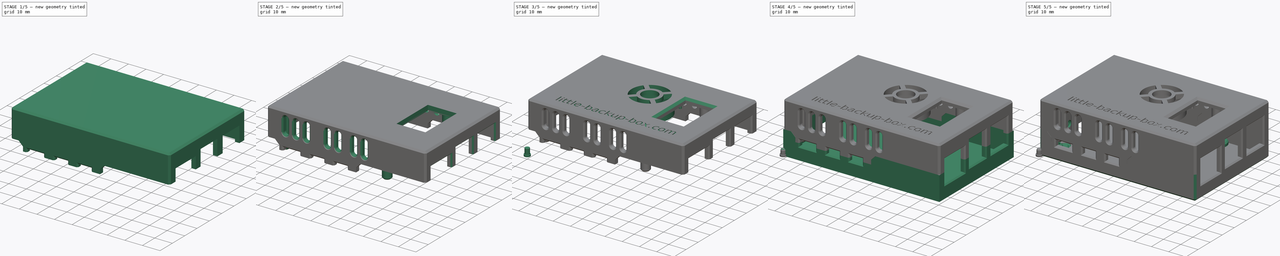
[diagram: build sequence overview — one tinted view per stage of 5, left to right]
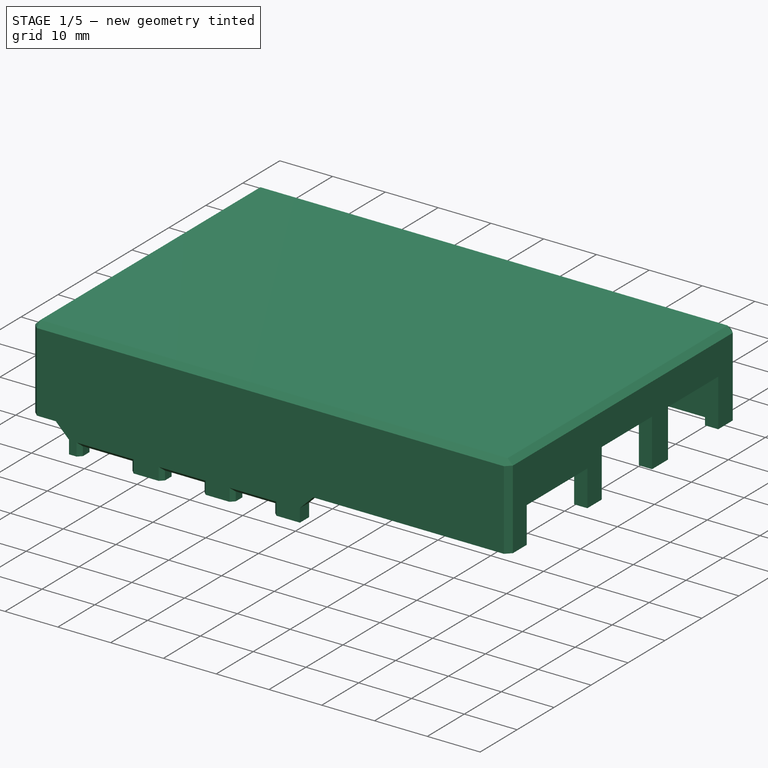
[diagram: stage 1 of 5 — iso view after this stage's code; geometry added in this stage tinted green]
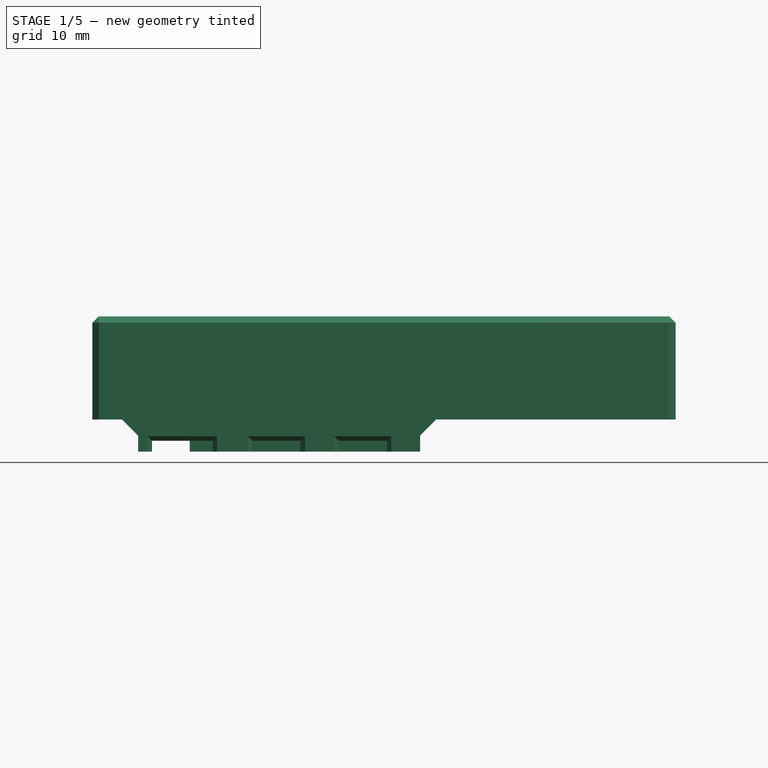
[diagram: stage 1 of 5 — front view after this stage's code; geometry added in this stage tinted green]
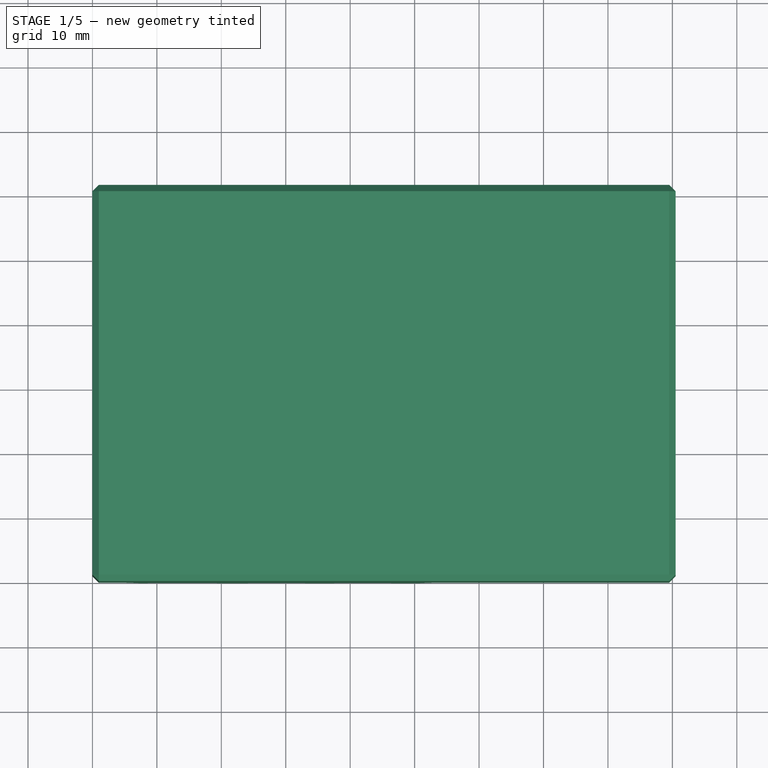
[diagram: stage 1 of 5 — top view after this stage's code; geometry added in this stage tinted green]
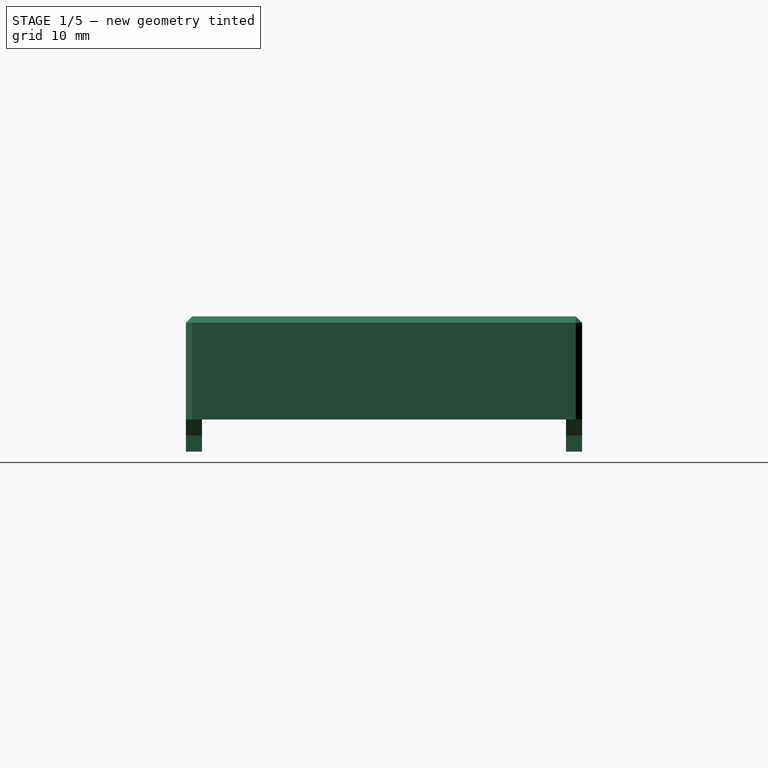
[diagram: stage 1 of 5 — right view after this stage's code; geometry added in this stage tinted green]
FCSTD DOCUMENT  (FreeCAD 0.21R33771 (Git))
Label: lbb-case no-buttons RPi5
License: All rights reserved
LicenseURL: http://en.wikipedia.org/wiki/All_rights_reserved
objects: Sketcher::SketchObject×44, PartDesign::Pocket×23, PartDesign::Pad×18, PartDesign::Chamfer×16, PartDesign::Body×3, PartDesign::Hole×2, App::Part×1, Spreadsheet::Sheet×1, PartDesign::Fillet×1, Part::Part2DObjectPython×1
note: 168 computed .brp shape members not serialized (recipe doc carries the construction recipe); baked Part::Feature solids carry a one-line shape summary decoded from their .brp

FEATURE [Sketcher::SketchObject] Sketch064  label="T_box_full"
  AttachmentOffset = pos=(0,0,14) rot=(0,0,1;0rad)
  FullyConstrained = true
  MapMode = 5
  Placement = pos=(0,0,14) rot=(0,0,1;0rad)
  Support = -> [XY_Plane005]
  expr: .AttachmentOffset.Base.z = <<dim>>.cl_top_base
  expr: Constraints[10] = <<dim>>.box_length
  expr: Constraints[9] = <<dim>>.box_width
  sketch-geometry (4):
    g0: LineSegment StartX=0 StartY=0 StartZ=0 EndX=90.5 EndY=0 EndZ=0
    g1: LineSegment StartX=90.5 StartY=0 StartZ=0 EndX=90.5 EndY=61.5 EndZ=0
    g2: LineSegment StartX=90.5 StartY=61.5 StartZ=0 EndX=0 EndY=61.5 EndZ=0
    g3: LineSegment StartX=0 StartY=61.5 StartZ=0 EndX=0 EndY=0 EndZ=0
  constraints (11):
    c: Coincident(g0,g1)
    c: Coincident(g1,g2)
    c: Coincident(g2,g3)
    c: Coincident(g3,g0)
    c: Horizontal(g0)
    c: Horizontal(g2)
    c: Vertical(g1)
    c: Vertical(g3)
    c: Coincident(g-1,g0)
    c: DistanceY(g3,g3) = 61.5
    c: DistanceX(g2,g2) = 90.5
FEATURE [PartDesign::Pad] Pad026  label="T_box_full_pad"
  Direction = (0,0,1)
  Length = 16
  Length2 = 10
  Profile = -> Sketch064
  ReferenceAxis = -> Sketch064 [N_Axis]
  Type = 0
  expr: Length = <<dim>>.top_height
FEATURE [Sketcher::SketchObject] Sketch065  label="T_box_cave"
  AttachmentOffset = pos=(0,0,14) rot=(0,0,1;0rad)
  FullyConstrained = true
  MapMode = 5
  Placement = pos=(0,0,14) rot=(0,0,1;0rad)
  Support = -> [XY_Plane005]
  expr: .AttachmentOffset.Base.z = <<dim>>.cl_top_base
  expr: Constraints[10] = <<dim>>.box_width - <<dim>>.wall_width
  expr: Constraints[11] = <<dim>>.box_length - <<dim>>.wall_width
  expr: Constraints[8] = <<dim>>.wall_width
  expr: Constraints[9] = <<dim>>.wall_width
  sketch-geometry (4):
    g0: LineSegment StartX=2.5 StartY=2.5 StartZ=0 EndX=88 EndY=2.5 EndZ=0
    g1: LineSegment StartX=88 StartY=2.5 StartZ=0 EndX=88 EndY=59 EndZ=0
    g2: LineSegment StartX=88 StartY=59 StartZ=0 EndX=2.5 EndY=59 EndZ=0
    g3: LineSegment StartX=2.5 StartY=59 StartZ=0 EndX=2.5 EndY=2.5 EndZ=0
  constraints (12):
    c: Coincident(g0,g1)
    c: Coincident(g1,g2)
    c: Coincident(g2,g3)
    c: Coincident(g3,g0)
    c: Horizontal(g0)
    c: Horizontal(g2)
    c: Vertical(g1)
    c: Vertical(g3)
    c: DistanceX(g-1,g0) = 2.5
    c: DistanceY(g-1,g0) = 2.5
    c: DistanceY(g-1,g2) = 59
    c: DistanceX(g-1,g0) = 88
FEATURE [PartDesign::Pocket] Pocket007  label="T_box_cave_pad"
  BaseFeature = -> Pad026
  Direction = (0,0,-1)
  Length = 13.5
  Length2 = 5
  Profile = -> Sketch065
  ReferenceAxis = -> Sketch065 [N_Axis]
  Reversed = true
  Type = 0
  expr: Length = <<dim>>.top_height - <<dim>>.wall_width
FEATURE [Sketcher::SketchObject] Sketch066  label="T_power_interlocking1"
  AttachmentOffset = pos=(0,0,11.5) rot=(0,0,1;0rad)
  FullyConstrained = true
  MapMode = 5
  Placement = pos=(0,0,11.5) rot=(0,0,1;0rad)
  Support = -> [XY_Plane005]
  expr: .AttachmentOffset.Base.z = <<dim>>.cl_top_audio4
  expr: Constraints[10] = <<dim>>.wall_width
  expr: Constraints[11] = <<dim>>.outer_wall_board_dist + <<dim>>.hdmi2_x + <<dim>>.hdmi_width + <<dim>>.wall_width + <<dim>>.box_interlocking_chamfer - <<dim>>.box_spacing
  expr: Constraints[8] = <<dim>>.box_interlocking_audio_left_width + <<dim>>.box_spacing - <<dim>>.box_interlocking_chamfer
  sketch-geometry (4):
    g0: LineSegment StartX=4.61 StartY=2.5 StartZ=0 EndX=53.34 EndY=2.5 EndZ=0
    g1: LineSegment StartX=53.34 StartY=2.5 StartZ=0 EndX=53.34 EndY=0 EndZ=0
    g2: LineSegment StartX=53.34 StartY=0 StartZ=0 EndX=4.61 EndY=0 EndZ=0
    g3: LineSegment StartX=4.61 StartY=0 StartZ=0 EndX=4.61 EndY=2.5 EndZ=0
  constraints (12):
    c: Coincident(g0,g1)
    c: Coincident(g1,g2)
    c: Coincident(g2,g3)
    c: Coincident(g3,g0)
    c: Horizontal(g0)
    c: Horizontal(g2)
    c: Vertical(g1)
    c: Vertical(g3)
    c: DistanceX(g-1,g2) = 4.61
    c: Horizontal(g2,g-1)
    c: DistanceY(g1,g1) = 2.5
    c: DistanceX(g-1,g1) = 53.34
FEATURE [PartDesign::Pad] Pad027  label="T_power_interlocking1_pad"
  BaseFeature = -> Pocket007
  Direction = (0,0,1)
  Length = 2.5
  Length2 = 10
  Profile = -> Sketch066
  ReferenceAxis = -> Sketch066 [N_Axis]
  Type = 0
  expr: Length = <<dim>>.box_interlocking_height / 2
FEATURE [PartDesign::Chamfer] Chamfer009  label="T_power_interlocking1_chamfer"
  Angle = 45
  Base = -> Pad027 [Edge26,Edge37]
  BaseFeature = -> Pad027
  ChamferType = 0
  FlipDirection = false
  Size = 2.49
  Size2 = 1
  SupportTransform = false
  UseAllEdges = false
  expr: Size = Spreadsheet.box_interlocking_chamfer
FEATURE [Sketcher::SketchObject] Sketch069  label="T_power_level"
  AttachmentOffset = pos=(0,0,11.5) rot=(0,0,1;0rad)
  FullyConstrained = true
  MapMode = 5
  Placement = pos=(0,0,11.5) rot=(0,0,1;0rad)
  Support = -> [XY_Plane005]
  expr: .AttachmentOffset.Base.z = <<dim>>.cl_top_audio4
  expr: Constraints[10] = <<dim>>.box_interlocking_audio_left_width + <<dim>>.box_spacing
  expr: Constraints[11] = <<dim>>.outer_wall_board_dist + <<dim>>.hdmi2_x + <<dim>>.hdmi_width + <<dim>>.wall_width - <<dim>>.box_spacing
  expr: Constraints[8] = <<dim>>.wall_width
  sketch-geometry (4):
    g0: LineSegment StartX=7.1 StartY=0 StartZ=0 EndX=50.85 EndY=0 EndZ=0
    g1: LineSegment StartX=50.85 StartY=0 StartZ=0 EndX=50.85 EndY=2.5 EndZ=0
    g2: LineSegment StartX=50.85 StartY=2.5 StartZ=0 EndX=7.1 EndY=2.5 EndZ=0
    g3: LineSegment StartX=7.1 StartY=2.5 StartZ=0 EndX=7.1 EndY=0 EndZ=0
  constraints (12):
    c: Coincident(g0,g1)
    c: Coincident(g1,g2)
    c: Coincident(g2,g3)
    c: Coincident(g3,g0)
    c: Horizontal(g0)
    c: Horizontal(g2)
    c: Vertical(g1)
    c: Vertical(g3)
    c: DistanceY(g3,g3) = 2.5
    c: Horizontal(g-1,g0)
    c: DistanceX(g-1,g0) = 7.1
    c: DistanceX(g-1,g0) = 50.85
FEATURE [PartDesign::Pad] Pad030  label="T_power_level_pad"
  BaseFeature = -> Chamfer009
  Direction = (0,0,1)
  Length = 2.5
  Length2 = 10
  Profile = -> Sketch069
  ReferenceAxis = -> Sketch069 [N_Axis]
  Reversed = true
  Type = 0
  expr: Length = <<dim>>.box_interlocking_height / 2
FEATURE [Sketcher::SketchObject] Sketch070  label="T_empty_interlocking"
  AttachmentOffset = pos=(0,0,11.5) rot=(0,0,1;0rad)
  FullyConstrained = true
  MapMode = 5
  Placement = pos=(0,0,11.5) rot=(0,0,1;0rad)
  Support = -> [XY_Plane005]
  expr: .AttachmentOffset.Base.z = <<dim>>.cl_top_base - <<dim>>.box_interlocking_height / 2
  expr: Constraints[10] = <<dim>>.box_interlocking_empty_left_width + <<dim>>.box_spacing - <<dim>>.box_interlocking_height / 2
  expr: Constraints[11] = <<dim>>.box_length - <<dim>>.box_interlocking_empty_right_width - <<dim>>.box_spacing + <<dim>>.box_interlocking_height / 2
  expr: Constraints[8] = <<dim>>.wall_width
  expr: Constraints[9] = <<dim>>.box_width
  sketch-geometry (4):
    g0: LineSegment StartX=52.9 StartY=61.5 StartZ=0 EndX=12.6 EndY=61.5 EndZ=0
    g1: LineSegment StartX=12.6 StartY=61.5 StartZ=0 EndX=12.6 EndY=59 EndZ=0
    g2: LineSegment StartX=12.6 StartY=59 StartZ=0 EndX=52.9 EndY=59 EndZ=0
    g3: LineSegment StartX=52.9 StartY=59 StartZ=0 EndX=52.9 EndY=61.5 EndZ=0
  constraints (12):
    c: Coincident(g0,g1)
    c: Coincident(g1,g2)
    c: Coincident(g2,g3)
    c: Coincident(g3,g0)
    c: Horizontal(g0)
    c: Horizontal(g2)
    c: Vertical(g1)
    c: Vertical(g3)
    c: DistanceY(g1,g1) = 2.5
    c: DistanceY(g-1,g0) = 61.5
    c: DistanceX(g-1,g0) = 12.6
    c: DistanceX(g-1,g0) = 52.9
FEATURE [PartDesign::Pad] Pad031  label="T_empty_interlocking_pad"
  BaseFeature = -> Pad030
  Direction = (0,0,1)
  Length = 2.5
  Length2 = 10
  Profile = -> Sketch070
  ReferenceAxis = -> Sketch070 [N_Axis]
  Type = 0
  expr: Length = <<dim>>.box_interlocking_height / 2
FEATURE [PartDesign::Chamfer] Chamfer011  label="T_empty_interlocking_chamfer"
  Angle = 45
  Base = -> Pad031 [Edge63,Edge60]
  BaseFeature = -> Pad031
  ChamferType = 0
  FlipDirection = false
  Size = 2.49
  Size2 = 1
  SupportTransform = false
  UseAllEdges = false
  expr: Size = Spreadsheet.box_interlocking_chamfer
FEATURE [Sketcher::SketchObject] Sketch071  label="T_empty_level"
  AttachmentOffset = pos=(0,0,9) rot=(0,0,1;0rad)
  FullyConstrained = true
  MapMode = 5
  Placement = pos=(0,0,9) rot=(0,0,1;0rad)
  Support = -> [XY_Plane005]
  expr: .AttachmentOffset.Base.z = <<dim>>.cl_top_base - <<dim>>.box_interlocking_height
  expr: Constraints[10] = <<dim>>.box_interlocking_empty_left_width + <<dim>>.box_spacing
  expr: Constraints[11] = <<dim>>.box_length - <<dim>>.box_interlocking_empty_right_width - <<dim>>.box_spacing
  expr: Constraints[8] = <<dim>>.wall_width
  expr: Constraints[9] = <<dim>>.box_width
  sketch-geometry (4):
    g0: LineSegment StartX=15.1 StartY=61.5 StartZ=0 EndX=50.4 EndY=61.5 EndZ=0
    g1: LineSegment StartX=50.4 StartY=61.5 StartZ=0 EndX=50.4 EndY=59 EndZ=0
    g2: LineSegment StartX=50.4 StartY=59 StartZ=0 EndX=15.1 EndY=59 EndZ=0
    g3: LineSegment StartX=15.1 StartY=59 StartZ=0 EndX=15.1 EndY=61.5 EndZ=0
  constraints (12):
    c: Coincident(g0,g1)
    c: Coincident(g1,g2)
    c: Coincident(g2,g3)
    c: Coincident(g3,g0)
    c: Horizontal(g0)
    c: Horizontal(g2)
    c: Vertical(g1)
    c: Vertical(g3)
    c: DistanceY(g1,g1) = 2.5
    c: DistanceY(g-1,g0) = 61.5
    c: DistanceX(g-1,g0) = 15.1
    c: DistanceX(g-1,g0) = 50.4
FEATURE [PartDesign::Pad] Pad032  label="T_empty_level_pad"
  BaseFeature = -> Chamfer011
  Direction = (0,0,1)
  Length = 2.5
  Length2 = 10
  Profile = -> Sketch071
  ReferenceAxis = -> Sketch071 [N_Axis]
  Type = 0
  expr: Length = <<dim>>.box_interlocking_height / 2
FEATURE [PartDesign::Chamfer] Chamfer012  label="T_body_chamfer"
  Angle = 45
  Base = -> Pad032 [Edge43,Edge48,Edge67,Edge42,Edge44,Edge39,Edge45,Edge40]
  BaseFeature = -> Pad032
  ChamferType = 0
  FlipDirection = false
  Size = 1
  Size2 = 1
  SupportTransform = false
  UseAllEdges = false
  expr: Size = Spreadsheet.box_body_chamfer
FEATURE [Sketcher::SketchObject] Sketch072  label="T_power"
  FullyConstrained = true
  MapMode = 5
  Placement = pos=(0,0,0) rot=(1,0,0;1.5708rad)
  Support = -> [XZ_Plane005]
  expr: Constraints[24] = Sketch046.Constraints[24]
  expr: Constraints[25] = Sketch046.Constraints[25]
  expr: Constraints[26] = Sketch046.Constraints[26]
  expr: Constraints[27] = Sketch046.Constraints[27]
  expr: Constraints[28] = Sketch046.Constraints[28]
  expr: Constraints[29] = Sketch046.Constraints[29]
  expr: Constraints[30] = Sketch046.Constraints[30]
  expr: Constraints[31] = Sketch046.Constraints[31]
  expr: Constraints[32] = Sketch046.Constraints[32]
  expr: Constraints[33] = Sketch046.Constraints[33]
  expr: Constraints[34] = Sketch046.Constraints[34]
  expr: Constraints[35] = Sketch046.Constraints[35]
  sketch-geometry (12):
    g0: LineSegment StartX=9.25 StartY=10.7 StartZ=0 EndX=18.65 EndY=10.7 EndZ=0
    g1: LineSegment StartX=18.65 StartY=10.7 StartZ=0 EndX=18.65 EndY=7.3 EndZ=0
    g2: LineSegment StartX=18.65 StartY=7.3 StartZ=0 EndX=9.25 EndY=7.3 EndZ=0
    g3: LineSegment StartX=9.25 StartY=7.3 StartZ=0 EndX=9.25 EndY=10.7 EndZ=0
    g4: LineSegment StartX=24.8 StartY=10.7 StartZ=0 EndX=32.3 EndY=10.7 EndZ=0
    g5: LineSegment StartX=32.3 StartY=10.7 StartZ=0 EndX=32.3 EndY=7.3 EndZ=0
    g6: LineSegment StartX=32.3 StartY=7.3 StartZ=0 EndX=24.8 EndY=7.3 EndZ=0
    g7: LineSegment StartX=24.8 StartY=7.3 StartZ=0 EndX=24.8 EndY=10.7 EndZ=0
    g8: LineSegment StartX=38.2 StartY=10.7 StartZ=0 EndX=45.7 EndY=10.7 EndZ=0
    g9: LineSegment StartX=45.7 StartY=10.7 StartZ=0 EndX=45.7 EndY=7.3 EndZ=0
    g10: LineSegment StartX=45.7 StartY=7.3 StartZ=0 EndX=38.2 EndY=7.3 EndZ=0
    g11: LineSegment StartX=38.2 StartY=7.3 StartZ=0 EndX=38.2 EndY=10.7 EndZ=0
  constraints (36):
    c: Coincident(g0,g1)
    c: Coincident(g1,g2)
    c: Coincident(g2,g3)
    c: Coincident(g3,g0)
    c: Horizontal(g0)
    c: Horizontal(g2)
    c: Vertical(g1)
    c: Vertical(g3)
    c: Coincident(g4,g5)
    c: Coincident(g5,g6)
    c: Coincident(g6,g7)
    c: Coincident(g7,g4)
    c: Horizontal(g4)
    c: Horizontal(g6)
    c: Vertical(g5)
    c: Vertical(g7)
    c: Coincident(g8,g9)
    c: Coincident(g9,g10)
    c: Coincident(g10,g11)
    c: Coincident(g11,g8)
    c: Horizontal(g8)
    c: Horizontal(g10)
    c: Vertical(g9)
    c: Vertical(g11)
    c: DistanceY(g3,g3) = 3.4
    c: DistanceY(g7,g7) = 3.4
    c: DistanceY(g11,g11) = 3.4
    c: DistanceX(g2,g2) = 9.4
    c: DistanceX(g4,g4) = 7.5
    c: DistanceX(g8,g8) = 7.5
    c: DistanceX(g-1,g2) = 9.25
    c: DistanceX(g-1,g6) = 24.8
    c: DistanceX(g-1,g10) = 38.2
    c: DistanceY(g-1,g2) = 7.3
    c: DistanceY(g-1,g6) = 7.3
    c: DistanceY(g-1,g10) = 7.3
FEATURE [PartDesign::Pocket] Pocket008  label="T_power_pocket"
  BaseFeature = -> Chamfer012
  Direction = (0,1,2e-16)
  Length = 2.5
  Length2 = 5
  Profile = -> Sketch072
  ReferenceAxis = -> Sketch072 [N_Axis]
  Type = 0
  expr: Length = <<dim>>.wall_width
FEATURE [PartDesign::Chamfer] Chamfer013  label="T_power_pocket_chamfer"
  Angle = 45
  Base = -> Pocket008 [Edge112,Edge111,Edge110,Edge108,Edge107,Edge106,Edge104,Edge103,Edge102]
  BaseFeature = -> Pocket008
  ChamferType = 0
  FlipDirection = false
  Size = 0.7
  Size2 = 1
  SupportTransform = false
  UseAllEdges = false
  expr: Size = Spreadsheet.box_plugs_champfer
FEATURE [Sketcher::SketchObject] Sketch073  label="T_rj45"
  AttachmentOffset = pos=(0,0,90.5) rot=(0,0,1;0rad)
  FullyConstrained = true
  MapMode = 5
  Placement = pos=(90.5,-2.01e-14,2.01e-14) rot=(0.57735,0.57735,0.57735;2.0944rad)
  Support = -> [YZ_Plane005]
  expr: .AttachmentOffset.Base.z = <<dim>>.cl_box_length
  expr: Constraints[24] = Sketch047.Constraints[24]
  expr: Constraints[25] = Sketch047.Constraints[25]
  expr: Constraints[26] = Sketch047.Constraints[26]
  expr: Constraints[27] = Sketch047.Constraints[27]
  expr: Constraints[28] = Sketch047.Constraints[28]
  expr: Constraints[29] = Sketch047.Constraints[29]
  expr: Constraints[30] = Sketch047.Constraints[30]
  expr: Constraints[31] = Sketch047.Constraints[31]
  expr: Constraints[32] = Sketch047.Constraints[32]
  expr: Constraints[33] = Sketch047.Constraints[33]
  expr: Constraints[34] = Sketch047.Constraints[34]
  expr: Constraints[35] = Sketch047.Constraints[35]
  sketch-geometry (12):
    g0: LineSegment StartX=42.95 StartY=23 StartZ=0 EndX=56.55 EndY=23 EndZ=0
    g1: LineSegment StartX=56.55 StartY=23 StartZ=0 EndX=56.55 EndY=8.5 EndZ=0
    g2: LineSegment StartX=56.55 StartY=8.5 StartZ=0 EndX=42.95 EndY=8.5 EndZ=0
    g3: LineSegment StartX=42.95 StartY=8.5 StartZ=0 EndX=42.95 EndY=23 EndZ=0
    g4: LineSegment StartX=25.05 StartY=23 StartZ=0 EndX=38.65 EndY=23 EndZ=0
    g5: LineSegment StartX=38.65 StartY=23 StartZ=0 EndX=38.65 EndY=8.5 EndZ=0
    g6: LineSegment StartX=38.65 StartY=8.5 StartZ=0 EndX=25.05 EndY=8.5 EndZ=0
    g7: LineSegment StartX=25.05 StartY=8.5 StartZ=0 EndX=25.05 EndY=23 EndZ=0
    g8: LineSegment StartX=4.75 StartY=20.8 StartZ=0 EndX=21.15 EndY=20.8 EndZ=0
    g9: LineSegment StartX=21.15 StartY=20.8 StartZ=0 EndX=21.15 EndY=7.3 EndZ=0
    g10: LineSegment StartX=21.15 StartY=7.3 StartZ=0 EndX=4.75 EndY=7.3 EndZ=0
    g11: LineSegment StartX=4.75 StartY=7.3 StartZ=0 EndX=4.75 EndY=20.8 EndZ=0
  constraints (36):
    c: Coincident(g0,g1)
    c: Coincident(g1,g2)
    c: Coincident(g2,g3)
    c: Coincident(g3,g0)
    c: Horizontal(g0)
    c: Horizontal(g2)
    c: Vertical(g1)
    c: Vertical(g3)
    c: Coincident(g4,g5)
    c: Coincident(g5,g6)
    c: Coincident(g6,g7)
    c: Coincident(g7,g4)
    c: Horizontal(g4)
    c: Horizontal(g6)
    c: Vertical(g5)
    c: Vertical(g7)
    c: Coincident(g8,g9)
    c: Coincident(g9,g10)
    c: Coincident(g10,g11)
    c: Coincident(g11,g8)
    c: Horizontal(g8)
    c: Horizontal(g10)
    c: Vertical(g9)
    c: Vertical(g11)
    c: DistanceY(g-1,g2) = 8.5
    c: DistanceY(g-1,g6) = 8.5
    c: DistanceY(g-1,g10) = 7.3
    c: DistanceX(g-1,g2) = 42.95
    c: DistanceX(g-1,g6) = 25.05
    c: DistanceX(g-1,g10) = 4.75
    c: DistanceX(g0,g0) = 13.6
    c: DistanceX(g4,g4) = 13.6
    c: DistanceX(g8,g8) = 16.4
    c: DistanceY(g3,g3) = 14.5
    c: DistanceY(g7,g7) = 14.5
    c: DistanceY(g11,g11) = 13.5
FEATURE [PartDesign::Pocket] Pocket009  label="T_rj45_pocket"
  BaseFeature = -> Chamfer013
  Direction = (-1,2e-16,-3e-16)
  Length = 2.5
  Length2 = 5
  Profile = -> Sketch073
  ReferenceAxis = -> Sketch073 [N_Axis]
  Type = 0
  expr: Length = <<dim>>.wall_width
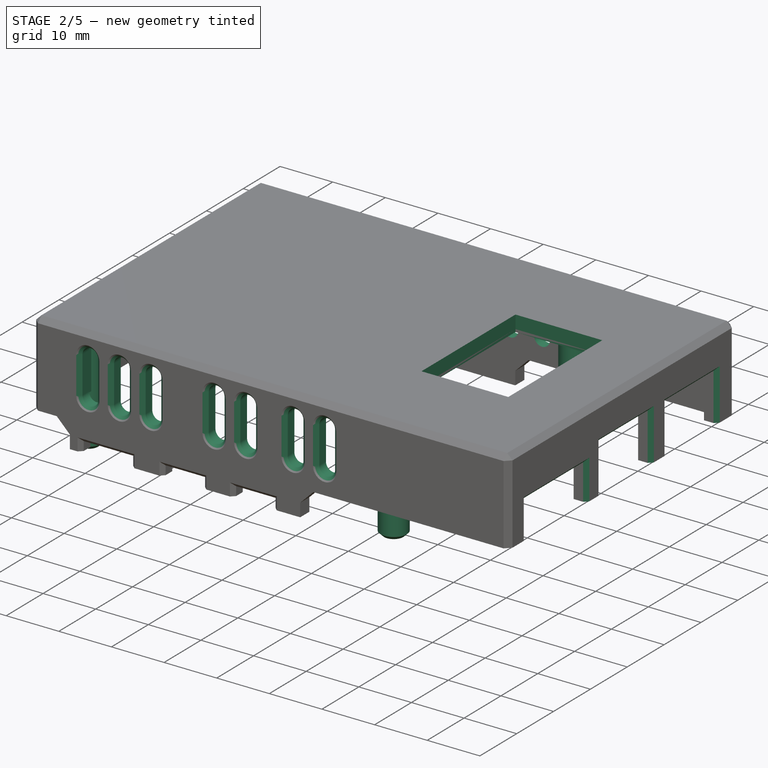
[diagram: stage 2 of 5 — iso view after this stage's code; geometry added in this stage tinted green]
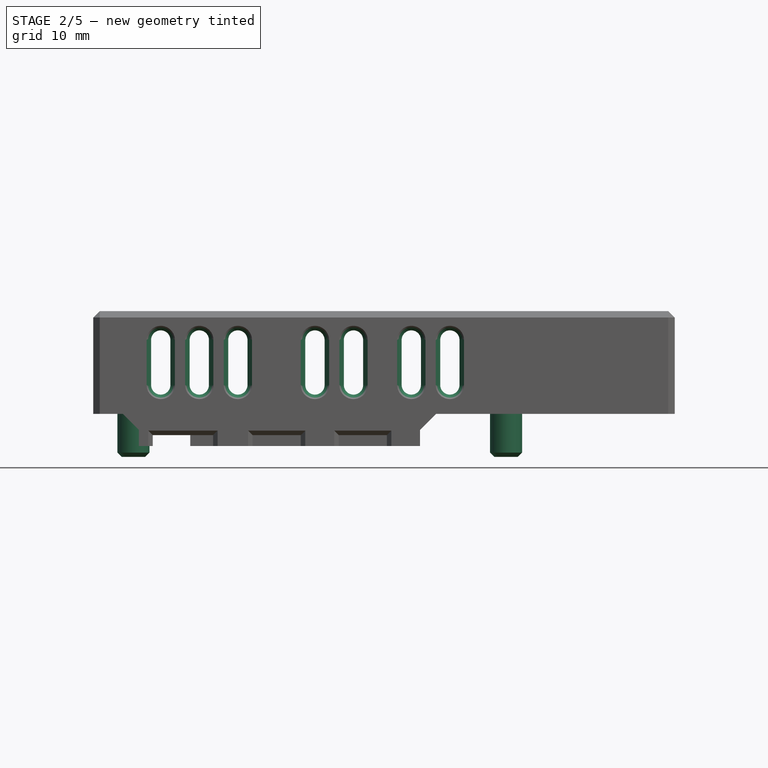
[diagram: stage 2 of 5 — front view after this stage's code; geometry added in this stage tinted green]
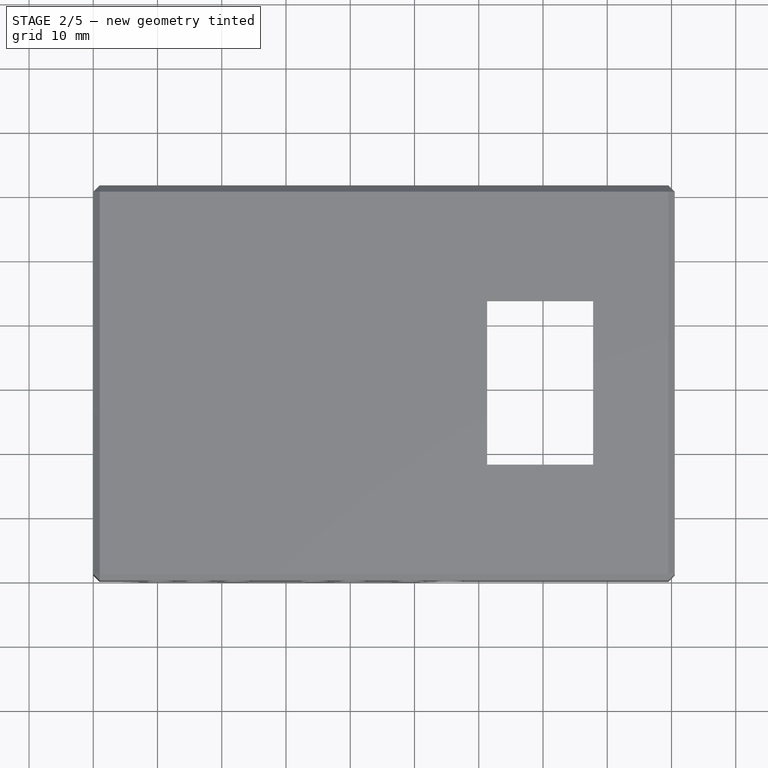
[diagram: stage 2 of 5 — top view after this stage's code; geometry added in this stage tinted green]
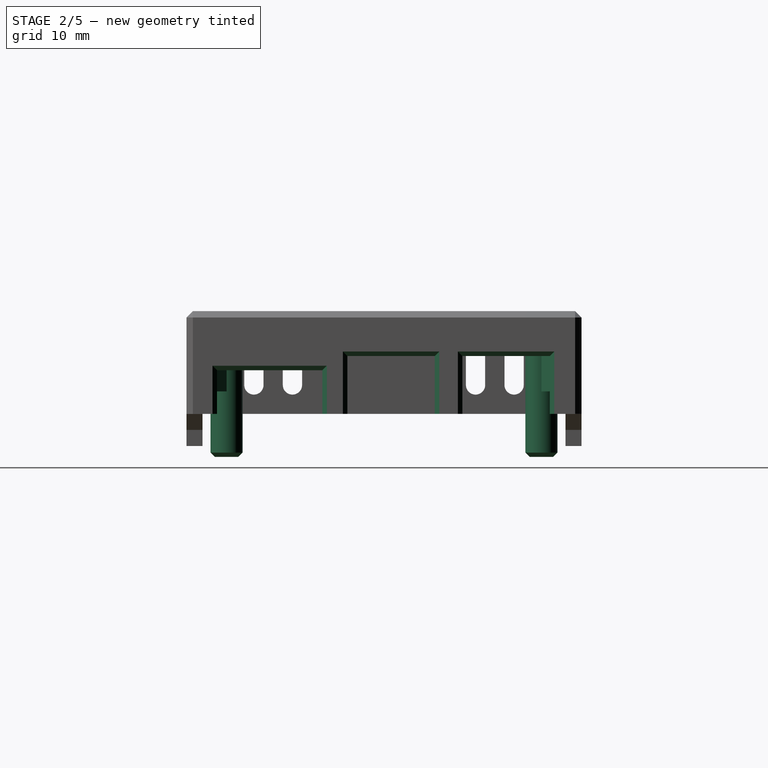
[diagram: stage 2 of 5 — right view after this stage's code; geometry added in this stage tinted green]
FEATURE [PartDesign::Chamfer] Chamfer014  label="T_rj45_chamfer"
  Angle = 45
  Base = -> Pocket009 [Edge112,Edge113,Edge114,Edge116,Edge117,Edge118,Edge120,Edge121,Edge122]
  BaseFeature = -> Pocket009
  ChamferType = 0
  FlipDirection = false
  Size = 0.7
  Size2 = 1
  SupportTransform = false
  UseAllEdges = false
  expr: Size = Spreadsheet.box_plugs_champfer
FEATURE [Sketcher::SketchObject] Sketch078  label="T_socket"
  AttachmentOffset = pos=(0,0,27.5) rot=(0,0,1;0rad)
  FullyConstrained = true
  MapMode = 5
  Placement = pos=(0,0,27.5) rot=(0,0,1;0rad)
  Support = -> [XY_Plane005]
  expr: .AttachmentOffset.Base.z = <<dim>>.cl_top_inner
  expr: Constraints[10] = Sketch050.Constraints[10]
  expr: Constraints[11] = <<dim>>.socket3_diam
  expr: Constraints[7] = Sketch050.Constraints[7]
  expr: Constraints[8] = Sketch050.Constraints[8]
  expr: Constraints[9] = Sketch050.Constraints[9]
  sketch-geometry (4):
    g0: Circle CenterX=6.25 CenterY=55.25 CenterZ=0 NormalX=0 NormalY=0 NormalZ=1 AngleXU=0 Radius=2.5
    g1: Circle CenterX=6.25 CenterY=6.25 CenterZ=0 NormalX=0 NormalY=0 NormalZ=1 AngleXU=0 Radius=2.5
    g2: Circle CenterX=64.25 CenterY=55.25 CenterZ=0 NormalX=0 NormalY=0 NormalZ=1 AngleXU=0 Radius=2.5
    g3: Circle CenterX=64.25 CenterY=6.25 CenterZ=0 NormalX=0 NormalY=0 NormalZ=1 AngleXU=0 Radius=2.5
  constraints (12):
    c: Equal(g0,g2)
    c: Equal(g0,g3)
    c: Equal(g0,g1)
    c: Horizontal(g0,g2)
    c: Vertical(g0,g1)
    c: Vertical(g2,g3)
    c: Horizontal(g1,g3)
    c: DistanceX(g-1,g1) = 6.25
    c: DistanceY(g-1,g1) = 6.25
    c: DistanceX(g1,g3) = 58
    c: DistanceY(g1,g0) = 49
    c: Diameter(g0) = 5
FEATURE [PartDesign::Pad] Pad035  label="T_socket_pad"
  BaseFeature = -> Chamfer014
  Direction = (0,0,1)
  Length = 20.2
  Length2 = 10
  Profile = -> Sketch078
  ReferenceAxis = -> Sketch078 [N_Axis]
  Reversed = true
  Type = 0
  expr: Length = <<dim>>.socket3_height
FEATURE [Sketcher::SketchObject] Sketch079  label="T_socket_stabilizer"
  AttachmentOffset = pos=(0,0,27.5) rot=(0,0,1;0rad)
  FullyConstrained = true
  MapMode = 5
  Placement = pos=(0,0,27.5) rot=(0,0,1;0rad)
  Support = -> [XY_Plane005]
  expr: .AttachmentOffset.Base.z = <<dim>>.cl_top_inner
  expr: Constraints[0] = Sketch078.Constraints[7]
  expr: Constraints[17] = <<dim>>.wall_width
  expr: Constraints[18] = <<dim>>.wall_width
  expr: Constraints[1] = Sketch078.Constraints[8]
  expr: Constraints[2] = Sketch078.Constraints[9]
  expr: Constraints[3] = Sketch078.Constraints[10]
  expr: Constraints[4] = Sketch078.Constraints[11]
  expr: Constraints[5] = <<dim>>.socket3_diam
  expr: Constraints[6] = <<dim>>.socket3_diam * 2
  expr: Constraints[7] = <<dim>>.socket3_diam / 2
  sketch-geometry (22):
    g0: Circle CenterX=6.25 CenterY=55.25 CenterZ=0 NormalX=0 NormalY=0 NormalZ=1 AngleXU=0 Radius=2.5
    g1: Circle CenterX=6.25 CenterY=6.25 CenterZ=0 NormalX=0 NormalY=0 NormalZ=1 AngleXU=0 Radius=2.5
    g2: Circle CenterX=64.25 CenterY=55.25 CenterZ=0 NormalX=0 NormalY=0 NormalZ=1 AngleXU=0 Radius=2.5
    g3: Circle CenterX=64.25 CenterY=6.25 CenterZ=0 NormalX=0 NormalY=0 NormalZ=1 AngleXU=0 Radius=2.5
    g4: LineSegment StartX=59.25 StartY=2.5 StartZ=0 EndX=61.75 EndY=6.25 EndZ=0
    g5: LineSegment StartX=61.75 StartY=6.25 StartZ=0 EndX=66.75 EndY=6.25 EndZ=0
    g6: LineSegment StartX=66.75 StartY=6.25 StartZ=0 EndX=69.25 EndY=2.5 EndZ=0
    g7: LineSegment StartX=69.25 StartY=2.5 StartZ=0 EndX=59.25 EndY=2.5 EndZ=0
    g8: LineSegment StartX=59.25 StartY=59 StartZ=0 EndX=69.25 EndY=59 EndZ=0
    g9: LineSegment StartX=69.25 StartY=59 StartZ=0 EndX=66.75 EndY=55.25 EndZ=0
    g10: LineSegment StartX=66.75 StartY=55.25 StartZ=0 EndX=61.75 EndY=55.25 EndZ=0
    g11: LineSegment StartX=61.75 StartY=55.25 StartZ=0 EndX=59.25 EndY=59 EndZ=0
    g12: LineSegment StartX=2.5 StartY=2.5 StartZ=0 EndX=8.01777 EndY=2.5 EndZ=0
    g13: LineSegment StartX=8.01777 StartY=2.5 StartZ=0 EndX=8.01777 EndY=4.48223 EndZ=0
    g14: LineSegment StartX=8.01777 StartY=4.48223 StartZ=0 EndX=4.48223 EndY=8.01777 EndZ=0
    g15: LineSegment StartX=4.48223 StartY=8.01777 StartZ=0 EndX=2.5 EndY=8.01777 EndZ=0
    g16: LineSegment StartX=2.5 StartY=8.01777 StartZ=0 EndX=2.5 EndY=2.5 EndZ=0
    g17: LineSegment StartX=2.5 StartY=59 StartZ=0 EndX=8.01777 EndY=59 EndZ=0
    g18: LineSegment StartX=8.01777 StartY=59 StartZ=0 EndX=8.01777 EndY=57.0178 EndZ=0
    g19: LineSegment StartX=8.01777 StartY=57.0178 StartZ=0 EndX=4.48223 EndY=53.4822 EndZ=0
    g20: LineSegment StartX=4.48223 StartY=53.4822 StartZ=0 EndX=2.5 EndY=53.4822 EndZ=0
    g21: LineSegment StartX=2.5 StartY=53.4822 StartZ=0 EndX=2.5 EndY=59 EndZ=0
  constraints (65):
    c: DistanceX(g-1,g1) = 6.25
    c: DistanceY(g-1,g1) = 6.25
    c: DistanceX(g1,g3) = 58
    c: DistanceY(g1,g0) = 49
    c: Diameter(g0) = 5
    c: DistanceX(g5,g5) = 5
    c: DistanceX(g7,g7) = 10
    c: DistanceX(g5,g6) = 2.5
    c: Coincident(g18,g17)
    c: Coincident(g21,g17)
    c: Coincident(g21,g20)
    c: Coincident(g19,g20)
    c: Coincident(g19,g18)
    c: Horizontal(g17)
    c: Horizontal(g20)
    c: Vertical(g21)
    c: Vertical(g18)
    c: DistanceX(g-1,g12) = 2.5
    c: DistanceY(g-1,g12) = 2.5
    c: Equal(g17,g12)
    c: Equal(g21,g16)
    c: Equal(g20,g15)
    c: Equal(g19,g14)
    c: Equal(g20,g18)
    c: Angle(g19,g21) = 0.785398
    c: Vertical(g20,g15)
    c: Vertical(g0,g1)
    c: Symmetric(g18,g19,g0)
    c: Vertical(g12,g20)
    c: PointOnObject(g18,g0)
    c: Vertical(g19,g14)
    c: Vertical(g18,g13)
    c: Horizontal(g15)
    c: Horizontal(g12)
    c: Horizontal(g7)
    c: Horizontal(g8)
    c: Horizontal(g10)
    c: Coincident(g16,g15)
    c: Equal(g13,g18)
    c: Coincident(g12,g13)
    c: Coincident(g12,g16)
    c: Symmetric(g14,g14,g1)
    c: Vertical(g8,g4)
    c: Vertical(g10,g4)
    c: Vertical(g9,g5)
    c: Vertical(g6,g8)
    c: Symmetric(g10,g9,g2)
    c: Horizontal(g2,g0)
    c: Equal(g0,g2)
    c: Equal(g2,g3)
    c: Equal(g0,g1)
    c: Horizontal(g1,g3)
    c: PointOnObject(g10,g2)
    c: Coincident(g5,g6)
    c: Coincident(g7,g4)
    c: Horizontal(g4,g5)
    c: Symmetric(g4,g5,g3)
    c: Coincident(g6,g7)
    c: Horizontal(g4,g12)
    c: Parallel(g5,g7)
    c: Coincident(g11,g8)
    c: Coincident(g9,g8)
    c: Horizontal(g17,g8)
    c: Coincident(g9,g10)
    c: Coincident(g10,g11)
FEATURE [PartDesign::Pad] Pad036  label="T_socket_stabilizer_pad"
  BaseFeature = -> Pad035
  Direction = (0,0,1)
  Length = 10
  Length2 = 10
  Profile = -> Sketch079
  ReferenceAxis = -> Sketch079 [N_Axis]
  Reversed = true
  Type = 0
FEATURE [Sketcher::SketchObject] Sketch080  label="T_socket_drill"
  AttachmentOffset = pos=(0,0,7.3) rot=(0,0,1;0rad)
  FullyConstrained = true
  MapMode = 5
  Placement = pos=(0,0,7.3) rot=(0,0,1;0rad)
  Support = -> [XY_Plane005]
  expr: .AttachmentOffset.Base.z = <<dim>>.cl_top_inner - <<dim>>.socket3_height
  expr: Constraints[10] = Sketch078.Constraints[10]
  expr: Constraints[11] = <<dim>>.socket3_drill_diam
  expr: Constraints[7] = Sketch078.Constraints[7]
  expr: Constraints[8] = Sketch078.Constraints[8]
  expr: Constraints[9] = Sketch078.Constraints[9]
  sketch-geometry (4):
    g0: Circle CenterX=6.25 CenterY=55.25 CenterZ=0 NormalX=0 NormalY=0 NormalZ=1 AngleXU=0 Radius=1.15
    g1: Circle CenterX=6.25 CenterY=6.25 CenterZ=0 NormalX=0 NormalY=0 NormalZ=1 AngleXU=0 Radius=1.15
    g2: Circle CenterX=64.25 CenterY=55.25 CenterZ=0 NormalX=0 NormalY=0 NormalZ=1 AngleXU=0 Radius=1.15
    g3: Circle CenterX=64.25 CenterY=6.25 CenterZ=0 NormalX=0 NormalY=0 NormalZ=1 AngleXU=0 Radius=1.15
  constraints (12):
    c: Equal(g0,g2)
    c: Equal(g0,g3)
    c: Equal(g0,g1)
    c: Horizontal(g0,g2)
    c: Vertical(g0,g1)
    c: Vertical(g2,g3)
    c: Horizontal(g1,g3)
    c: DistanceX(g-1,g1) = 6.25
    c: DistanceY(g-1,g1) = 6.25
    c: DistanceX(g1,g3) = 58
    c: DistanceY(g1,g0) = 49
    c: Diameter(g0) = 2.3
FEATURE [PartDesign::Pocket] Pocket012  label="T_socket_drill_pocket"
  BaseFeature = -> Pad036
  Direction = (0,0,-1)
  Length = 20.2
  Length2 = 5
  Profile = -> Sketch080
  ReferenceAxis = -> Sketch080 [N_Axis]
  Reversed = true
  Type = 0
  expr: Length = <<dim>>.socket3_height
FEATURE [PartDesign::Chamfer] Chamfer015  label="T_socket_chamfer"
  Angle = 45
  Base = -> Pocket012 [Edge206,Edge209,Edge211,Edge213]
  BaseFeature = -> Pocket012
  ChamferType = 0
  FlipDirection = false
  Size = 0.675
  Size2 = 1
  SupportTransform = false
  UseAllEdges = false
  expr: Size = <<dim>>.socket_chamfer
FEATURE [Sketcher::SketchObject] Sketch081  label="T_cooling_audio"
  FullyConstrained = true
  MapMode = 5
  Placement = pos=(0,0,0) rot=(1,0,0;1.5708rad)
  Support = -> [XZ_Plane005]
  expr: Constraints[17] = <<dim>>.cooling_dist
  expr: Constraints[47] = <<dim>>.cooling_dist
  expr: Constraints[48] = 3 * <<dim>>.cooling_dist
  expr: Constraints[49] = <<dim>>.cooling_dist
  expr: Constraints[68] = 2 * <<dim>>.cooling_dist
  expr: Constraints[69] = <<dim>>.cooling_dist
  expr: Constraints[6] = <<dim>>.cooling_width
  expr: Constraints[7] = <<dim>>.cooling_dist * 3
  expr: Constraints[8] = <<dim>>.bottom_height + <<dim>>.box_interlocking_height + 1.5 * <<dim>>.cooling_dist
  expr: Constraints[9] = <<dim>>.bottom_height + <<dim>>.box_interlocking_height + <<dim>>.top_height - 1.5 * <<dim>>.cooling_dist
  sketch-geometry (28):
    g0: ArcOfCircle CenterX=10.5 CenterY=25.5 CenterZ=0 NormalX=0 NormalY=0 NormalZ=1 AngleXU=0 Radius=1.5 StartAngle=-9e-16 EndAngle=3.14159
    g1: ArcOfCircle CenterX=10.5 CenterY=18.5 CenterZ=0 NormalX=0 NormalY=0 NormalZ=1 AngleXU=0 Radius=1.5 StartAngle=3.14159 EndAngle=6.28319
    g2: LineSegment StartX=9 StartY=25.5 StartZ=0 EndX=9 EndY=18.5 EndZ=0
    g3: LineSegment StartX=12 StartY=18.5 StartZ=0 EndX=12 EndY=25.5 EndZ=0
    g4: ArcOfCircle CenterX=16.5 CenterY=25.5 CenterZ=0 NormalX=0 NormalY=0 NormalZ=1 AngleXU=0 Radius=1.5 StartAngle=5e-16 EndAngle=3.14159
    g5: ArcOfCircle CenterX=16.5 CenterY=18.5 CenterZ=0 NormalX=0 NormalY=0 NormalZ=1 AngleXU=0 Radius=1.5 StartAngle=3.14159 EndAngle=6.28319
    g6: LineSegment StartX=15 StartY=25.5 StartZ=0 EndX=15 EndY=18.5 EndZ=0
    g7: LineSegment StartX=18 StartY=18.5 StartZ=0 EndX=18 EndY=25.5 EndZ=0
    g8: ArcOfCircle CenterX=22.5 CenterY=25.5 CenterZ=0 NormalX=0 NormalY=0 NormalZ=1 AngleXU=0 Radius=1.5 StartAngle=0 EndAngle=3.14159
    g9: ArcOfCircle CenterX=22.5 CenterY=18.5 CenterZ=0 NormalX=0 NormalY=0 NormalZ=1 AngleXU=0 Radius=1.5 StartAngle=3.14159 EndAngle=6.28319
    g10: LineSegment StartX=21 StartY=25.5 StartZ=0 EndX=21 EndY=18.5 EndZ=0
    g11: LineSegment StartX=24 StartY=18.5 StartZ=0 EndX=24 EndY=25.5 EndZ=0
    g12: ArcOfCircle CenterX=34.5 CenterY=25.5 CenterZ=0 NormalX=0 NormalY=0 NormalZ=1 AngleXU=0 Radius=1.5 StartAngle=0 EndAngle=3.14159
    g13: ArcOfCircle CenterX=34.5 CenterY=18.5 CenterZ=0 NormalX=0 NormalY=0 NormalZ=1 AngleXU=0 Radius=1.5 StartAngle=3.14159 EndAngle=6.28319
    g14: LineSegment StartX=33 StartY=25.5 StartZ=0 EndX=33 EndY=18.5 EndZ=0
    g15: LineSegment StartX=36 StartY=18.5 StartZ=0 EndX=36 EndY=25.5 EndZ=0
    g16: ArcOfCircle CenterX=40.5 CenterY=25.5 CenterZ=0 NormalX=0 NormalY=0 NormalZ=1 AngleXU=0 Radius=1.5 StartAngle=8e-16 EndAngle=3.14159
    g17: ArcOfCircle CenterX=40.5 CenterY=18.5 CenterZ=0 NormalX=0 NormalY=0 NormalZ=1 AngleXU=0 Radius=1.5 StartAngle=3.14159 EndAngle=6.28319
    g18: LineSegment StartX=39 StartY=25.5 StartZ=0 EndX=39 EndY=18.5 EndZ=0
    g19: LineSegment StartX=42 StartY=18.5 StartZ=0 EndX=42 EndY=25.5 EndZ=0
    g20: ArcOfCircle CenterX=49.5 CenterY=25.5 CenterZ=0 NormalX=0 NormalY=0 NormalZ=1 AngleXU=0 Radius=1.5 StartAngle=0 EndAngle=3.14159
    g21: ArcOfCircle CenterX=49.5 CenterY=18.5 CenterZ=0 NormalX=0 NormalY=0 NormalZ=1 AngleXU=0 Radius=1.5 StartAngle=3.14159 EndAngle=6.28319
    g22: LineSegment StartX=48 StartY=25.5 StartZ=0 EndX=48 EndY=18.5 EndZ=0
    g23: LineSegment StartX=51 StartY=18.5 StartZ=0 EndX=51 EndY=25.5 EndZ=0
    g24: ArcOfCircle CenterX=55.5 CenterY=25.5 CenterZ=0 NormalX=0 NormalY=0 NormalZ=1 AngleXU=0 Radius=1.5 StartAngle=5e-16 EndAngle=3.14159
    g25: ArcOfCircle CenterX=55.5 CenterY=18.5 CenterZ=0 NormalX=0 NormalY=0 NormalZ=1 AngleXU=0 Radius=1.5 StartAngle=3.14159 EndAngle=6.28319
    g26: LineSegment StartX=54 StartY=25.5 StartZ=0 EndX=54 EndY=18.5 EndZ=0
    g27: LineSegment StartX=57 StartY=18.5 StartZ=0 EndX=57 EndY=25.5 EndZ=0
  constraints (70):
    c: Tangent(g0,g2) = -1.5708
    c: Tangent(g2,g1) = -1.5708
    c: Tangent(g1,g3) = -1.5708
    c: Tangent(g3,g0) = -1.5708
    c: Equal(g0,g1)
    c: Vertical(g2)
    c: DistanceX(g0,g0) = 3
    c: DistanceX(g-1,g1) = 9
    c: DistanceY(g-1,g1) = 18.5
    c: DistanceY(g-1,g0) = 25.5
    c: Tangent(g4,g6) = -1.5708
    c: Tangent(g6,g5) = -1.5708
    c: Tangent(g5,g7) = -1.5708
    c: Tangent(g7,g4) = -1.5708
    c: Equal(g4,g5)
    c: Vertical(g6)
    c: Equal(g0,g4) = 3
    c: DistanceX(g1,g5) = 3
    c: Horizontal(g1,g5)
    c: Horizontal(g0,g4)
    c: Tangent(g8,g10) = -1.5708
    c: Tangent(g10,g9) = -1.5708
    c: Tangent(g9,g11) = -1.5708
    c: Tangent(g11,g8) = -1.5708
    c: Equal(g8,g9)
    c: Vertical(g10)
    c: Tangent(g12,g14) = -1.5708
    c: Tangent(g14,g13) = -1.5708
    c: Tangent(g13,g15) = -1.5708
    c: Tangent(g15,g12) = -1.5708
    c: Equal(g12,g13)
    c: Vertical(g14)
    c: Tangent(g16,g18) = -1.5708
    c: Tangent(g18,g17) = -1.5708
    c: Tangent(g17,g19) = -1.5708
    c: Tangent(g19,g16) = -1.5708
    c: Equal(g16,g17)
    c: Vertical(g18)
    c: Horizontal(g5,g9)
    c: Horizontal(g9,g13)
    c: Horizontal(g13,g17)
    c: Horizontal(g4,g8)
    c: Horizontal(g8,g12)
    c: Horizontal(g12,g16)
    c: Equal(g4,g8)
    c: Equal(g8,g12)
    c: Equal(g12,g16)
    c: DistanceX(g5,g9) = 3
    c: DistanceX(g9,g13) = 9
    c: DistanceX(g13,g17) = 3
    c: Tangent(g20,g22) = -1.5708
    c: Tangent(g22,g21) = -1.5708
    c: Tangent(g21,g23) = -1.5708
    c: Tangent(g23,g20) = -1.5708
    c: Equal(g20,g21)
    c: Vertical(g22)
    c: Tangent(g24,g26) = -1.5708
    c: Tangent(g26,g25) = -1.5708
    c: Tangent(g25,g27) = -1.5708
    c: Tangent(g27,g24) = -1.5708
    c: Equal(g24,g25)
    c: Vertical(g26)
    c: Horizontal(g16,g20)
    c: Horizontal(g16,g24)
    c: Equal(g16,g20)
    c: Equal(g16,g24)
    c: Horizontal(g17,g21)
    c: Horizontal(g17,g25)
    c: DistanceX(g17,g21) = 6
    c: DistanceX(g21,g25) = 3
FEATURE [PartDesign::Pocket] Pocket013  label="T_cooling_power_pocket"
  BaseFeature = -> Chamfer015
  Direction = (0,1,2e-16)
  Length = 2.5
  Length2 = 5
  Profile = -> Sketch081
  ReferenceAxis = -> Sketch081 [N_Axis]
  Type = 0
  expr: Length = <<dim>>.wall_width
FEATURE [Sketcher::SketchObject] Sketch082  label="T_cooling_empty"
  AttachmentOffset = pos=(0,0,-61.5) rot=(0,0,1;0rad)
  FullyConstrained = true
  MapMode = 5
  Placement = pos=(0,61.5,1.37e-14) rot=(1,0,0;1.5708rad)
  Support = -> [XZ_Plane005]
  expr: .AttachmentOffset.Base.z = -<<dim>>.box_width
  expr: Constraints[17] = Sketch081.Constraints[17]
  expr: Constraints[47] = Sketch081.Constraints[47]
  expr: Constraints[48] = Sketch081.Constraints[48]
  expr: Constraints[49] = Sketch081.Constraints[49]
  expr: Constraints[68] = Sketch081.Constraints[68]
  expr: Constraints[69] = Sketch081.Constraints[69]
  expr: Constraints[6] = Sketch081.Constraints[6]
  expr: Constraints[7] = Sketch081.Constraints[7]
  expr: Constraints[8] = Sketch081.Constraints[8]
  expr: Constraints[9] = Sketch081.Constraints[9]
  sketch-geometry (28):
    g0: ArcOfCircle CenterX=10.5 CenterY=25.5 CenterZ=0 NormalX=0 NormalY=0 NormalZ=1 AngleXU=0 Radius=1.5 StartAngle=-9e-16 EndAngle=3.14159
    g1: ArcOfCircle CenterX=10.5 CenterY=18.5 CenterZ=0 NormalX=0 NormalY=0 NormalZ=1 AngleXU=0 Radius=1.5 StartAngle=3.14159 EndAngle=6.28319
    g2: LineSegment StartX=9 StartY=25.5 StartZ=0 EndX=9 EndY=18.5 EndZ=0
    g3: LineSegment StartX=12 StartY=18.5 StartZ=0 EndX=12 EndY=25.5 EndZ=0
    g4: ArcOfCircle CenterX=16.5 CenterY=25.5 CenterZ=0 NormalX=0 NormalY=0 NormalZ=1 AngleXU=0 Radius=1.5 StartAngle=9e-16 EndAngle=3.14159
    g5: ArcOfCircle CenterX=16.5 CenterY=18.5 CenterZ=0 NormalX=0 NormalY=0 NormalZ=1 AngleXU=0 Radius=1.5 StartAngle=3.14159 EndAngle=6.28319
    g6: LineSegment StartX=15 StartY=25.5 StartZ=0 EndX=15 EndY=18.5 EndZ=0
    g7: LineSegment StartX=18 StartY=18.5 StartZ=0 EndX=18 EndY=25.5 EndZ=0
    g8: ArcOfCircle CenterX=22.5 CenterY=25.5 CenterZ=0 NormalX=0 NormalY=0 NormalZ=1 AngleXU=0 Radius=1.5 StartAngle=-9e-16 EndAngle=3.14159
    g9: ArcOfCircle CenterX=22.5 CenterY=18.5 CenterZ=0 NormalX=0 NormalY=0 NormalZ=1 AngleXU=0 Radius=1.5 StartAngle=3.14159 EndAngle=6.28319
    g10: LineSegment StartX=21 StartY=25.5 StartZ=0 EndX=21 EndY=18.5 EndZ=0
    g11: LineSegment StartX=24 StartY=18.5 StartZ=0 EndX=24 EndY=25.5 EndZ=0
    g12: ArcOfCircle CenterX=34.5 CenterY=25.5 CenterZ=0 NormalX=0 NormalY=0 NormalZ=1 AngleXU=0 Radius=1.5 StartAngle=3e-16 EndAngle=3.14159
    g13: ArcOfCircle CenterX=34.5 CenterY=18.5 CenterZ=0 NormalX=0 NormalY=0 NormalZ=1 AngleXU=0 Radius=1.5 StartAngle=3.14159 EndAngle=6.28319
    g14: LineSegment StartX=33 StartY=25.5 StartZ=0 EndX=33 EndY=18.5 EndZ=0
    g15: LineSegment StartX=36 StartY=18.5 StartZ=0 EndX=36 EndY=25.5 EndZ=0
    g16: ArcOfCircle CenterX=40.5 CenterY=25.5 CenterZ=0 NormalX=0 NormalY=0 NormalZ=1 AngleXU=0 Radius=1.5 StartAngle=-9e-16 EndAngle=3.14159
    g17: ArcOfCircle CenterX=40.5 CenterY=18.5 CenterZ=0 NormalX=0 NormalY=0 NormalZ=1 AngleXU=0 Radius=1.5 StartAngle=3.14159 EndAngle=6.28319
    g18: LineSegment StartX=39 StartY=25.5 StartZ=0 EndX=39 EndY=18.5 EndZ=0
    g19: LineSegment StartX=42 StartY=18.5 StartZ=0 EndX=42 EndY=25.5 EndZ=0
    g20: ArcOfCircle CenterX=49.5 CenterY=25.5 CenterZ=0 NormalX=0 NormalY=0 NormalZ=1 AngleXU=0 Radius=1.5 StartAngle=5e-16 EndAngle=3.14159
    g21: ArcOfCircle CenterX=49.5 CenterY=18.5 CenterZ=0 NormalX=0 NormalY=0 NormalZ=1 AngleXU=0 Radius=1.5 StartAngle=3.14159 EndAngle=6.28319
    g22: LineSegment StartX=48 StartY=25.5 StartZ=0 EndX=48 EndY=18.5 EndZ=0
    g23: LineSegment StartX=51 StartY=18.5 StartZ=0 EndX=51 EndY=25.5 EndZ=0
    g24: ArcOfCircle CenterX=55.5 CenterY=25.5 CenterZ=0 NormalX=0 NormalY=0 NormalZ=1 AngleXU=0 Radius=1.5 StartAngle=-9e-16 EndAngle=3.14159
    g25: ArcOfCircle CenterX=55.5 CenterY=18.5 CenterZ=0 NormalX=0 NormalY=0 NormalZ=1 AngleXU=0 Radius=1.5 StartAngle=3.14159 EndAngle=6.28319
    g26: LineSegment StartX=54 StartY=25.5 StartZ=0 EndX=54 EndY=18.5 EndZ=0
    g27: LineSegment StartX=57 StartY=18.5 StartZ=0 EndX=57 EndY=25.5 EndZ=0
  constraints (70):
    c: Tangent(g0,g2) = -1.5708
    c: Tangent(g2,g1) = -1.5708
    c: Tangent(g1,g3) = -1.5708
    c: Tangent(g3,g0) = -1.5708
    c: Equal(g0,g1)
    c: Vertical(g2)
    c: DistanceX(g0,g0) = 3
    c: DistanceX(g-1,g1) = 9
    c: DistanceY(g-1,g1) = 18.5
    c: DistanceY(g-1,g0) = 25.5
    c: Tangent(g4,g6) = -1.5708
    c: Tangent(g6,g5) = -1.5708
    c: Tangent(g5,g7) = -1.5708
    c: Tangent(g7,g4) = -1.5708
    c: Equal(g4,g5)
    c: Vertical(g6)
    c: Equal(g0,g4) = 3
    c: DistanceX(g1,g5) = 3
    c: Horizontal(g1,g5)
    c: Horizontal(g0,g4)
    c: Tangent(g8,g10) = -1.5708
    c: Tangent(g10,g9) = -1.5708
    c: Tangent(g9,g11) = -1.5708
    c: Tangent(g11,g8) = -1.5708
    c: Equal(g8,g9)
    c: Vertical(g10)
    c: Tangent(g12,g14) = -1.5708
    c: Tangent(g14,g13) = -1.5708
    c: Tangent(g13,g15) = -1.5708
    c: Tangent(g15,g12) = -1.5708
    c: Equal(g12,g13)
    c: Vertical(g14)
    c: Tangent(g16,g18) = -1.5708
    c: Tangent(g18,g17) = -1.5708
    c: Tangent(g17,g19) = -1.5708
    c: Tangent(g19,g16) = -1.5708
    c: Equal(g16,g17)
    c: Vertical(g18)
    c: Horizontal(g5,g9)
    c: Horizontal(g9,g13)
    c: Horizontal(g13,g17)
    c: Horizontal(g4,g8)
    c: Horizontal(g8,g12)
    c: Horizontal(g12,g16)
    c: Equal(g4,g8)
    c: Equal(g8,g12)
    c: Equal(g12,g16)
    c: DistanceX(g5,g9) = 3
    c: DistanceX(g9,g13) = 9
    c: DistanceX(g13,g17) = 3
    c: Tangent(g20,g22) = -1.5708
    c: Tangent(g22,g21) = -1.5708
    c: Tangent(g21,g23) = -1.5708
    c: Tangent(g23,g20) = -1.5708
    c: Equal(g20,g21)
    c: Vertical(g22)
    c: Tangent(g24,g26) = -1.5708
    c: Tangent(g26,g25) = -1.5708
    c: Tangent(g25,g27) = -1.5708
    c: Tangent(g27,g24) = -1.5708
    c: Equal(g24,g25)
    c: Vertical(g26)
    c: Horizontal(g16,g20)
    c: Horizontal(g16,g24)
    c: Equal(g16,g20)
    c: Equal(g16,g24)
    c: Horizontal(g17,g21)
    c: Horizontal(g17,g25)
    c: DistanceX(g17,g21) = 6
    c: DistanceX(g21,g25) = 3
FEATURE [PartDesign::Pocket] Pocket014  label="T_cooling_empty_pocket"
  BaseFeature = -> Pocket013
  Direction = (0,1,2e-16)
  Length = 2.5
  Length2 = 5
  Profile = -> Sketch082
  ReferenceAxis = -> Sketch082 [N_Axis]
  Reversed = true
  Type = 0
  expr: Length = <<dim>>.wall_width
FEATURE [Sketcher::SketchObject] Sketch083  label="T_cooling_sd"
  FullyConstrained = true
  MapMode = 5
  Placement = pos=(0,0,0) rot=(0.57735,0.57735,0.57735;2.0944rad)
  Support = -> [YZ_Plane005]
  expr: Constraints[36] = <<dim>>.cooling_dist * 3
  expr: Constraints[37] = <<dim>>.cooling_dist
  expr: Constraints[38] = <<dim>>.box_width - <<dim>>.cooling_dist * 3
  expr: Constraints[39] = <<dim>>.cooling_dist
  expr: Constraints[6] = <<dim>>.bottom_height + <<dim>>.box_interlocking_height + 1.5 * <<dim>>.cooling_dist
  expr: Constraints[7] = <<dim>>.bottom_height + <<dim>>.box_interlocking_height + <<dim>>.top_height - 1.5 * <<dim>>.cooling_dist
  expr: Constraints[8] = <<dim>>.cooling_width
  sketch-geometry (16):
    g0: ArcOfCircle CenterX=45 CenterY=25.5 CenterZ=0 NormalX=0 NormalY=0 NormalZ=1 AngleXU=0 Radius=1.5 StartAngle=2e-16 EndAngle=3.14159
    g1: ArcOfCircle CenterX=45 CenterY=18.5 CenterZ=0 NormalX=0 NormalY=0 NormalZ=1 AngleXU=0 Radius=1.5 StartAngle=3.14159 EndAngle=6.28319
    g2: LineSegment StartX=43.5 StartY=25.5 StartZ=0 EndX=43.5 EndY=18.5 EndZ=0
    g3: LineSegment StartX=46.5 StartY=18.5 StartZ=0 EndX=46.5 EndY=25.5 EndZ=0
    g4: ArcOfCircle CenterX=10.5 CenterY=25.5 CenterZ=0 NormalX=0 NormalY=0 NormalZ=1 AngleXU=0 Radius=1.5 StartAngle=0 EndAngle=3.14159
    g5: ArcOfCircle CenterX=10.5 CenterY=18.5 CenterZ=0 NormalX=0 NormalY=0 NormalZ=1 AngleXU=0 Radius=1.5 StartAngle=3.14159 EndAngle=6.28319
    g6: LineSegment StartX=9 StartY=25.5 StartZ=0 EndX=9 EndY=18.5 EndZ=0
    g7: LineSegment StartX=12 StartY=18.5 StartZ=0 EndX=12 EndY=25.5 EndZ=0
    g8: ArcOfCircle CenterX=16.5 CenterY=25.5 CenterZ=0 NormalX=0 NormalY=0 NormalZ=1 AngleXU=0 Radius=1.5 StartAngle=-9e-16 EndAngle=3.14159
    g9: ArcOfCircle CenterX=16.5 CenterY=18.5 CenterZ=0 NormalX=0 NormalY=0 NormalZ=1 AngleXU=0 Radius=1.5 StartAngle=3.14159 EndAngle=6.28319
    g10: LineSegment StartX=15 StartY=25.5 StartZ=0 EndX=15 EndY=18.5 EndZ=0
    g11: LineSegment StartX=18 StartY=18.5 StartZ=0 EndX=18 EndY=25.5 EndZ=0
    g12: ArcOfCircle CenterX=51 CenterY=25.5 CenterZ=0 NormalX=0 NormalY=0 NormalZ=1 AngleXU=0 Radius=1.5 StartAngle=-9e-16 EndAngle=3.14159
    g13: ArcOfCircle CenterX=51 CenterY=18.5 CenterZ=0 NormalX=0 NormalY=0 NormalZ=1 AngleXU=0 Radius=1.5 StartAngle=3.14159 EndAngle=6.28319
    g14: LineSegment StartX=49.5 StartY=25.5 StartZ=0 EndX=49.5 EndY=18.5 EndZ=0
    g15: LineSegment StartX=52.5 StartY=18.5 StartZ=0 EndX=52.5 EndY=25.5 EndZ=0
  constraints (40):
    c: Tangent(g0,g2) = -1.5708
    c: Tangent(g2,g1) = -1.5708
    c: Tangent(g1,g3) = -1.5708
    c: Tangent(g3,g0) = -1.5708
    c: Equal(g0,g1)
    c: Vertical(g2)
    c: DistanceY(g-1,g1) = 18.5
    c: DistanceY(g-1,g0) = 25.5
    c: DistanceX(g0,g0) = 3
    c: Tangent(g4,g6) = -1.5708
    c: Tangent(g6,g5) = -1.5708
    c: Tangent(g5,g7) = -1.5708
    c: Tangent(g7,g4) = -1.5708
    c: Equal(g4,g5)
    c: Vertical(g6)
    c: Equal(g0,g4) = 3
    c: Tangent(g8,g10) = -1.5708
    c: Tangent(g10,g9) = -1.5708
    c: Tangent(g9,g11) = -1.5708
    c: Tangent(g11,g8) = -1.5708
    c: Equal(g8,g9)
    c: Vertical(g10)
    c: Equal(g0,g8) = 3
    c: Tangent(g12,g14) = -1.5708
    c: Tangent(g14,g13) = -1.5708
    c: Tangent(g13,g15) = -1.5708
    c: Tangent(g15,g12) = -1.5708
    c: Equal(g12,g13)
    c: Vertical(g14)
    c: Equal(g0,g12) = 3
    c: Horizontal(g5,g1)
    c: Horizontal(g9,g5)
    c: Horizontal(g4,g0)
    c: Horizontal(g4,g8)
    c: Horizontal(g0,g12)
    c: Horizontal(g1,g13)
    c: DistanceX(g-1,g5) = 9
    c: DistanceX(g5,g9) = 3
    c: DistanceX(g-1,g13) = 52.5
    c: DistanceX(g1,g13) = 3
FEATURE [PartDesign::Pocket] Pocket015  label="T_cooling_sd_pocket"
  BaseFeature = -> Pocket014
  Direction = (-1,2e-16,-3e-16)
  Length = 2.5
  Length2 = 5
  Profile = -> Sketch083
  ReferenceAxis = -> Sketch083 [N_Axis]
  Reversed = true
  Type = 0
  expr: Length = <<dim>>.wall_width
FEATURE [PartDesign::Chamfer] Chamfer016  label="T_cooling_chamfer"
  Angle = 45
  Base = -> Pocket015 [Edge316,Edge324,Edge332,Edge340,Edge348,Edge356,Edge364,Edge201,Edge177,Edge185,Edge193,Edge224,Edge232,Edge240,Edge248,Edge256,Edge264,Edge272]
  BaseFeature = -> Pocket015
  ChamferType = 0
  FlipDirection = false
  Size = 0.7
  Size2 = 1
  SupportTransform = false
  UseAllEdges = false
  expr: Size = Spreadsheet.box_plugs_champfer
FEATURE [Sketcher::SketchObject] Sketch084  label="T_display_pattern"
  AttachmentOffset = pos=(0,0,27.5) rot=(0,0,1;0rad)
  FullyConstrained = true
  MapMode = 5
  Placement = pos=(0,0,27.5) rot=(0,0,1;0rad)
  Support = -> [XY_Plane005]
  expr: .AttachmentOffset.Base.z = <<dim>>.cl_top_inner
  expr: Constraints[10] = Spreadsheet.disp_visible_length
  expr: Constraints[11] = Spreadsheet.disp_glas_width
  expr: Constraints[12] = <<dim>>.disp_dist_window_to_case + <<dim>>.disp_gap_board_to_case
  expr: Constraints[27] = <<dim>>.disp_border_top_length
  expr: Constraints[29] = <<dim>>.disp_border_lat_width
  expr: Constraints[38] = <<dim>>.disp_foil_cable_width
  expr: Constraints[41] = <<dim>>.disp_lat_border_length
  expr: Constraints[48] = <<dim>>.disp_dist_pin_border + <<dim>>.disp_gap_board_to_case
  expr: Constraints[50] = <<dim>>.disp_pin_dist_y
  expr: Constraints[51] = <<dim>>.disp_pin_dist_x
  expr: Constraints[52] = <<dim>>.box_width / 2
  expr: Constraints[53] = <<dim>>.box_length - <<dim>>.wall_width
  expr: Constraints[54] = <<dim>>.disp_dist_pin_border * 1.5 + <<dim>>.disp_gap_board_to_case
  sketch-geometry (21):
    g0: LineSegment StartX=61.3 StartY=30.75 StartZ=0 EndX=88 EndY=30.75 EndZ=0
    g1: LineSegment StartX=61.3 StartY=18 StartZ=0 EndX=77.8 EndY=18 EndZ=0
    g2: LineSegment StartX=77.8 StartY=18 StartZ=0 EndX=77.8 EndY=43.5 EndZ=0
    g3: LineSegment StartX=77.8 StartY=43.5 StartZ=0 EndX=61.3 EndY=43.5 EndZ=0
    g4: LineSegment StartX=61.3 StartY=43.5 StartZ=0 EndX=61.3 EndY=18 EndZ=0
    g5: LineSegment StartX=77.8 StartY=43.5 StartZ=0 EndX=79.8 EndY=43.5 EndZ=0
    g6: LineSegment StartX=79.8 StartY=43.5 StartZ=0 EndX=79.8 EndY=45.5 EndZ=0
    g7: LineSegment StartX=79.8 StartY=45.5 StartZ=0 EndX=60.3 EndY=45.5 EndZ=0
    g8: LineSegment StartX=60.3 StartY=45.5 StartZ=0 EndX=60.3 EndY=16 EndZ=0
    g9: LineSegment StartX=60.3 StartY=16 StartZ=0 EndX=79.8 EndY=16 EndZ=0
    g10: LineSegment StartX=79.8 StartY=16 StartZ=0 EndX=79.8 EndY=18 EndZ=0
    g11: LineSegment StartX=79.8 StartY=18 StartZ=0 EndX=77.8 EndY=18 EndZ=0
    g12: LineSegment StartX=79.8 StartY=43.5 StartZ=0 EndX=84.6 EndY=40.75 EndZ=0
    g13: LineSegment StartX=84.6 StartY=40.75 StartZ=0 EndX=88 EndY=40.75 EndZ=0
    g14: LineSegment StartX=88 StartY=40.75 StartZ=0 EndX=88 EndY=20.75 EndZ=0
    g15: LineSegment StartX=88 StartY=20.75 StartZ=0 EndX=84.6 EndY=20.75 EndZ=0
    g16: LineSegment StartX=84.6 StartY=20.75 StartZ=0 EndX=79.8 EndY=18 EndZ=0
    g17: GeomPoint X=85.4 Y=42.5 Z=0
    g18: GeomPoint X=85.4 Y=19 Z=0
    g19: GeomPoint X=58.9 Y=42.5 Z=0
    g20: GeomPoint X=58.9 Y=19 Z=0
  constraints (55):
    c: Horizontal(g0)
    c: Coincident(g1,g2)
    c: Coincident(g2,g3)
    c: Coincident(g3,g4)
    c: Coincident(g4,g1)
    c: Horizontal(g1)
    c: Horizontal(g3)
    c: Vertical(g2)
    c: Vertical(g4)
    c: Symmetric(g3,g1,g0)
    c: DistanceX(g3,g3) = 16.5
    c: DistanceY(g4,g4) = 25.5
    c: DistanceX(g2,g0) = 10.2
    c: Coincident(g2,g5)
    c: Horizontal(g5)
    c: Coincident(g5,g6)
    c: Vertical(g6)
    c: Coincident(g6,g7)
    c: Horizontal(g7)
    c: Coincident(g7,g8)
    c: Vertical(g8)
    c: Coincident(g8,g9)
    c: Horizontal(g9)
    c: Coincident(g9,g10)
    c: Coincident(g10,g11)
    c: Coincident(g11,g1)
    c: Horizontal(g11)
    c: DistanceX(g7,g3) = 1
    c: Equal(g6,g10)
    c: DistanceY(g6,g6) = 2
    c: Coincident(g5,g12)
    c: Coincident(g12,g13)
    c: Coincident(g13,g14)
    c: Vertical(g14)
    c: Coincident(g14,g15)
    c: Horizontal(g15)
    c: Coincident(g15,g16)
    c: Coincident(g16,g10)
    c: DistanceY(g14,g14) = 20
    c: Vertical(g12,g15)
    c: Parallel(g15,g13)
    c: DistanceX(g9,g9) = 19.5
    c: Vertical(g10)
    c: Vertical(g5,g10)
    c: Symmetric(g13,g14,g0)
    c: Horizontal(g19,g17)
    c: Horizontal(g20,g18)
    c: Vertical(g19,g20)
    c: DistanceX(g18,g14) = 2.6
    c: Symmetric(g18,g17,g0)
    c: DistanceY(g18,g17) = 23.5
    c: DistanceX(g19,g17) = 26.5
    c: DistanceY(g-1,g0) = 30.75
    c: DistanceX(g-1,g0) = 88
    c: DistanceX(g15,g14) = 3.4
FEATURE [Sketcher::SketchObject] Sketch085  label="T_display_window"
  AttachmentOffset = pos=(0,0,27.5) rot=(0,0,1;0rad)
  FullyConstrained = true
  MapMode = 5
  Placement = pos=(0,0,27.5) rot=(0,0,1;0rad)
  Support = -> [XY_Plane005]
  expr: .AttachmentOffset.Base.z = <<dim>>.cl_top_inner
  expr: Constraints[10] = Sketch084.Constraints[10]
  expr: Constraints[11] = Sketch084.Constraints[11]
  expr: Constraints[12] = Sketch084.Constraints[12]
  expr: Constraints[27] = Sketch084.Constraints[27]
  expr: Constraints[29] = Sketch084.Constraints[29]
  expr: Constraints[38] = Sketch084.Constraints[38]
  expr: Constraints[41] = Sketch084.Constraints[41]
  expr: Constraints[48] = Sketch084.Constraints[48]
  expr: Constraints[50] = Sketch084.Constraints[50]
  expr: Constraints[51] = Sketch084.Constraints[51]
  expr: Constraints[52] = Sketch084.Constraints[52]
  expr: Constraints[53] = Sketch084.Constraints[53]
  expr: Constraints[54] = Sketch084.Constraints[54]
  sketch-geometry (25):
    g0: LineSegment StartX=61.3 StartY=30.75 StartZ=0 EndX=88 EndY=30.75 EndZ=0
    g1: LineSegment StartX=61.3 StartY=18 StartZ=0 EndX=77.8 EndY=18 EndZ=0
    g2: LineSegment StartX=77.8 StartY=18 StartZ=0 EndX=77.8 EndY=43.5 EndZ=0
    g3: LineSegment StartX=77.8 StartY=43.5 StartZ=0 EndX=61.3 EndY=43.5 EndZ=0
    g4: LineSegment StartX=61.3 StartY=43.5 StartZ=0 EndX=61.3 EndY=18 EndZ=0
    g5: LineSegment StartX=77.8 StartY=43.5 StartZ=0 EndX=79.8 EndY=43.5 EndZ=0
    g6: LineSegment StartX=79.8 StartY=43.5 StartZ=0 EndX=79.8 EndY=45.5 EndZ=0
    g7: LineSegment StartX=79.8 StartY=45.5 StartZ=0 EndX=60.3 EndY=45.5 EndZ=0
    g8: LineSegment StartX=60.3 StartY=45.5 StartZ=0 EndX=60.3 EndY=16 EndZ=0
    g9: LineSegment StartX=60.3 StartY=16 StartZ=0 EndX=79.8 EndY=16 EndZ=0
    g10: LineSegment StartX=79.8 StartY=16 StartZ=0 EndX=79.8 EndY=18 EndZ=0
    g11: LineSegment StartX=79.8 StartY=18 StartZ=0 EndX=77.8 EndY=18 EndZ=0
    g12: LineSegment StartX=79.8 StartY=43.5 StartZ=0 EndX=84.6 EndY=40.75 EndZ=0
    g13: LineSegment StartX=84.6 StartY=40.75 StartZ=0 EndX=88 EndY=40.75 EndZ=0
    g14: LineSegment StartX=88 StartY=40.75 StartZ=0 EndX=88 EndY=20.75 EndZ=0
    g15: LineSegment StartX=88 StartY=20.75 StartZ=0 EndX=84.6 EndY=20.75 EndZ=0
    g16: LineSegment StartX=84.6 StartY=20.75 StartZ=0 EndX=79.8 EndY=18 EndZ=0
    g17: GeomPoint X=85.4 Y=42.5 Z=0
    g18: GeomPoint X=85.4 Y=19 Z=0
    g19: GeomPoint X=58.9 Y=42.5 Z=0
    g20: GeomPoint X=58.9 Y=19 Z=0
    g21: LineSegment StartX=61.3 StartY=43.5 StartZ=0 EndX=77.8 EndY=43.5 EndZ=0
    g22: LineSegment StartX=77.8 StartY=43.5 StartZ=0 EndX=77.8 EndY=18 EndZ=0
    g23: LineSegment StartX=77.8 StartY=18 StartZ=0 EndX=61.3 EndY=18 EndZ=0
    g24: LineSegment StartX=61.3 StartY=18 StartZ=0 EndX=61.3 EndY=43.5 EndZ=0
  constraints (65):
    c: Horizontal(g0)
    c: Coincident(g1,g2)
    c: Coincident(g2,g3)
    c: Coincident(g3,g4)
    c: Coincident(g4,g1)
    c: Horizontal(g1)
    c: Horizontal(g3)
    c: Vertical(g2)
    c: Vertical(g4)
    c: Symmetric(g3,g1,g0)
    c: DistanceX(g3,g3) = 16.5
    c: DistanceY(g4,g4) = 25.5
    c: DistanceX(g2,g0) = 10.2
    c: Coincident(g2,g5)
    c: Horizontal(g5)
    c: Coincident(g5,g6)
    c: Vertical(g6)
    c: Coincident(g6,g7)
    c: Horizontal(g7)
    c: Coincident(g7,g8)
    c: Vertical(g8)
    c: Coincident(g8,g9)
    c: Horizontal(g9)
    c: Coincident(g9,g10)
    c: Coincident(g10,g11)
    c: Coincident(g11,g1)
    c: Horizontal(g11)
    c: DistanceX(g7,g3) = 1
    c: Equal(g6,g10)
    c: DistanceY(g6,g6) = 2
    c: Coincident(g5,g12)
    c: Coincident(g12,g13)
    c: Coincident(g13,g14)
    c: Vertical(g14)
    c: Coincident(g14,g15)
    c: Horizontal(g15)
    c: Coincident(g15,g16)
    c: Coincident(g16,g10)
    c: DistanceY(g14,g14) = 20
    c: Vertical(g12,g15)
    c: Parallel(g15,g13)
    c: DistanceX(g9,g9) = 19.5
    c: Vertical(g10)
    c: Vertical(g5,g10)
    c: Symmetric(g13,g14,g0)
    c: Horizontal(g19,g17)
    c: Horizontal(g20,g18)
    c: Vertical(g19,g20)
    c: DistanceX(g18,g14) = 2.6
    c: Symmetric(g18,g17,g0)
    c: DistanceY(g18,g17) = 23.5
    c: DistanceX(g19,g17) = 26.5
    c: DistanceY(g-1,g0) = 30.75
    c: DistanceX(g-1,g0) = 88
    c: DistanceX(g15,g14) = 3.4
    c: Coincident(g21,g22)
    c: Coincident(g22,g23)
    c: Coincident(g23,g24)
    c: Coincident(g24,g21)
    c: Horizontal(g21)
    c: Horizontal(g23)
    c: Vertical(g22)
    c: Vertical(g24)
    c: Coincident(g21,g3)
    c: Coincident(g22,g1)
FEATURE [PartDesign::Pocket] Pocket016  label="T_display_window_pocket"
  BaseFeature = -> Chamfer016
  Direction = (0,0,-1)
  Length = 2.5
  Length2 = 5
  Profile = -> Sketch085
  ReferenceAxis = -> Sketch085 [N_Axis]
  Reversed = true
  Type = 0
  expr: Length = <<dim>>.wall_width
FEATURE [Sketcher::SketchObject] Sketch086  label="T_display_border"
  AttachmentOffset = pos=(0,0,27.5) rot=(0,0,1;0rad)
  FullyConstrained = true
  MapMode = 5
  Placement = pos=(0,0,27.5) rot=(0,0,1;0rad)
  Support = -> [XY_Plane005]
  expr: .AttachmentOffset.Base.z = <<dim>>.cl_top_inner
  expr: Constraints[10] = Sketch084.Constraints[10]
  expr: Constraints[11] = Sketch084.Constraints[11]
  expr: Constraints[12] = Sketch084.Constraints[12]
  expr: Constraints[27] = Sketch084.Constraints[27]
  expr: Constraints[29] = Sketch084.Constraints[29]
  expr: Constraints[38] = Sketch084.Constraints[38]
  expr: Constraints[41] = Sketch084.Constraints[41]
  expr: Constraints[48] = Sketch084.Constraints[48]
  expr: Constraints[50] = Sketch084.Constraints[50]
  expr: Constraints[51] = Sketch084.Constraints[51]
  expr: Constraints[52] = Sketch084.Constraints[52]
  expr: Constraints[53] = Sketch084.Constraints[53]
  expr: Constraints[54] = Sketch084.Constraints[54]
  sketch-geometry (29):
    g0: LineSegment StartX=61.3 StartY=30.75 StartZ=0 EndX=88 EndY=30.75 EndZ=0
    g1: LineSegment StartX=61.3 StartY=18 StartZ=0 EndX=77.8 EndY=18 EndZ=0
    g2: LineSegment StartX=77.8 StartY=18 StartZ=0 EndX=77.8 EndY=43.5 EndZ=0
    g3: LineSegment StartX=77.8 StartY=43.5 StartZ=0 EndX=61.3 EndY=43.5 EndZ=0
    g4: LineSegment StartX=61.3 StartY=43.5 StartZ=0 EndX=61.3 EndY=18 EndZ=0
    g5: LineSegment StartX=77.8 StartY=43.5 StartZ=0 EndX=79.8 EndY=43.5 EndZ=0
    g6: LineSegment StartX=79.8 StartY=43.5 StartZ=0 EndX=79.8 EndY=45.5 EndZ=0
    g7: LineSegment StartX=79.8 StartY=45.5 StartZ=0 EndX=60.3 EndY=45.5 EndZ=0
    g8: LineSegment StartX=60.3 StartY=45.5 StartZ=0 EndX=60.3 EndY=16 EndZ=0
    g9: LineSegment StartX=60.3 StartY=16 StartZ=0 EndX=79.8 EndY=16 EndZ=0
    g10: LineSegment StartX=79.8 StartY=16 StartZ=0 EndX=79.8 EndY=18 EndZ=0
    g11: LineSegment StartX=79.8 StartY=18 StartZ=0 EndX=77.8 EndY=18 EndZ=0
    g12: LineSegment StartX=79.8 StartY=43.5 StartZ=0 EndX=84.6 EndY=40.75 EndZ=0
    g13: LineSegment StartX=84.6 StartY=40.75 StartZ=0 EndX=88 EndY=40.75 EndZ=0
    g14: LineSegment StartX=88 StartY=40.75 StartZ=0 EndX=88 EndY=20.75 EndZ=0
    g15: LineSegment StartX=88 StartY=20.75 StartZ=0 EndX=84.6 EndY=20.75 EndZ=0
    g16: LineSegment StartX=84.6 StartY=20.75 StartZ=0 EndX=79.8 EndY=18 EndZ=0
    g17: GeomPoint X=85.4 Y=42.5 Z=0
    g18: GeomPoint X=85.4 Y=19 Z=0
    g19: GeomPoint X=58.9 Y=42.5 Z=0
    g20: GeomPoint X=58.9 Y=19 Z=0
    g21: LineSegment StartX=79.8 StartY=45.5 StartZ=0 EndX=60.3 EndY=45.5 EndZ=0
    g22: LineSegment StartX=60.3 StartY=45.5 StartZ=0 EndX=60.3 EndY=16 EndZ=0
    g23: LineSegment StartX=60.3 StartY=16 StartZ=0 EndX=79.8 EndY=16 EndZ=0
    g24: LineSegment StartX=79.8 StartY=16 StartZ=0 EndX=79.8 EndY=18 EndZ=0
    g25: LineSegment StartX=79.8 StartY=18 StartZ=0 EndX=61.3 EndY=18 EndZ=0
    g26: LineSegment StartX=61.3 StartY=18 StartZ=0 EndX=61.3 EndY=43.5 EndZ=0
    g27: LineSegment StartX=61.3 StartY=43.5 StartZ=0 EndX=79.8 EndY=43.5 EndZ=0
    g28: LineSegment StartX=79.8 StartY=43.5 StartZ=0 EndX=79.8 EndY=45.5 EndZ=0
  constraints (71):
    c: Horizontal(g0)
    c: Coincident(g1,g2)
    c: Coincident(g2,g3)
    c: Coincident(g3,g4)
    c: Coincident(g4,g1)
    c: Horizontal(g1)
    c: Horizontal(g3)
    c: Vertical(g2)
    c: Vertical(g4)
    c: Symmetric(g3,g1,g0)
    c: DistanceX(g3,g3) = 16.5
    c: DistanceY(g4,g4) = 25.5
    c: DistanceX(g2,g0) = 10.2
    c: Coincident(g2,g5)
    c: Horizontal(g5)
    c: Coincident(g5,g6)
    c: Vertical(g6)
    c: Coincident(g6,g7)
    c: Horizontal(g7)
    c: Coincident(g7,g8)
    c: Vertical(g8)
    c: Coincident(g8,g9)
    c: Horizontal(g9)
    c: Coincident(g9,g10)
    c: Coincident(g10,g11)
    c: Coincident(g11,g1)
    c: Horizontal(g11)
    c: DistanceX(g7,g3) = 1
    c: Equal(g6,g10)
    c: DistanceY(g6,g6) = 2
    c: Coincident(g5,g12)
    c: Coincident(g12,g13)
    c: Coincident(g13,g14)
    c: Vertical(g14)
    c: Coincident(g14,g15)
    c: Horizontal(g15)
    c: Coincident(g15,g16)
    c: Coincident(g16,g10)
    c: DistanceY(g14,g14) = 20
    c: Vertical(g12,g15)
    c: Parallel(g15,g13)
    c: DistanceX(g9,g9) = 19.5
    c: Vertical(g10)
    c: Vertical(g5,g10)
    c: Symmetric(g13,g14,g0)
    c: Horizontal(g19,g17)
    c: Horizontal(g20,g18)
    c: Vertical(g19,g20)
    c: DistanceX(g18,g14) = 2.6
    c: Symmetric(g18,g17,g0)
    c: DistanceY(g18,g17) = 23.5
    c: DistanceX(g19,g17) = 26.5
    c: DistanceY(g-1,g0) = 30.75
    c: DistanceX(g-1,g0) = 88
    c: DistanceX(g15,g14) = 3.4
    c: Coincident(g6,g21)
    c: Coincident(g21,g7)
    c: Coincident(g21,g22)
    c: Coincident(g22,g8)
    c: Coincident(g22,g23)
    c: Coincident(g23,g9)
    c: Coincident(g23,g24)
    c: Coincident(g24,g10)
    c: Coincident(g24,g25)
    c: Coincident(g25,g1)
    c: Coincident(g25,g26)
    c: Coincident(g26,g3)
    c: Coincident(g26,g27)
    c: Coincident(g27,g5)
    c: Coincident(g27,g28)
    c: Coincident(g28,g21)
FEATURE [PartDesign::Pad] Pad037  label="T_display_border_pad"
  BaseFeature = -> Pocket016
  Direction = (0,0,1)
  Length = 0.5
  Length2 = 10
  Profile = -> Sketch086
  ReferenceAxis = -> Sketch086 [N_Axis]
  Reversed = true
  Type = 0
  expr: Length = <<dim>>.display_border_hight
FEATURE [Sketcher::SketchObject] Sketch087  label="T_display_deepening"
  AttachmentOffset = pos=(0,0,27.5) rot=(0,0,1;0rad)
  FullyConstrained = true
  MapMode = 5
  Placement = pos=(0,0,27.5) rot=(0,0,1;0rad)
  Support = -> [XY_Plane005]
  expr: .AttachmentOffset.Base.z = <<dim>>.cl_top_inner
  expr: Constraints[10] = Sketch084.Constraints[10]
  expr: Constraints[11] = Sketch084.Constraints[11]
  expr: Constraints[12] = Sketch084.Constraints[12]
  expr: Constraints[27] = Sketch084.Constraints[27]
  expr: Constraints[29] = Sketch084.Constraints[29]
  expr: Constraints[38] = Sketch084.Constraints[38]
  expr: Constraints[41] = Sketch084.Constraints[41]
  expr: Constraints[48] = Sketch084.Constraints[48]
  expr: Constraints[50] = Sketch084.Constraints[50]
  expr: Constraints[51] = Sketch084.Constraints[51]
  expr: Constraints[52] = Sketch084.Constraints[52]
  expr: Constraints[53] = Sketch084.Constraints[53]
  expr: Constraints[54] = Sketch084.Constraints[54]
  sketch-geometry (29):
    g0: LineSegment StartX=61.3 StartY=30.75 StartZ=0 EndX=88 EndY=30.75 EndZ=0
    g1: LineSegment StartX=61.3 StartY=18 StartZ=0 EndX=77.8 EndY=18 EndZ=0
    g2: LineSegment StartX=77.8 StartY=18 StartZ=0 EndX=77.8 EndY=43.5 EndZ=0
    g3: LineSegment StartX=77.8 StartY=43.5 StartZ=0 EndX=61.3 EndY=43.5 EndZ=0
    g4: LineSegment StartX=61.3 StartY=43.5 StartZ=0 EndX=61.3 EndY=18 EndZ=0
    g5: LineSegment StartX=77.8 StartY=43.5 StartZ=0 EndX=79.8 EndY=43.5 EndZ=0
    g6: LineSegment StartX=79.8 StartY=43.5 StartZ=0 EndX=79.8 EndY=45.5 EndZ=0
    g7: LineSegment StartX=79.8 StartY=45.5 StartZ=0 EndX=60.3 EndY=45.5 EndZ=0
    g8: LineSegment StartX=60.3 StartY=45.5 StartZ=0 EndX=60.3 EndY=16 EndZ=0
    g9: LineSegment StartX=60.3 StartY=16 StartZ=0 EndX=79.8 EndY=16 EndZ=0
    g10: LineSegment StartX=79.8 StartY=16 StartZ=0 EndX=79.8 EndY=18 EndZ=0
    g11: LineSegment StartX=79.8 StartY=18 StartZ=0 EndX=77.8 EndY=18 EndZ=0
    g12: LineSegment StartX=79.8 StartY=43.5 StartZ=0 EndX=84.6 EndY=40.75 EndZ=0
    g13: LineSegment StartX=84.6 StartY=40.75 StartZ=0 EndX=88 EndY=40.75 EndZ=0
    g14: LineSegment StartX=88 StartY=40.75 StartZ=0 EndX=88 EndY=20.75 EndZ=0
    g15: LineSegment StartX=88 StartY=20.75 StartZ=0 EndX=84.6 EndY=20.75 EndZ=0
    g16: LineSegment StartX=84.6 StartY=20.75 StartZ=0 EndX=79.8 EndY=18 EndZ=0
    g17: GeomPoint X=85.4 Y=42.5 Z=0
    g18: GeomPoint X=85.4 Y=19 Z=0
    g19: GeomPoint X=58.9 Y=42.5 Z=0
    g20: GeomPoint X=58.9 Y=19 Z=0
    g21: LineSegment StartX=77.8 StartY=43.5 StartZ=0 EndX=77.8 EndY=18 EndZ=0
    g22: LineSegment StartX=77.8 StartY=18 StartZ=0 EndX=79.8 EndY=18 EndZ=0
    g23: LineSegment StartX=79.8 StartY=18 StartZ=0 EndX=84.6 EndY=20.75 EndZ=0
    g24: LineSegment StartX=84.6 StartY=20.75 StartZ=0 EndX=88 EndY=20.75 EndZ=0
    g25: LineSegment StartX=88 StartY=20.75 StartZ=0 EndX=88 EndY=40.75 EndZ=0
    g26: LineSegment StartX=88 StartY=40.75 StartZ=0 EndX=84.6 EndY=40.75 EndZ=0
    g27: LineSegment StartX=84.6 StartY=40.75 StartZ=0 EndX=79.8 EndY=43.5 EndZ=0
    g28: LineSegment StartX=79.8 StartY=43.5 StartZ=0 EndX=77.8 EndY=43.5 EndZ=0
  constraints (71):
    c: Horizontal(g0)
    c: Coincident(g1,g2)
    c: Coincident(g2,g3)
    c: Coincident(g3,g4)
    c: Coincident(g4,g1)
    c: Horizontal(g1)
    c: Horizontal(g3)
    c: Vertical(g2)
    c: Vertical(g4)
    c: Symmetric(g3,g1,g0)
    c: DistanceX(g3,g3) = 16.5
    c: DistanceY(g4,g4) = 25.5
    c: DistanceX(g2,g0) = 10.2
    c: Coincident(g2,g5)
    c: Horizontal(g5)
    c: Coincident(g5,g6)
    c: Vertical(g6)
    c: Coincident(g6,g7)
    c: Horizontal(g7)
    c: Coincident(g7,g8)
    c: Vertical(g8)
    c: Coincident(g8,g9)
    c: Horizontal(g9)
    c: Coincident(g9,g10)
    c: Coincident(g10,g11)
    c: Coincident(g11,g1)
    c: Horizontal(g11)
    c: DistanceX(g7,g3) = 1
    c: Equal(g6,g10)
    c: DistanceY(g6,g6) = 2
    c: Coincident(g5,g12)
    c: Coincident(g12,g13)
    c: Coincident(g13,g14)
    c: Vertical(g14)
    c: Coincident(g14,g15)
    c: Horizontal(g15)
    c: Coincident(g15,g16)
    c: Coincident(g16,g10)
    c: DistanceY(g14,g14) = 20
    c: Vertical(g12,g15)
    c: Parallel(g15,g13)
    c: DistanceX(g9,g9) = 19.5
    c: Vertical(g10)
    c: Vertical(g5,g10)
    c: Symmetric(g13,g14,g0)
    c: Horizontal(g19,g17)
    c: Horizontal(g20,g18)
    c: Vertical(g19,g20)
    c: DistanceX(g18,g14) = 2.6
    c: Symmetric(g18,g17,g0)
    c: DistanceY(g18,g17) = 23.5
    c: DistanceX(g19,g17) = 26.5
    c: DistanceY(g-1,g0) = 30.75
    c: DistanceX(g-1,g0) = 88
    c: DistanceX(g15,g14) = 3.4
    c: Coincident(g2,g21)
    c: Coincident(g21,g1)
    c: Coincident(g21,g22)
    c: Coincident(g22,g10)
    c: Coincident(g22,g23)
    c: Coincident(g23,g15)
    c: Coincident(g23,g24)
    c: Coincident(g24,g14)
    c: Coincident(g24,g25)
    c: Coincident(g25,g13)
    c: Coincident(g25,g26)
    c: Coincident(g26,g12)
    c: Coincident(g26,g27)
    c: Coincident(g27,g5)
    c: Coincident(g27,g28)
    c: Coincident(g28,g21)
FEATURE [PartDesign::Pocket] Pocket017  label="T_display_deepening_pocket"
  BaseFeature = -> Pad037
  Direction = (0,0,-1)
  Length = 1.3
  Length2 = 5
  Profile = -> Sketch087
  ReferenceAxis = -> Sketch087 [N_Axis]
  Reversed = true
  Type = 0
  expr: Length = <<dim>>.disp_dist_face_to_board - <<dim>>.display_border_hight
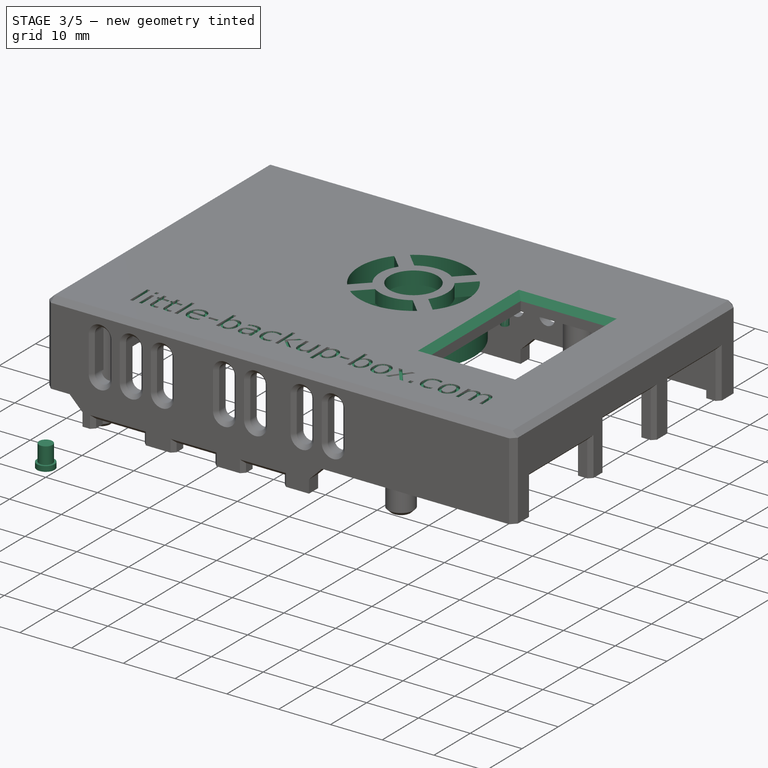
[diagram: stage 3 of 5 — iso view after this stage's code; geometry added in this stage tinted green]
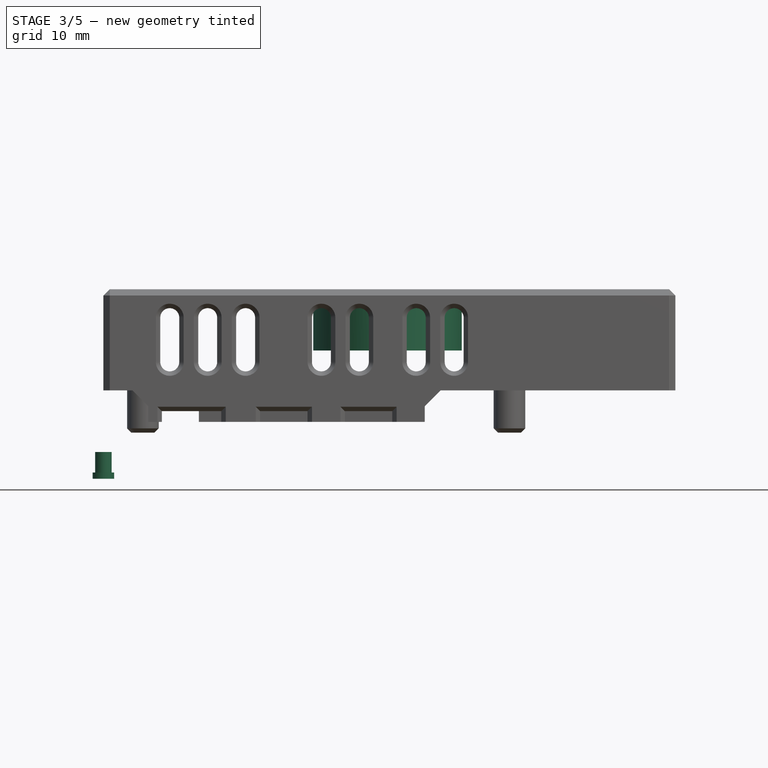
[diagram: stage 3 of 5 — front view after this stage's code; geometry added in this stage tinted green]
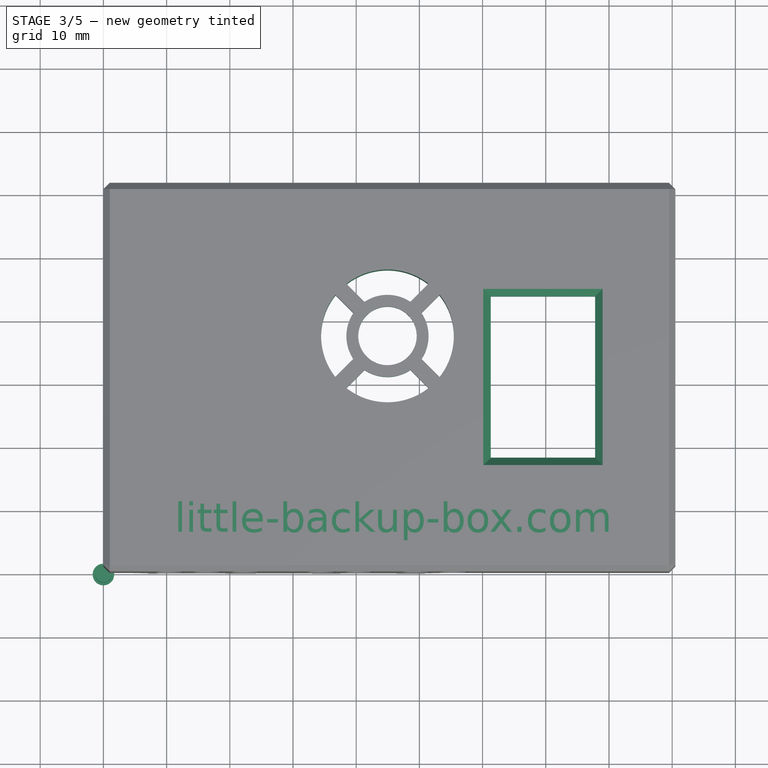
[diagram: stage 3 of 5 — top view after this stage's code; geometry added in this stage tinted green]
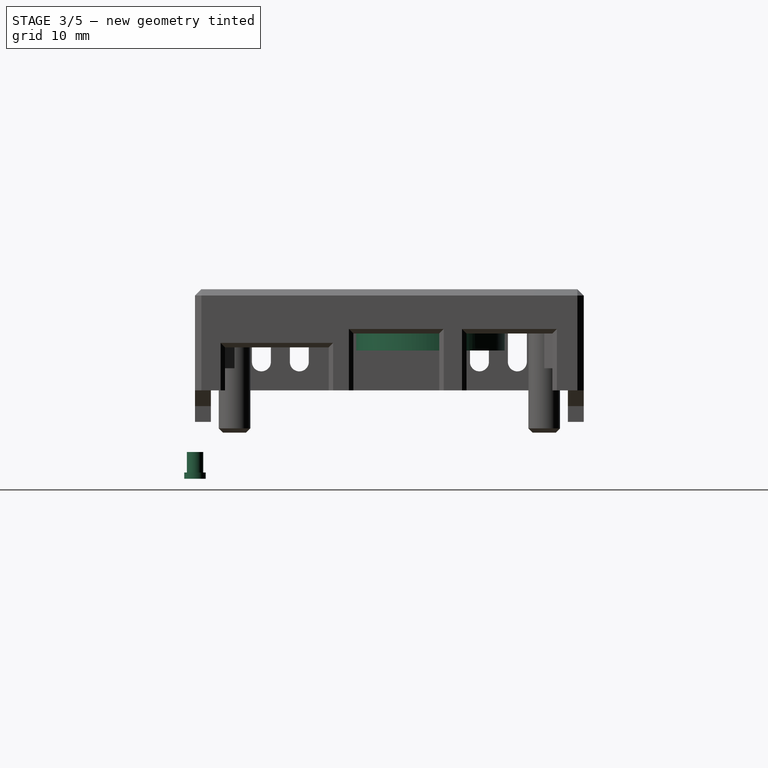
[diagram: stage 3 of 5 — right view after this stage's code; geometry added in this stage tinted green]
FEATURE [Sketcher::SketchObject] Sketch088  label="T_display_glue_sunks"
  AttachmentOffset = pos=(0,0,27.5) rot=(0,0,1;0rad)
  FullyConstrained = true
  MapMode = 5
  Placement = pos=(0,0,27.5) rot=(0,0,1;0rad)
  Support = -> [XY_Plane005]
  expr: .AttachmentOffset.Base.z = <<dim>>.cl_top_inner
  expr: Constraints[10] = Sketch084.Constraints[10]
  expr: Constraints[11] = Sketch084.Constraints[11]
  expr: Constraints[12] = Sketch084.Constraints[12]
  expr: Constraints[27] = Sketch084.Constraints[27]
  expr: Constraints[29] = Sketch084.Constraints[29]
  expr: Constraints[38] = Sketch084.Constraints[38]
  expr: Constraints[41] = Sketch084.Constraints[41]
  expr: Constraints[48] = Sketch084.Constraints[48]
  expr: Constraints[50] = Sketch084.Constraints[50]
  expr: Constraints[51] = Sketch084.Constraints[51]
  expr: Constraints[52] = Sketch084.Constraints[52]
  expr: Constraints[53] = Sketch084.Constraints[53]
  expr: Constraints[54] = Sketch084.Constraints[54]
  sketch-geometry (49):
    g0: LineSegment StartX=61.3 StartY=30.75 StartZ=0 EndX=88 EndY=30.75 EndZ=0
    g1: LineSegment StartX=61.3 StartY=18 StartZ=0 EndX=77.8 EndY=18 EndZ=0
    g2: LineSegment StartX=77.8 StartY=18 StartZ=0 EndX=77.8 EndY=43.5 EndZ=0
    g3: LineSegment StartX=77.8 StartY=43.5 StartZ=0 EndX=61.3 EndY=43.5 EndZ=0
    g4: LineSegment StartX=61.3 StartY=43.5 StartZ=0 EndX=61.3 EndY=18 EndZ=0
    g5: LineSegment StartX=77.8 StartY=43.5 StartZ=0 EndX=79.8 EndY=43.5 EndZ=0
    g6: LineSegment StartX=79.8 StartY=43.5 StartZ=0 EndX=79.8 EndY=45.5 EndZ=0
    g7: LineSegment StartX=79.8 StartY=45.5 StartZ=0 EndX=60.3 EndY=45.5 EndZ=0
    g8: LineSegment StartX=60.3 StartY=45.5 StartZ=0 EndX=60.3 EndY=16 EndZ=0
    g9: LineSegment StartX=60.3 StartY=16 StartZ=0 EndX=79.8 EndY=16 EndZ=0
    g10: LineSegment StartX=79.8 StartY=16 StartZ=0 EndX=79.8 EndY=18 EndZ=0
    g11: LineSegment StartX=79.8 StartY=18 StartZ=0 EndX=77.8 EndY=18 EndZ=0
    g12: LineSegment StartX=79.8 StartY=43.5 StartZ=0 EndX=84.6 EndY=40.75 EndZ=0
    g13: LineSegment StartX=84.6 StartY=40.75 StartZ=0 EndX=88 EndY=40.75 EndZ=0
    g14: LineSegment StartX=88 StartY=40.75 StartZ=0 EndX=88 EndY=20.75 EndZ=0
    g15: LineSegment StartX=88 StartY=20.75 StartZ=0 EndX=84.6 EndY=20.75 EndZ=0
    g16: LineSegment StartX=84.6 StartY=20.75 StartZ=0 EndX=79.8 EndY=18 EndZ=0
    g17: GeomPoint X=85.4 Y=42.5 Z=0
    g18: GeomPoint X=85.4 Y=19 Z=0
    g19: GeomPoint X=58.9 Y=42.5 Z=0
    g20: GeomPoint X=58.9 Y=19 Z=0
    g21: LineSegment StartX=57.5 StartY=41.6917 StartZ=0 EndX=58.9 EndY=40.8834 EndZ=0
    g22: LineSegment StartX=58.9 StartY=40.8834 StartZ=0 EndX=60.3 EndY=41.6917 EndZ=0
    g23: LineSegment StartX=60.3 StartY=41.6917 StartZ=0 EndX=60.3 EndY=43.3083 EndZ=0
    g24: LineSegment StartX=60.3 StartY=43.3083 StartZ=0 EndX=58.9 EndY=44.1166 EndZ=0
    g25: LineSegment StartX=58.9 StartY=44.1166 StartZ=0 EndX=57.5 EndY=43.3083 EndZ=0
    g26: LineSegment StartX=57.5 StartY=43.3083 StartZ=0 EndX=57.5 EndY=41.6917 EndZ=0
    g27: Circle CenterX=58.9 CenterY=42.5 CenterZ=0 NormalX=0 NormalY=0 NormalZ=1 AngleXU=0 Radius=1.61658
    g28: LineSegment StartX=57.5 StartY=18.1917 StartZ=0 EndX=58.9 EndY=17.3834 EndZ=0
    g29: LineSegment StartX=58.9 StartY=17.3834 StartZ=0 EndX=60.3 EndY=18.1917 EndZ=0
    g30: LineSegment StartX=60.3 StartY=18.1917 StartZ=0 EndX=60.3 EndY=19.8083 EndZ=0
    g31: LineSegment StartX=60.3 StartY=19.8083 StartZ=0 EndX=58.9 EndY=20.6166 EndZ=0
    g32: LineSegment StartX=58.9 StartY=20.6166 StartZ=0 EndX=57.5 EndY=19.8083 EndZ=0
    g33: LineSegment StartX=57.5 StartY=19.8083 StartZ=0 EndX=57.5 EndY=18.1917 EndZ=0
    g34: Circle CenterX=58.9 CenterY=19 CenterZ=0 NormalX=0 NormalY=0 NormalZ=1 AngleXU=0 Radius=1.61658
    g35: LineSegment StartX=84 StartY=41.6917 StartZ=0 EndX=85.4 EndY=40.8834 EndZ=0
    g36: LineSegment StartX=85.4 StartY=40.8834 StartZ=0 EndX=86.8 EndY=41.6917 EndZ=0
    g37: LineSegment StartX=86.8 StartY=41.6917 StartZ=0 EndX=86.8 EndY=43.3083 EndZ=0
    g38: LineSegment StartX=86.8 StartY=43.3083 StartZ=0 EndX=85.4 EndY=44.1166 EndZ=0
    g39: LineSegment StartX=85.4 StartY=44.1166 StartZ=0 EndX=84 EndY=43.3083 EndZ=0
    g40: LineSegment StartX=84 StartY=43.3083 StartZ=0 EndX=84 EndY=41.6917 EndZ=0
    g41: Circle CenterX=85.4 CenterY=42.5 CenterZ=0 NormalX=0 NormalY=0 NormalZ=1 AngleXU=0 Radius=1.61658
    g42: LineSegment StartX=84 StartY=18.1917 StartZ=0 EndX=85.4 EndY=17.3834 EndZ=0
    g43: LineSegment StartX=85.4 StartY=17.3834 StartZ=0 EndX=86.8 EndY=18.1917 EndZ=0
    g44: LineSegment StartX=86.8 StartY=18.1917 StartZ=0 EndX=86.8 EndY=19.8083 EndZ=0
    g45: LineSegment StartX=86.8 StartY=19.8083 StartZ=0 EndX=85.4 EndY=20.6166 EndZ=0
    g46: LineSegment StartX=85.4 StartY=20.6166 StartZ=0 EndX=84 EndY=19.8083 EndZ=0
    g47: LineSegment StartX=84 StartY=19.8083 StartZ=0 EndX=84 EndY=18.1917 EndZ=0
    g48: Circle CenterX=85.4 CenterY=19 CenterZ=0 NormalX=0 NormalY=0 NormalZ=1 AngleXU=0 Radius=1.61658
  constraints (119):
    c: Horizontal(g0)
    c: Coincident(g1,g2)
    c: Coincident(g2,g3)
    c: Coincident(g3,g4)
    c: Coincident(g4,g1)
    c: Horizontal(g1)
    c: Horizontal(g3)
    c: Vertical(g2)
    c: Vertical(g4)
    c: Symmetric(g3,g1,g0)
    c: DistanceX(g3,g3) = 16.5
    c: DistanceY(g4,g4) = 25.5
    c: DistanceX(g2,g0) = 10.2
    c: Coincident(g2,g5)
    c: Horizontal(g5)
    c: Coincident(g5,g6)
    c: Vertical(g6)
    c: Coincident(g6,g7)
    c: Horizontal(g7)
    c: Coincident(g7,g8)
    c: Vertical(g8)
    c: Coincident(g8,g9)
    c: Horizontal(g9)
    c: Coincident(g9,g10)
    c: Coincident(g10,g11)
    c: Coincident(g11,g1)
    c: Horizontal(g11)
    c: DistanceX(g7,g3) = 1
    c: Equal(g6,g10)
    c: DistanceY(g6,g6) = 2
    c: Coincident(g5,g12)
    c: Coincident(g12,g13)
    c: Coincident(g13,g14)
    c: Vertical(g14)
    c: Coincident(g14,g15)
    c: Horizontal(g15)
    c: Coincident(g15,g16)
    c: Coincident(g16,g10)
    c: DistanceY(g14,g14) = 20
    c: Vertical(g12,g15)
    c: Parallel(g15,g13)
    c: DistanceX(g9,g9) = 19.5
    c: Vertical(g10)
    c: Vertical(g5,g10)
    c: Symmetric(g13,g14,g0)
    c: Horizontal(g19,g17)
    c: Horizontal(g20,g18)
    c: Vertical(g19,g20)
    c: DistanceX(g18,g14) = 2.6
    c: Symmetric(g18,g17,g0)
    c: DistanceY(g18,g17) = 23.5
    c: DistanceX(g19,g17) = 26.5
    c: DistanceY(g-1,g0) = 30.75
    c: DistanceX(g-1,g0) = 88
    c: DistanceX(g15,g14) = 3.4
    c: Coincident(g21,g22)
    c: Coincident(g22,g23)
    c: Coincident(g23,g24)
    c: Coincident(g24,g25)
    c: Coincident(g25,g26)
    c: Coincident(g26,g21)
    c: Equal(g21, g22-g26) x5
    c: PointOnObject(g21,g27)
    c: PointOnObject(g22,g27)
    c: PointOnObject(g23,g27)
    c: PointOnObject(g24,g27)
    c: PointOnObject(g25,g27)
    c: PointOnObject(g26,g27)
    c: Coincident(g27,g19)
    c: Coincident(g28,g29)
    c: Coincident(g29,g30)
    c: Coincident(g30,g31)
    c: Coincident(g31,g32)
    c: Coincident(g32,g33)
    c: Coincident(g33,g28)
    c: Equal(g28, g29-g33) x5
    c: PointOnObject(g28,g34)
    c: PointOnObject(g29,g34)
    c: PointOnObject(g30,g34)
    c: PointOnObject(g31,g34)
    c: PointOnObject(g32,g34)
    c: PointOnObject(g33,g34)
    c: Coincident(g34,g20)
    c: Coincident(g35,g36)
    c: Coincident(g36,g37)
    c: Coincident(g37,g38)
    c: Coincident(g38,g39)
    c: Coincident(g39,g40)
    c: Coincident(g40,g35)
    c: Equal(g35, g36-g40) x5
    c: PointOnObject(g35,g41)
    c: PointOnObject(g36,g41)
    c: PointOnObject(g37,g41)
    c: PointOnObject(g38,g41)
    c: PointOnObject(g39,g41)
    c: PointOnObject(g40,g41)
    c: Coincident(g41,g17)
    c: Coincident(g42,g43)
    c: Coincident(g43,g44)
    c: Coincident(g44,g45)
    c: Coincident(g45,g46)
    c: Coincident(g46,g47)
    c: Coincident(g47,g42)
    c: Equal(g42, g43-g47) x5
    c: PointOnObject(g42,g48)
    c: PointOnObject(g43,g48)
    c: PointOnObject(g44,g48)
    c: PointOnObject(g45,g48)
    c: PointOnObject(g46,g48)
    c: PointOnObject(g47,g48)
    c: Coincident(g48,g18)
    c: Vertical(g40)
    c: Vertical(g47)
    c: Vertical(g26)
    c: Vertical(g33)
    c: Vertical(g23,g7)
    c: Vertical(g30,g8)
    c: Equal(g27,g41)
    c: Equal(g41,g48)
FEATURE [PartDesign::Pocket] Pocket018  label="T_display_glue_sunks_pocket"
  BaseFeature = -> Pocket017
  Direction = (0,0,-1)
  Length = 1.5
  Length2 = 5
  Profile = -> Sketch088
  ReferenceAxis = -> Sketch088 [N_Axis]
  Reversed = true
  Type = 0
  expr: Length = <<dim>>.disp_glue_sunk_height
FEATURE [Sketcher::SketchObject] Sketch089  label="T_display_glue_pins"
  AttachmentOffset = pos=(0,0,29) rot=(0,0,1;0rad)
  FullyConstrained = true
  MapMode = 5
  Placement = pos=(0,0,29) rot=(0,0,1;0rad)
  Support = -> [XY_Plane005]
  expr: .AttachmentOffset.Base.z = <<dim>>.cl_top_inner + <<dim>>.disp_glue_sunk_height
  expr: Constraints[10] = Sketch084.Constraints[10]
  expr: Constraints[11] = Sketch084.Constraints[11]
  expr: Constraints[12] = Sketch084.Constraints[12]
  expr: Constraints[27] = Sketch084.Constraints[27]
  expr: Constraints[29] = Sketch084.Constraints[29]
  expr: Constraints[38] = Sketch084.Constraints[38]
  expr: Constraints[41] = Sketch084.Constraints[41]
  expr: Constraints[48] = Sketch084.Constraints[48]
  expr: Constraints[50] = Sketch084.Constraints[50]
  expr: Constraints[51] = Sketch084.Constraints[51]
  expr: Constraints[52] = Sketch084.Constraints[52]
  expr: Constraints[53] = Sketch084.Constraints[53]
  expr: Constraints[54] = Sketch084.Constraints[54]
  expr: Constraints[62] = <<dim>>.disp_pin_diam
  sketch-geometry (25):
    g0: LineSegment StartX=61.3 StartY=30.75 StartZ=0 EndX=88 EndY=30.75 EndZ=0
    g1: LineSegment StartX=61.3 StartY=18 StartZ=0 EndX=77.8 EndY=18 EndZ=0
    g2: LineSegment StartX=77.8 StartY=18 StartZ=0 EndX=77.8 EndY=43.5 EndZ=0
    g3: LineSegment StartX=77.8 StartY=43.5 StartZ=0 EndX=61.3 EndY=43.5 EndZ=0
    g4: LineSegment StartX=61.3 StartY=43.5 StartZ=0 EndX=61.3 EndY=18 EndZ=0
    g5: LineSegment StartX=77.8 StartY=43.5 StartZ=0 EndX=79.8 EndY=43.5 EndZ=0
    g6: LineSegment StartX=79.8 StartY=43.5 StartZ=0 EndX=79.8 EndY=45.5 EndZ=0
    g7: LineSegment StartX=79.8 StartY=45.5 StartZ=0 EndX=60.3 EndY=45.5 EndZ=0
    g8: LineSegment StartX=60.3 StartY=45.5 StartZ=0 EndX=60.3 EndY=16 EndZ=0
    g9: LineSegment StartX=60.3 StartY=16 StartZ=0 EndX=79.8 EndY=16 EndZ=0
    g10: LineSegment StartX=79.8 StartY=16 StartZ=0 EndX=79.8 EndY=18 EndZ=0
    g11: LineSegment StartX=79.8 StartY=18 StartZ=0 EndX=77.8 EndY=18 EndZ=0
    g12: LineSegment StartX=79.8 StartY=43.5 StartZ=0 EndX=84.6 EndY=40.75 EndZ=0
    g13: LineSegment StartX=84.6 StartY=40.75 StartZ=0 EndX=88 EndY=40.75 EndZ=0
    g14: LineSegment StartX=88 StartY=40.75 StartZ=0 EndX=88 EndY=20.75 EndZ=0
    g15: LineSegment StartX=88 StartY=20.75 StartZ=0 EndX=84.6 EndY=20.75 EndZ=0
    g16: LineSegment StartX=84.6 StartY=20.75 StartZ=0 EndX=79.8 EndY=18 EndZ=0
    g17: GeomPoint X=85.4 Y=42.5 Z=0
    g18: GeomPoint X=85.4 Y=19 Z=0
    g19: GeomPoint X=58.9 Y=42.5 Z=0
    g20: GeomPoint X=58.9 Y=19 Z=0
    g21: Circle CenterX=58.9 CenterY=42.5 CenterZ=0 NormalX=0 NormalY=0 NormalZ=1 AngleXU=0 Radius=0.75
    g22: Circle CenterX=58.9 CenterY=19 CenterZ=0 NormalX=0 NormalY=0 NormalZ=1 AngleXU=0 Radius=0.75
    g23: Circle CenterX=85.4 CenterY=42.5 CenterZ=0 NormalX=0 NormalY=0 NormalZ=1 AngleXU=0 Radius=0.75
    g24: Circle CenterX=85.4 CenterY=19 CenterZ=0 NormalX=0 NormalY=0 NormalZ=1 AngleXU=0 Radius=0.75
  constraints (63):
    c: Horizontal(g0)
    c: Coincident(g1,g2)
    c: Coincident(g2,g3)
    c: Coincident(g3,g4)
    c: Coincident(g4,g1)
    c: Horizontal(g1)
    c: Horizontal(g3)
    c: Vertical(g2)
    c: Vertical(g4)
    c: Symmetric(g3,g1,g0)
    c: DistanceX(g3,g3) = 16.5
    c: DistanceY(g4,g4) = 25.5
    c: DistanceX(g2,g0) = 10.2
    c: Coincident(g2,g5)
    c: Horizontal(g5)
    c: Coincident(g5,g6)
    c: Vertical(g6)
    c: Coincident(g6,g7)
    c: Horizontal(g7)
    c: Coincident(g7,g8)
    c: Vertical(g8)
    c: Coincident(g8,g9)
    c: Horizontal(g9)
    c: Coincident(g9,g10)
    c: Coincident(g10,g11)
    c: Coincident(g11,g1)
    c: Horizontal(g11)
    c: DistanceX(g7,g3) = 1
    c: Equal(g6,g10)
    c: DistanceY(g6,g6) = 2
    c: Coincident(g5,g12)
    c: Coincident(g12,g13)
    c: Coincident(g13,g14)
    c: Vertical(g14)
    c: Coincident(g14,g15)
    c: Horizontal(g15)
    c: Coincident(g15,g16)
    c: Coincident(g16,g10)
    c: DistanceY(g14,g14) = 20
    c: Vertical(g12,g15)
    c: Parallel(g15,g13)
    c: DistanceX(g9,g9) = 19.5
    c: Vertical(g10)
    c: Vertical(g5,g10)
    c: Symmetric(g13,g14,g0)
    c: Horizontal(g19,g17)
    c: Horizontal(g20,g18)
    c: Vertical(g19,g20)
    c: DistanceX(g18,g14) = 2.6
    c: Symmetric(g18,g17,g0)
    c: DistanceY(g18,g17) = 23.5
    c: DistanceX(g19,g17) = 26.5
    c: DistanceY(g-1,g0) = 30.75
    c: DistanceX(g-1,g0) = 88
    c: DistanceX(g15,g14) = 3.4
    c: Coincident(g21,g19)
    c: Coincident(g22,g20)
    c: Coincident(g23,g17)
    c: Coincident(g24,g18)
    c: Equal(g21,g23)
    c: Equal(g23,g24)
    c: Equal(g24,g22)
    c: Diameter(g21) = 1.5
FEATURE [PartDesign::Pad] Pad038  label="T_display_glue_pins_pad"
  BaseFeature = -> Pocket018
  Direction = (0,0,1)
  Length = 4.6
  Length2 = 10
  Profile = -> Sketch089
  ReferenceAxis = -> Sketch089 [N_Axis]
  Reversed = true
  Type = 0
  expr: Length = <<dim>>.disp_pin_height
FEATURE [PartDesign::Chamfer] Chamfer017  label="T_display_chamfer"
  Angle = 45
  Base = -> Pad038 [Edge554,Edge551,Edge552,Edge553]
  BaseFeature = -> Pad038
  ChamferType = 0
  FlipDirection = false
  Size = 1.19
  Size2 = 1
  SupportTransform = false
  UseAllEdges = false
  expr: Size = <<dim>>.disp_chamfer
FEATURE [Sketcher::SketchObject] Sketch099  label="power_button_socket"
  FullyConstrained = true
  MapMode = 5
  Support = -> [XY_Plane007]
  expr: Constraints[1] = <<dim>>.pwr_button_rad2 - 2 * <<dim>>.box_spacing
  sketch-geometry (1):
    g0: Circle CenterX=0 CenterY=0 CenterZ=0 NormalX=0 NormalY=0 NormalZ=1 AngleXU=0 Radius=1.7
  constraints (2):
    c: Coincident(g0,g-1)
    c: Radius(g0) = 1.7
FEATURE [PartDesign::Pad] Pad041  label="power_button_socket_pad"
  Direction = (0,0,1)
  Length = 1
  Length2 = 10
  Profile = -> Sketch099
  ReferenceAxis = -> Sketch099 [N_Axis]
  Type = 0
  expr: Length = <<dim>>.pwr_button_rad2_deep
FEATURE [Sketcher::SketchObject] Sketch100  label="power_button_pin"
  AttachmentOffset = pos=(0,0,1) rot=(0,0,1;0rad)
  FullyConstrained = true
  MapMode = 5
  Placement = pos=(0,0,1) rot=(0,0,1;0rad)
  Support = -> [XY_Plane007]
  expr: .AttachmentOffset.Base.z = <<dim>>.pwr_button_rad2_deep
  expr: Constraints[1] = <<dim>>.pwr_button_rad - 2 * <<dim>>.box_spacing
  sketch-geometry (1):
    g0: Circle CenterX=0 CenterY=0 CenterZ=0 NormalX=0 NormalY=0 NormalZ=1 AngleXU=0 Radius=1.3
  constraints (2):
    c: Coincident(g0,g-1)
    c: Radius(g0) = 1.3
FEATURE [PartDesign::Pad] Pad042  label="power_button_pin_pad"
  BaseFeature = -> Pad041
  Direction = (0,0,1)
  Length = 3.25
  Length2 = 10
  Profile = -> Sketch100
  ReferenceAxis = -> Sketch100 [N_Axis]
  Type = 0
  expr: Length = <<dim>>.outer_wall_board_dist - <<dim>>.pwr_button_rad2_deep + <<dim>>.pwr_button_protrusion
FEATURE [PartDesign::Body] Body002  label="Bottom"
  Group = -> [Sketch043,Pad022,Sketch,Pocket,Sketch044,Pad,Chamfer,Sketch046,Pocket001,Chamfer002,Sketch047,Pocket002,Chamfer003,Sketch048,Pocket003,Sketch049,Pocket004,Chamfer005,Chamfer006,Sketch050,Pad024,Chamfer007,Sketch051,Pad025,Chamfer008,Sketch052,Pocket005,Sketch053,Pocket006,Sketch097,Pocket023,Sketch098,Pocket024,Sketch103,Hole001]
  Origin = -> Origin003
  Tip = -> Hole001
FEATURE [Sketcher::SketchObject] Sketch104  label="T_fan_center"
  AttachmentOffset = pos=(0,0,27.5) rot=(0,0,1;0rad)
  FullyConstrained = true
  MapMode = 5
  Placement = pos=(0,0,27.5) rot=(0,0,1;0rad)
  Support = -> [XY_Plane005]
  expr: .AttachmentOffset.Base.z = <<dim>>.cl_top_inner
  expr: Constraints[0] = <<dim>>.outer_wall_board_dist + <<dim>>.fan_x
  expr: Constraints[1] = <<dim>>.outer_wall_board_dist + <<dim>>.fan_y
  sketch-geometry (1):
    g0: GeomPoint X=44.95 Y=37.25 Z=0
  constraints (2):
    c: DistanceX(g-1,g0) = 44.95
    c: DistanceY(g-1,g0) = 37.25
FEATURE [Sketcher::SketchObject] Sketch106  label="T_fan_open"
  AttachmentOffset = pos=(0,0,30) rot=(0,0,1;0rad)
  FullyConstrained = true
  MapMode = 5
  Placement = pos=(0,0,30) rot=(0,0,1;0rad)
  Support = -> [XY_Plane005]
  expr: .AttachmentOffset.Base.z = <<dim>>.cl_top_inner + <<dim>>.wall_width
  expr: Constraints[0] = Sketch104.Constraints[0]
  expr: Constraints[1] = Sketch104.Constraints[1]
  expr: Constraints[3] = <<dim>>.fan_diam
  sketch-geometry (2):
    g0: GeomPoint X=44.95 Y=37.25 Z=0
    g1: Circle CenterX=44.95 CenterY=37.25 CenterZ=0 NormalX=0 NormalY=0 NormalZ=1 AngleXU=0 Radius=10.5
  constraints (4):
    c: DistanceX(g-1,g0) = 44.95
    c: DistanceY(g-1,g0) = 37.25
    c: Coincident(g0,g1)
    c: Diameter(g1) = 21
FEATURE [PartDesign::Pocket] Pocket025  label="T_fan_open_Pocket"
  BaseFeature = -> Chamfer017
  Direction = (0,0,-1)
  Length = 2.5
  Length2 = 5
  Profile = -> Sketch106
  ReferenceAxis = -> Sketch106 [N_Axis]
  Type = 0
  expr: Length = <<dim>>.wall_width
FEATURE [PartDesign::Body] Body004  label="power_button"
  Group = -> [Sketch099,Pad041,Sketch100,Pad042,Fillet,Sketch101,Hole,Chamfer021]
  Origin = -> Origin007
  Tip = -> Chamfer021
FEATURE [PartDesign::Pad] Pad043  label="T_fan_protector_x_pad"
  BaseFeature = -> Pocket025
  Direction = (0,0,1)
  Length = 2.5
  Length2 = 10
  Profile = -> Sketch108
  ReferenceAxis = -> Sketch108 [N_Axis]
  Reversed = true
  Type = 0
  expr: Length = <<dim>>.wall_width
FEATURE [PartDesign::Pad] Pad044  label="T_fan_protector_disc_pad"
  BaseFeature = -> Pad043
  Direction = (0,0,1)
  Length = 2.5
  Length2 = 10
  Profile = -> Sketch110
  ReferenceAxis = -> Sketch110 [N_Axis]
  Reversed = true
  Type = 0
  expr: Length = <<dim>>.wall_width
FEATURE [Sketcher::SketchObject] Sketch111  label="T_fan_protector_center_hole"
  AttachmentOffset = pos=(0,0,30) rot=(0,0,1;0rad)
  FullyConstrained = true
  MapMode = 5
  Placement = pos=(0,0,30) rot=(0,0,1;0rad)
  Support = -> [XY_Plane005]
  expr: .AttachmentOffset.Base.z = <<dim>>.cl_top_inner + <<dim>>.wall_width
  expr: Constraints[0] = Sketch104.Constraints[0]
  expr: Constraints[1] = Sketch104.Constraints[1]
  expr: Constraints[3] = <<dim>>.fan_diam / 2 - <<dim>>.wall_width / 2
  sketch-geometry (2):
    g0: GeomPoint X=44.95 Y=37.25 Z=0
    g1: Circle CenterX=44.95 CenterY=37.25 CenterZ=0 NormalX=0 NormalY=0 NormalZ=1 AngleXU=0 Radius=4.625
  constraints (4):
    c: DistanceX(g-1,g0) = 44.95
    c: DistanceY(g-1,g0) = 37.25
    c: Coincident(g1,g0)
    c: Diameter(g1) = 9.25
FEATURE [PartDesign::Pocket] Pocket026  label="T_fan_protector_center_hole_pocket"
  BaseFeature = -> Pad044
  Direction = (0,0,-1)
  Length = 2.5
  Length2 = 5
  Profile = -> Sketch111
  ReferenceAxis = -> Sketch111 [N_Axis]
  Type = 0
  expr: Length = <<dim>>.wall_width
FEATURE [Sketcher::SketchObject] Sketch112  label="t_fan_channel_full"
  AttachmentOffset = pos=(0,0,27.5) rot=(0,0,1;0rad)
  FullyConstrained = true
  MapMode = 5
  Placement = pos=(0,0,27.5) rot=(0,0,1;0rad)
  Support = -> [XY_Plane005]
  expr: .AttachmentOffset.Base.z = <<dim>>.cl_top_inner
  expr: Constraints[0] = Sketch104.Constraints[0]
  expr: Constraints[1] = Sketch104.Constraints[1]
  expr: Constraints[3] = <<dim>>.fan_diam + <<dim>>.wall_width
  sketch-geometry (2):
    g0: GeomPoint X=44.95 Y=37.25 Z=0
    g1: Circle CenterX=44.95 CenterY=37.25 CenterZ=0 NormalX=0 NormalY=0 NormalZ=1 AngleXU=0 Radius=11.75
  constraints (4):
    c: DistanceX(g-1,g0) = 44.95
    c: DistanceY(g-1,g0) = 37.25
    c: Coincident(g1,g0)
    c: Diameter(g1) = 23.5
FEATURE [PartDesign::Pad] Pad045  label="t_fan_channel_full_pad"
  BaseFeature = -> Pocket026
  Direction = (0,0,1)
  Length = 7.2
  Length2 = 10
  Profile = -> Sketch112
  ReferenceAxis = -> Sketch112 [N_Axis]
  Reversed = true
  Type = 0
  expr: Length = <<dim>>.socket3_height - <<dim>>.fan_height
FEATURE [Sketcher::SketchObject] Sketch113  label="t_fan_channel_hole"
  AttachmentOffset = pos=(0,0,20.3) rot=(0,0,1;0rad)
  FullyConstrained = true
  MapMode = 5
  Placement = pos=(0,0,20.3) rot=(0,0,1;0rad)
  Support = -> [XY_Plane005]
  expr: .AttachmentOffset.Base.z = <<dim>>.cl_top_inner - <<dim>>.socket3_height + <<dim>>.fan_height
  expr: Constraints[0] = Sketch104.Constraints[0]
  expr: Constraints[1] = Sketch104.Constraints[1]
  expr: Constraints[3] = <<dim>>.fan_diam
  sketch-geometry (2):
    g0: GeomPoint X=44.95 Y=37.25 Z=0
    g1: Circle CenterX=44.95 CenterY=37.25 CenterZ=0 NormalX=0 NormalY=0 NormalZ=1 AngleXU=0 Radius=10.5
  constraints (4):
    c: DistanceX(g-1,g0) = 44.95
    c: DistanceY(g-1,g0) = 37.25
    c: Coincident(g1,g0)
    c: Diameter(g1) = 21
FEATURE [PartDesign::Pocket] Pocket027  label="t_fan_channel_hole_Pocket"
  BaseFeature = -> Pad045
  Direction = (0,0,-1)
  Length = 7.2
  Length2 = 5
  Profile = -> Sketch113
  ReferenceAxis = -> Sketch113 [N_Axis]
  Reversed = true
  Type = 0
  expr: Length = <<dim>>.socket3_height - <<dim>>.fan_height
FEATURE [Part::Part2DObjectPython] ShapeString  # Draft 2D object (typed FeaturePython)
  FontFile = <path>
  MakeFace = true
  Placement = pos=(11.25,6.25,30) rot=(0,0,1;0rad)
  Size = 5
  String = little-backup-box.com
  Tracking = 0
  expr: .Placement.Base.x = (<<dim>>.cl_box_length - 68) / 2
  expr: .Placement.Base.z = <<dim>>.cl_top_outer
FEATURE [PartDesign::Pocket] Pocket028  label="little-backup-box.com"
  BaseFeature = -> Pocket027
  Direction = (0,0,-1)
  Length = 0.5
  Length2 = 5
  Profile = -> ShapeString
  ReferenceAxis = -> ShapeString [N_Axis]
  Type = 0
FEATURE [PartDesign::Body] Body003  label="Top"
  Group = -> [Sketch064,Pad026,Sketch065,Pocket007,Sketch066,Pad027,Chamfer009,Sketch069,Pad030,Sketch070,Pad031,Chamfer011,Sketch071,Pad032,Chamfer012,Sketch072,Pocket008,Chamfer013,Sketch073,Pocket009,Chamfer014,Sketch078,Pad035,Sketch079,Pad036,Sketch080,Pocket012,Chamfer015,Sketch081,Pocket013,Sketch082,Pocket014,Sketch083,Pocket015,Chamfer016,Sketch084,Sketch085,Pocket016,Sketch086,Pad037,Sketch087,+21 more]
  Origin = -> Origin005
  Tip = -> Pocket028
note: 1 file-system path scrubbed to <path> (originals preserved in the JSON sidecar)
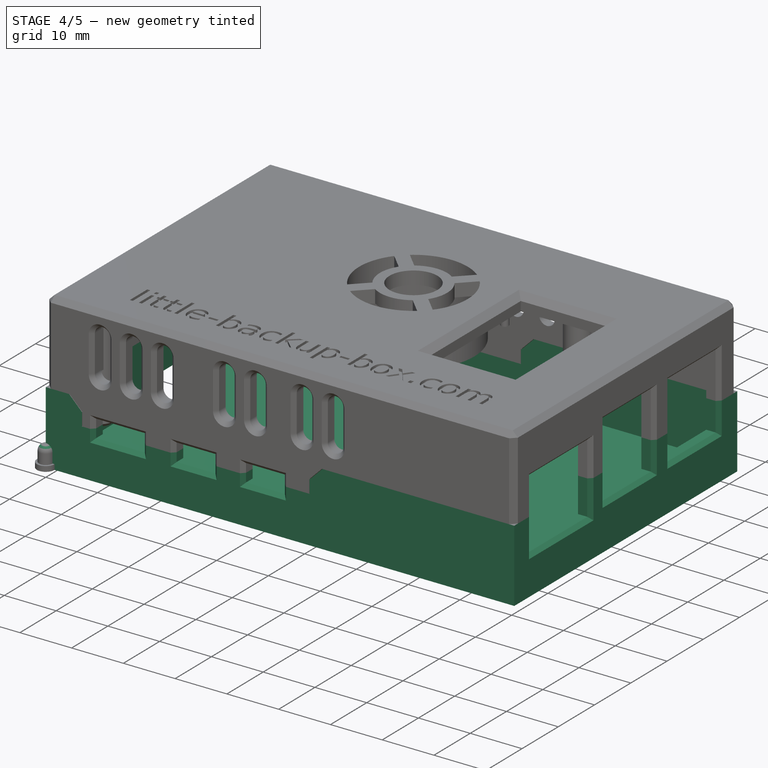
[diagram: stage 4 of 5 — iso view after this stage's code; geometry added in this stage tinted green]
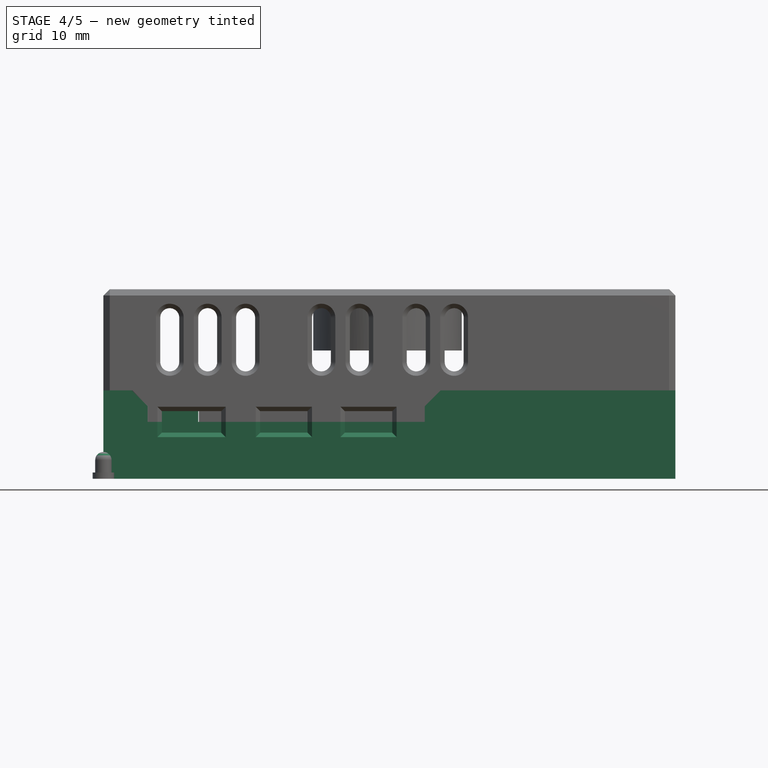
[diagram: stage 4 of 5 — front view after this stage's code; geometry added in this stage tinted green]
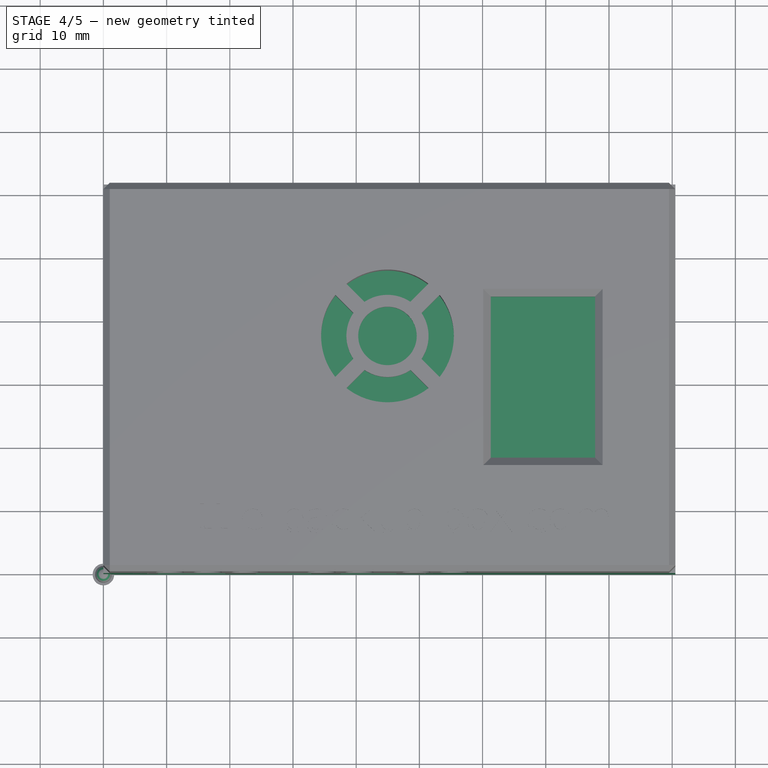
[diagram: stage 4 of 5 — top view after this stage's code; geometry added in this stage tinted green]
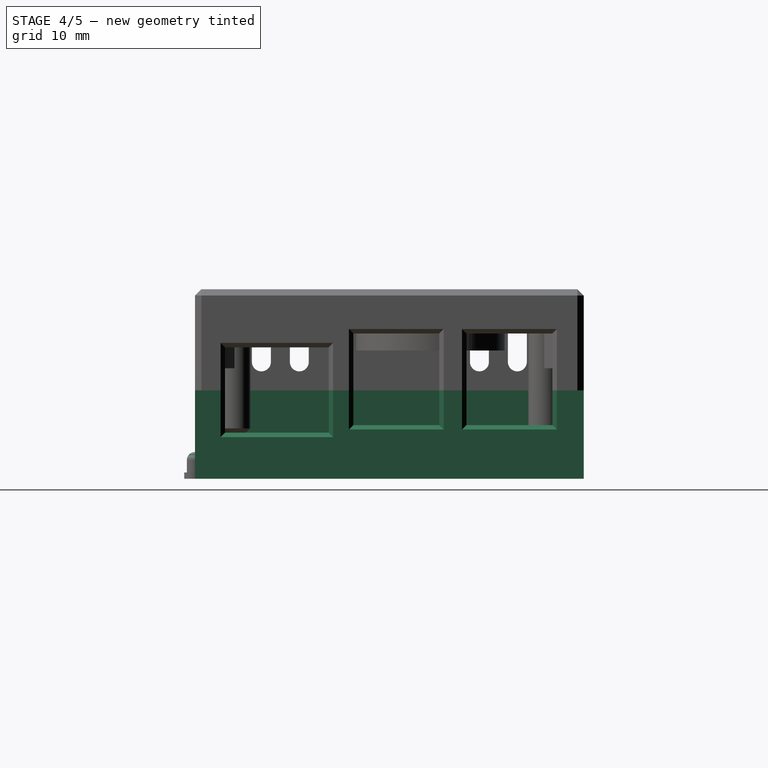
[diagram: stage 4 of 5 — right view after this stage's code; geometry added in this stage tinted green]
FEATURE [App::Part] Part  label="Rpi4 case"
  Origin = -> Origin
FEATURE [Spreadsheet::Sheet] Spreadsheet  label="dim"
  cells = A1='bold=; B1='prim. values; D1='standard=; E1='calculated values; A3='Raspberry Pi 4; C3='rpi_width; D3='rpi_length; E3='rpi_board_height; F3='rpi_space; H3='outer_wall_board_dist; J3='Construction levels; C4(rpi_width)=56; D4(rpi_length)=85; E4(rpi_board_height)=1.6; F4(rpi_space)=0.25; H4(outer_wall_board_dist)==wall_width + rpi_space; K4='Bottom; C6='rpi_holes_diam; D6='rpi_dist_hole_border; E6='rpi_holes_dist_y; F6='rpi_holes_dist_x; G6='rpi_fan_dist_to_holes_y; H6='rpi_fan_pins_height; L6='base; M6(b_cl_bottom_base)=0; C7(rpi_holes_diam)=3; D7(rpi_dist_hole_border)=3.5; E7(rpi_holes_dist_y)=49; F7(rpi_holes_dist_x)=58; G7(rpi_fan_dist_to_holes_y)=6; H7(rpi_fan_pins_height)=3.5; L7='box_top; M7(b_cl_box_top)==b_cl_bottom_base + bottom_height; L8='box_length; M8(cl_box_length)==box_length; A9='Box; B9='Basics; C9='wall_width; D9='box_width; E9='box_length; F9='bottom_height*; G9='top_height*; H9='box_spacing; L9='box_ground_inner; M9(cl_bottom_ground_inner)==wall_width; C10(wall_width)=2.5; D10(box_width)==rpi_width + 2 * rpi_space + 2 * wall_width; E10(box_length)==rpi_length + 2 * rpi_space + 2 * wall_width; F10(bottom_height)=9; G10(top_height)=16; H10(box_spacing)=0.1; L10='box_socket1; M10(cl_bottom_socket1)==cl_bottom_ground_inner + bottom_socket1_height; F11='*Full height=Bottom+Top+interlocking!; L11='box_socket2; M11(cl_bottom_socket2)==cl_bottom_socket1 + bottom_socket2_height; B12='Interlocking; C12='box_interlocking_height*; D12='box_interlocking_audio_left_width; E12='box_interlocking_audio_right_add; F12='box_interlocking_empty_left_width; G12='box_interlocking_empty_right_width; C13(box_interlocking_height)=5; D13(box_interlocking_audio_left_width)=7; E13(box_interlocking_audio_right_add)=5; F13(box_interlocking_empty_left_width)=15; G13(box_interlocking_empty_right_width)=40; K13='Top; L14='base; M14(cl_top_base)==bottom_height + box_interlocking_height; B15='Chamfers; C15='box_interlocking_chamfer; D15='box_power_chamfer; E15='box_plugs_champfer; F15='box_body_chamfer; L15='cl_top_audio4; M15(cl_top_audio4)==cl_top_base - box_interlocking_height / 2; C16(box_interlocking_chamfer)==box_interlocking_height / 2 - 0.01; D16(box_power_chamfer)==audio_level_height / 2 - 0.01; E16(box_plugs_champfer)=0.7; F16(box_body_chamfer)=1; L16='audio3; M16(cl_top_audio3)==cl_top_audio4 - audio3_level_height; L17='audio2; M17(cl_top_audio2)==cl_top_audio3 - audio_level_height / 2; A18='Elements; B18='USB-C; C18='usbc_width; D18='usbc_height; E18='usbc_x; F18='usbc_z; K18='x; L18='audio1; M18(cl_top_audio1)==cl_top_audio3 - audio_level_height; C19(usbc_width)=9.4; D19(usbc_height)=3.4; E19(usbc_x)==outer_wall_board_dist + 11.2 - usbc_width / 2; F19(usbc_z)==bottom_height - usbc_height / 2; L19='box_top_inner; M19(cl_top_inner)==cl_top_base + top_height - wall_width; L20='box_top_outer; M20(cl_top_outer)==bottom_height + box_interlocking_height + top_height; B21='HDMI 1; C21='hdmi_width; D21='hdmi_height; E21='hdmi1_x; F21='hdmi_z; C22(hdmi_width)=7.5; D22(hdmi_height)=3.4; E22(hdmi1_x)==outer_wall_board_dist + 25.8 - hdmi_width / 2; F22(hdmi_z)==bottom_height - hdmi_height / 2; B24='HDMI 2; E24='hdmi2_x; E25(hdmi2_x)==outer_wall_board_dist + 39.2 - hdmi_width / 2; A27='x; B27='Audio; C27='audio_level_length; D27='audio_level_height; E27='audio_x; F27='audio_z; G27='audio_diameter; A28='x; C28(audio_level_length)=17; D28(audio_level_height)=1.5; E28(audio_x)=56.5; F28(audio_z)==bottom_height + audio_level_height; G28(audio_diameter)=6.4; A30='x; C30='audio3_level_height; D30='audio_level4_height; E30='(audio_level2 is calculated inside the sketch); A31='x; C31(audio3_level_height)==box_interlocking_height - box_interlocking_height / 2 - audio_level_height; D31(audio_level4_height)==box_interlocking_height - audio3_level_height - audio_level_height; B33='USB2; C33='usb2_width; D33='usb2_height; E33='usb2_x; F33='usb2_above_board; G33='usb2_z; C34(usb2_width)=13.6; D34(usb2_height)=14.5; E34(usb2_x)==outer_wall_board_dist + 47 - usb2_width / 2; F34(usb2_above_board)=1.2; G34(usb2_z)==usbc_z + usb2_above_board; B36='USB3; C36(usb3_width)=13.6; D36(usb3_height)=14.5; E36(usb3_x)==outer_wall_board_dist + 29.1 - usb3_width / 2; F36(usb3_above_board)=1.2; G36(usb3_z)==hdmi_z + usb3_above_board; B38='RJ45; C38='rj45_width; D38='rj45_height; E38='rj45_x; F38='rj_45_z; C39(rj45_width)=16.4; D39(rj45_height)=13.5; E39(rj45_x)==outer_wall_board_dist + 10.2 - rj45_width / 2; F39(rj_45_z)==usbc_z; B41='SD; C41='sd_width; D41='sd_length; E41='sd_height; F41='sd_x; C42(sd_width)=12; D42(sd_length)=8; E42(sd_height)==wall_width + bottom_socket1_height + bottom_socket2_height + rpi_board_height / 2; F42(sd_x)==(box_width - sd_width) / 2; B44='LEDs; C44='leds_width; D44='leds_height; E44='leds_y; F44='leds_z; C45(leds_width)=3; D45(leds_height)=0.9; E45(leds_y)==outer_wall_board_dist + 13.3 - leds_width / 2; F45(leds_z)==wall_width + bottom_socket1_height + bottom_socket2_height + rpi_board_height; B47='Pwr Button; C47='pwr_button_rad; D47='pwr_button_rad2; E47='pwr_button_rad2_deep; F47='pwr_button_y; G47='pwr_button_z; H47='pwr_button_protrusion; I47='pwr_button_centralizer_rad; C48(pwr_button_rad)=1.5; D48(pwr_button_rad2)=1.9; E48(pwr_button_rad2_deep)=1; F48(pwr_button_y)==outer_wall_board_dist + 18.4; G48(pwr_button_z)==wall_width + bottom_socket1_height + bottom_socket2_height + rpi_board_height + pwr_button_rad + 0.5; H48(pwr_button_protrusion)=1.5; I48(pwr_button_centralizer_rad)=1.5; B50='Fan; C50='fan_x; D50='fan_y; E50='fan_diam; F50='fan_height; C51(fan_x)=42.2; D51(fan_y)=34.5; +108 more cells
FEATURE [Sketcher::SketchObject] Sketch043  label="B_box_full"
  FullyConstrained = true
  MapMode = 5
  Support = -> [XY_Plane003]
  expr: Constraints[8] = <<dim>>.box_length
  expr: Constraints[9] = <<dim>>.box_width
  sketch-geometry (4):
    g0: LineSegment StartX=0 StartY=61.5 StartZ=0 EndX=90.5 EndY=61.5 EndZ=0
    g1: LineSegment StartX=90.5 StartY=61.5 StartZ=0 EndX=90.5 EndY=0 EndZ=0
    g2: LineSegment StartX=90.5 StartY=0 StartZ=0 EndX=0 EndY=0 EndZ=0
    g3: LineSegment StartX=0 StartY=0 StartZ=0 EndX=0 EndY=61.5 EndZ=0
  constraints (11):
    c: Coincident(g0,g1)
    c: Coincident(g1,g2)
    c: Coincident(g2,g3)
    c: Coincident(g3,g0)
    c: Horizontal(g0)
    c: Horizontal(g2)
    c: Vertical(g1)
    c: Vertical(g3)
    c: DistanceX(g0,g0) = 90.5
    c: DistanceY(g1,g1) = 61.5
    c: Coincident(g2,g-1)
FEATURE [PartDesign::Pad] Pad022  label="B_box_full_pad"
  Direction = (0,0,1)
  Length = 9
  Length2 = 10
  Profile = -> Sketch043
  ReferenceAxis = -> Sketch043 [N_Axis]
  Type = 0
  expr: Length = <<dim>>.bottom_height
FEATURE [Sketcher::SketchObject] Sketch  label="b_box_cave"
  AttachmentOffset = pos=(0,0,9) rot=(0,0,1;0rad)
  FullyConstrained = true
  MapMode = 5
  Placement = pos=(0,0,9) rot=(0,0,1;0rad)
  Support = -> [XY_Plane003]
  expr: .AttachmentOffset.Base.z = <<dim>>.b_cl_box_top
  expr: Constraints[10] = <<dim>>.box_length - 2 * <<dim>>.wall_width
  expr: Constraints[11] = <<dim>>.box_width - 2 * <<dim>>.wall_width
  expr: Constraints[8] = <<dim>>.wall_width
  expr: Constraints[9] = <<dim>>.wall_width
  sketch-geometry (4):
    g0: LineSegment StartX=2.5 StartY=59 StartZ=0 EndX=88 EndY=59 EndZ=0
    g1: LineSegment StartX=88 StartY=59 StartZ=0 EndX=88 EndY=2.5 EndZ=0
    g2: LineSegment StartX=88 StartY=2.5 StartZ=0 EndX=2.5 EndY=2.5 EndZ=0
    g3: LineSegment StartX=2.5 StartY=2.5 StartZ=0 EndX=2.5 EndY=59 EndZ=0
  constraints (12):
    c: Coincident(g0,g1)
    c: Coincident(g1,g2)
    c: Coincident(g2,g3)
    c: Coincident(g3,g0)
    c: Horizontal(g0)
    c: Horizontal(g2)
    c: Vertical(g1)
    c: Vertical(g3)
    c: DistanceX(g-1,g2) = 2.5
    c: DistanceY(g-1,g2) = 2.5
    c: DistanceX(g0,g0) = 85.5
    c: DistanceY(g1,g1) = 56.5
FEATURE [PartDesign::Pocket] Pocket  label="b_box_cave_pocket"
  BaseFeature = -> Pad022
  Direction = (0,0,-1)
  Length = 6.5
  Length2 = 5
  Profile = -> Sketch
  ReferenceAxis = -> Sketch [N_Axis]
  Type = 0
  expr: Length = <<dim>>.bottom_height - <<dim>>.wall_width
FEATURE [Sketcher::SketchObject] Sketch044  label="b_box_interlocking"
  AttachmentOffset = pos=(0,0,9) rot=(0,0,1;0rad)
  ExternalGeometry = -> [Pocket]
  FullyConstrained = true
  MapMode = 5
  Placement = pos=(0,0,9) rot=(0,0,1;0rad)
  Support = -> [XY_Plane003]
  expr: .AttachmentOffset.Base.z = <<dim>>.b_cl_box_top
  expr: Constraints[12] = <<dim>>.wall_width
  expr: Constraints[18] = <<dim>>.wall_width
  expr: Constraints[19] = <<dim>>.wall_width
  expr: Constraints[20] = <<dim>>.box_interlocking_audio_left_width
  expr: Constraints[21] = <<dim>>.box_interlocking_empty_left_width
  expr: Constraints[30] = <<dim>>.wall_width
  expr: Constraints[31] = <<dim>>.box_interlocking_empty_right_width
  expr: Constraints[32] = <<dim>>.wall_width
  expr: Constraints[44] = <<dim>>.outer_wall_board_dist + <<dim>>.hdmi2_x + <<dim>>.hdmi_width + <<dim>>.wall_width
  sketch-geometry (16):
    g0: LineSegment StartX=15 StartY=61.5 StartZ=0 EndX=0 EndY=61.5 EndZ=0
    g1: LineSegment StartX=0 StartY=61.5 StartZ=0 EndX=0 EndY=0 EndZ=0
    g2: LineSegment StartX=0 StartY=0 StartZ=0 EndX=7 EndY=0 EndZ=0
    g3: LineSegment StartX=7 StartY=0 StartZ=0 EndX=7 EndY=2.5 EndZ=0
    g4: LineSegment StartX=7 StartY=2.5 StartZ=0 EndX=2.5 EndY=2.5 EndZ=0
    g5: LineSegment StartX=2.5 StartY=2.5 StartZ=0 EndX=2.5 EndY=59 EndZ=0
    g6: LineSegment StartX=2.5 StartY=59 StartZ=0 EndX=15 EndY=59 EndZ=0
    g7: LineSegment StartX=15 StartY=59 StartZ=0 EndX=15 EndY=61.5 EndZ=0
    g8: LineSegment StartX=50.5 StartY=61.5 StartZ=0 EndX=90.5 EndY=61.5 EndZ=0
    g9: LineSegment StartX=88 StartY=2.5 StartZ=0 EndX=88 EndY=59 EndZ=0
    g10: LineSegment StartX=88 StartY=59 StartZ=0 EndX=50.5 EndY=59 EndZ=0
    g11: LineSegment StartX=50.5 StartY=59 StartZ=0 EndX=50.5 EndY=61.5 EndZ=0
    g12: LineSegment StartX=90.5 StartY=61.5 StartZ=0 EndX=90.5 EndY=0 EndZ=0
    g13: LineSegment StartX=90.5 StartY=0 StartZ=0 EndX=50.95 EndY=0 EndZ=0
    g14: LineSegment StartX=50.95 StartY=0 StartZ=0 EndX=50.95 EndY=2.5 EndZ=0
    g15: LineSegment StartX=50.95 StartY=2.5 StartZ=0 EndX=88 EndY=2.5 EndZ=0
  constraints (45):
    c: Horizontal(g0)
    c: Coincident(g0,g1)
    c: Coincident(g1,g2)
    c: Coincident(g2,g3)
    c: Coincident(g3,g4)
    c: Coincident(g4,g5)
    c: Vertical(g5)
    c: Coincident(g5,g6)
    c: Coincident(g6,g7)
    c: Coincident(g7,g0)
    c: Coincident(g-4,g0)
    c: Coincident(g-1,g1)
    c: DistanceX(g0,g5) = 2.5
    c: Horizontal(g6)
    c: Horizontal(g4)
    c: Horizontal(g2)
    c: Vertical(g7)
    c: Vertical(g3)
    c: DistanceY(g7,g7) = 2.5
    c: DistanceY(g3,g3) = 2.5
    c: DistanceX(g2,g2) = 7
    c: DistanceX(g0,g0) = 15
    c: Horizontal(g8)
    c: Vertical(g9)
    c: Coincident(g9,g10)
    c: Horizontal(g10)
    c: Coincident(g10,g11)
    c: Coincident(g11,g8)
    c: Vertical(g11)
    c: Coincident(g8,g-5)
    c: DistanceY(g11,g11) = 2.5
    c: DistanceX(g8,g8) = 40
    c: DistanceX(g9,g8) = 2.5
    c: Coincident(g8,g12)
    c: PointOnObject(g12,g-1)
    c: Vertical(g12)
    c: Coincident(g12,g13)
    c: PointOnObject(g13,g-1)
    c: Coincident(g13,g14)
    c: Coincident(g14,g15)
    c: Coincident(g15,g9)
    c: Horizontal(g15)
    c: Vertical(g14)
    c: Horizontal(g3,g14)
    c: DistanceX(g1,g13) = 50.95
FEATURE [PartDesign::Pad] Pad  label="b_box_interlocking_pad"
  BaseFeature = -> Pocket
  Direction = (0,0,1)
  Length = 5
  Length2 = 10
  Profile = -> Sketch044
  ReferenceAxis = -> Sketch044 [N_Axis]
  Type = 0
  expr: Length = Spreadsheet.box_interlocking_height
FEATURE [PartDesign::Chamfer] Chamfer  label="b_box_interlocking_chamfer"
  Angle = 45
  Base = -> Pad [Edge33,Edge31,Edge38,Edge45]
  BaseFeature = -> Pad
  ChamferType = 0
  FlipDirection = false
  Size = 2.49
  Size2 = 1
  SupportTransform = false
  UseAllEdges = false
  expr: Size = Spreadsheet.box_interlocking_chamfer
FEATURE [Sketcher::SketchObject] Sketch046  label="b_power"
  FullyConstrained = true
  MapMode = 5
  Placement = pos=(0,0,0) rot=(1,0,0;1.5708rad)
  Support = -> [XZ_Plane003]
  expr: Constraints[24] = <<dim>>.usbc_height
  expr: Constraints[25] = <<dim>>.hdmi_height
  expr: Constraints[26] = <<dim>>.hdmi_height
  expr: Constraints[27] = <<dim>>.usbc_width
  expr: Constraints[28] = <<dim>>.hdmi_width
  expr: Constraints[29] = <<dim>>.hdmi_width
  expr: Constraints[30] = <<dim>>.usbc_x
  expr: Constraints[31] = <<dim>>.hdmi1_x
  expr: Constraints[32] = <<dim>>.hdmi2_x
  expr: Constraints[33] = <<dim>>.usbc_z
  expr: Constraints[34] = <<dim>>.hdmi_z
  expr: Constraints[35] = <<dim>>.hdmi_z
  sketch-geometry (12):
    g0: LineSegment StartX=9.25 StartY=10.7 StartZ=0 EndX=18.65 EndY=10.7 EndZ=0
    g1: LineSegment StartX=18.65 StartY=10.7 StartZ=0 EndX=18.65 EndY=7.3 EndZ=0
    g2: LineSegment StartX=18.65 StartY=7.3 StartZ=0 EndX=9.25 EndY=7.3 EndZ=0
    g3: LineSegment StartX=9.25 StartY=7.3 StartZ=0 EndX=9.25 EndY=10.7 EndZ=0
    g4: LineSegment StartX=24.8 StartY=10.7 StartZ=0 EndX=32.3 EndY=10.7 EndZ=0
    g5: LineSegment StartX=32.3 StartY=10.7 StartZ=0 EndX=32.3 EndY=7.3 EndZ=0
    g6: LineSegment StartX=32.3 StartY=7.3 StartZ=0 EndX=24.8 EndY=7.3 EndZ=0
    g7: LineSegment StartX=24.8 StartY=7.3 StartZ=0 EndX=24.8 EndY=10.7 EndZ=0
    g8: LineSegment StartX=38.2 StartY=10.7 StartZ=0 EndX=45.7 EndY=10.7 EndZ=0
    g9: LineSegment StartX=45.7 StartY=10.7 StartZ=0 EndX=45.7 EndY=7.3 EndZ=0
    g10: LineSegment StartX=45.7 StartY=7.3 StartZ=0 EndX=38.2 EndY=7.3 EndZ=0
    g11: LineSegment StartX=38.2 StartY=7.3 StartZ=0 EndX=38.2 EndY=10.7 EndZ=0
  constraints (36):
    c: Coincident(g0,g1)
    c: Coincident(g1,g2)
    c: Coincident(g2,g3)
    c: Coincident(g3,g0)
    c: Horizontal(g0)
    c: Horizontal(g2)
    c: Vertical(g1)
    c: Vertical(g3)
    c: Coincident(g4,g5)
    c: Coincident(g5,g6)
    c: Coincident(g6,g7)
    c: Coincident(g7,g4)
    c: Horizontal(g4)
    c: Horizontal(g6)
    c: Vertical(g5)
    c: Vertical(g7)
    c: Coincident(g8,g9)
    c: Coincident(g9,g10)
    c: Coincident(g10,g11)
    c: Coincident(g11,g8)
    c: Horizontal(g8)
    c: Horizontal(g10)
    c: Vertical(g9)
    c: Vertical(g11)
    c: DistanceY(g3,g3) = 3.4
    c: DistanceY(g7,g7) = 3.4
    c: DistanceY(g11,g11) = 3.4
    c: DistanceX(g2,g2) = 9.4
    c: DistanceX(g4,g4) = 7.5
    c: DistanceX(g8,g8) = 7.5
    c: DistanceX(g-1,g2) = 9.25
    c: DistanceX(g-1,g6) = 24.8
    c: DistanceX(g-1,g10) = 38.2
    c: DistanceY(g-1,g2) = 7.3
    c: DistanceY(g-1,g6) = 7.3
    c: DistanceY(g-1,g10) = 7.3
FEATURE [PartDesign::Pocket] Pocket001  label="b_power_pocket"
  BaseFeature = -> Chamfer
  Direction = (0,1,2e-16)
  Length = 2.5
  Length2 = 5
  Profile = -> Sketch046
  ReferenceAxis = -> Sketch046 [N_Axis]
  Type = 0
  expr: Length = <<dim>>.wall_width
FEATURE [PartDesign::Chamfer] Chamfer002  label="b_power_pocket_chamfer"
  Angle = 45
  Base = -> Pocket001 [Edge54,Edge55,Edge56,Edge58,Edge59,Edge60,Edge62,Edge63,Edge64]
  BaseFeature = -> Pocket001
  ChamferType = 0
  FlipDirection = false
  Size = 0.7
  Size2 = 1
  SupportTransform = false
  UseAllEdges = false
  expr: Size = Spreadsheet.box_plugs_champfer
FEATURE [Sketcher::SketchObject] Sketch047  label="b_rj45"
  AttachmentOffset = pos=(0,0,90.5) rot=(0,0,1;0rad)
  FullyConstrained = true
  MapMode = 5
  Placement = pos=(90.5,-2.01e-14,2.01e-14) rot=(0.57735,0.57735,0.57735;2.0944rad)
  Support = -> [YZ_Plane003]
  expr: .AttachmentOffset.Base.z = <<dim>>.cl_box_length
  expr: Constraints[24] = <<dim>>.usb2_z
  expr: Constraints[25] = <<dim>>.usb3_z
  expr: Constraints[26] = <<dim>>.rj_45_z
  expr: Constraints[27] = <<dim>>.usb2_x
  expr: Constraints[28] = <<dim>>.usb3_x
  expr: Constraints[29] = <<dim>>.rj45_x
  expr: Constraints[30] = <<dim>>.usb2_width
  expr: Constraints[31] = <<dim>>.usb3_width
  expr: Constraints[32] = <<dim>>.rj45_width
  expr: Constraints[33] = <<dim>>.usb2_height
  expr: Constraints[34] = <<dim>>.usb3_height
  expr: Constraints[35] = <<dim>>.rj45_height
  sketch-geometry (12):
    g0: LineSegment StartX=42.95 StartY=23 StartZ=0 EndX=56.55 EndY=23 EndZ=0
    g1: LineSegment StartX=56.55 StartY=23 StartZ=0 EndX=56.55 EndY=8.5 EndZ=0
    g2: LineSegment StartX=56.55 StartY=8.5 StartZ=0 EndX=42.95 EndY=8.5 EndZ=0
    g3: LineSegment StartX=42.95 StartY=8.5 StartZ=0 EndX=42.95 EndY=23 EndZ=0
    g4: LineSegment StartX=25.05 StartY=23 StartZ=0 EndX=38.65 EndY=23 EndZ=0
    g5: LineSegment StartX=38.65 StartY=23 StartZ=0 EndX=38.65 EndY=8.5 EndZ=0
    g6: LineSegment StartX=38.65 StartY=8.5 StartZ=0 EndX=25.05 EndY=8.5 EndZ=0
    g7: LineSegment StartX=25.05 StartY=8.5 StartZ=0 EndX=25.05 EndY=23 EndZ=0
    g8: LineSegment StartX=4.75 StartY=20.8 StartZ=0 EndX=21.15 EndY=20.8 EndZ=0
    g9: LineSegment StartX=21.15 StartY=20.8 StartZ=0 EndX=21.15 EndY=7.3 EndZ=0
    g10: LineSegment StartX=21.15 StartY=7.3 StartZ=0 EndX=4.75 EndY=7.3 EndZ=0
    g11: LineSegment StartX=4.75 StartY=7.3 StartZ=0 EndX=4.75 EndY=20.8 EndZ=0
  constraints (36):
    c: Coincident(g0,g1)
    c: Coincident(g1,g2)
    c: Coincident(g2,g3)
    c: Coincident(g3,g0)
    c: Horizontal(g0)
    c: Horizontal(g2)
    c: Vertical(g1)
    c: Vertical(g3)
    c: Coincident(g4,g5)
    c: Coincident(g5,g6)
    c: Coincident(g6,g7)
    c: Coincident(g7,g4)
    c: Horizontal(g4)
    c: Horizontal(g6)
    c: Vertical(g5)
    c: Vertical(g7)
    c: Coincident(g8,g9)
    c: Coincident(g9,g10)
    c: Coincident(g10,g11)
    c: Coincident(g11,g8)
    c: Horizontal(g8)
    c: Horizontal(g10)
    c: Vertical(g9)
    c: Vertical(g11)
    c: DistanceY(g-1,g2) = 8.5
    c: DistanceY(g-1,g6) = 8.5
    c: DistanceY(g-1,g10) = 7.3
    c: DistanceX(g-1,g2) = 42.95
    c: DistanceX(g-1,g6) = 25.05
    c: DistanceX(g-1,g10) = 4.75
    c: DistanceX(g0,g0) = 13.6
    c: DistanceX(g4,g4) = 13.6
    c: DistanceX(g8,g8) = 16.4
    c: DistanceY(g3,g3) = 14.5
    c: DistanceY(g7,g7) = 14.5
    c: DistanceY(g11,g11) = 13.5
FEATURE [PartDesign::Pocket] Pocket002  label="b_rj45_pocket"
  BaseFeature = -> Chamfer002
  Direction = (-1,2e-16,-3e-16)
  Length = 2.5
  Length2 = 5
  Profile = -> Sketch047
  ReferenceAxis = -> Sketch047 [N_Axis]
  Type = 0
  expr: Length = <<dim>>.wall_width
FEATURE [PartDesign::Chamfer] Chamfer003  label="b_rj45_pocket_chamfer"
  Angle = 45
  Base = -> Pocket002 [Edge43,Edge44,Edge45,Edge47,Edge48,Edge49,Edge51,Edge52,Edge53]
  BaseFeature = -> Pocket002
  ChamferType = 0
  FlipDirection = false
  Size = 0.7
  Size2 = 1
  SupportTransform = false
  UseAllEdges = false
  expr: Size = Spreadsheet.box_plugs_champfer
FEATURE [Sketcher::SketchObject] Sketch048  label="b_sd"
  FullyConstrained = true
  MapMode = 5
  Placement = pos=(0,0,0) rot=(0.57735,0.57735,0.57735;2.0944rad)
  Support = -> [YZ_Plane003]
  expr: Constraints[11] = <<dim>>.sd_x
  expr: Constraints[8] = <<dim>>.sd_width
  expr: Constraints[9] = <<dim>>.sd_height
  sketch-geometry (4):
    g0: LineSegment StartX=24.75 StartY=0 StartZ=0 EndX=36.75 EndY=0 EndZ=0
    g1: LineSegment StartX=36.75 StartY=0 StartZ=0 EndX=36.75 EndY=6.5 EndZ=0
    g2: LineSegment StartX=36.75 StartY=6.5 StartZ=0 EndX=24.75 EndY=6.5 EndZ=0
    g3: LineSegment StartX=24.75 StartY=6.5 StartZ=0 EndX=24.75 EndY=0 EndZ=0
  constraints (12):
    c: Coincident(g0,g1)
    c: Coincident(g1,g2)
    c: Coincident(g2,g3)
    c: Coincident(g3,g0)
    c: Horizontal(g0)
    c: Horizontal(g2)
    c: Vertical(g1)
    c: Vertical(g3)
    c: DistanceX(g0,g0) = 12
    c: DistanceY(g1,g1) = 6.5
    c: Horizontal(g0,g-1)
    c: DistanceX(g-1,g2) = 24.75
FEATURE [PartDesign::Pocket] Pocket003  label="b_sd_pocket"
  BaseFeature = -> Chamfer003
  Direction = (-1,2e-16,-3e-16)
  Length = 8
  Length2 = 5
  Profile = -> Sketch048
  ReferenceAxis = -> Sketch048 [N_Axis]
  Reversed = true
  Type = 0
  expr: Length = <<dim>>.sd_length
FEATURE [PartDesign::Fillet] Fillet  label="power_button_fillet"
  Base = -> Pad042 [Face5]
  BaseFeature = -> Pad042
  Radius = 1.3
  SupportTransform = false
  UseAllEdges = false
  expr: Radius = <<dim>>.pwr_button_rad - 2 * <<dim>>.box_spacing
FEATURE [Sketcher::SketchObject] Sketch108  label="T_fan_protector_x"
  AttachmentOffset = pos=(0,0,30) rot=(0,0,1;0rad)
  FullyConstrained = true
  MapMode = 5
  Placement = pos=(0,0,30) rot=(0,0,1;0rad)
  Support = -> [XY_Plane005]
  expr: .AttachmentOffset.Base.z = <<dim>>.cl_top_inner + <<dim>>.wall_width
  expr: Constraints[0] = Sketch104.Constraints[0]
  expr: Constraints[1] = Sketch104.Constraints[1]
  expr: Constraints[45] = <<dim>>.wall_width
  expr: Constraints[8] = <<dim>>.fan_diam + <<dim>>.wall_width
  sketch-geometry (20):
    g0: GeomPoint X=44.95 Y=37.25 Z=0
    g1: LineSegment StartX=55.5566 StartY=47.8566 StartZ=0 EndX=34.3434 EndY=26.6434 EndZ=0
    g2: LineSegment StartX=34.3434 StartY=47.8566 StartZ=0 EndX=55.5566 EndY=26.6434 EndZ=0
    g3: Circle CenterX=44.95 CenterY=37.25 CenterZ=0 NormalX=0 NormalY=0 NormalZ=1 AngleXU=0 Radius=11.75
    g4: LineSegment StartX=37.5254 StartY=46.4424 StartZ=0 EndX=35.7576 EndY=44.6746 EndZ=0
    g5: LineSegment StartX=35.7576 StartY=44.6746 StartZ=0 EndX=43.1822 EndY=37.25 EndZ=0
    g6: LineSegment StartX=43.1822 StartY=37.25 StartZ=0 EndX=35.7576 EndY=29.8254 EndZ=0
    g7: LineSegment StartX=35.7576 StartY=29.8254 StartZ=0 EndX=37.5254 EndY=28.0576 EndZ=0
    g8: LineSegment StartX=37.5254 StartY=28.0576 StartZ=0 EndX=44.95 EndY=35.4822 EndZ=0
    g9: LineSegment StartX=44.95 StartY=35.4822 StartZ=0 EndX=52.3746 EndY=28.0576 EndZ=0
    g10: LineSegment StartX=52.3746 StartY=28.0576 StartZ=0 EndX=54.1424 EndY=29.8254 EndZ=0
    g11: LineSegment StartX=54.1424 StartY=29.8254 StartZ=0 EndX=46.7178 EndY=37.25 EndZ=0
    g12: LineSegment StartX=46.7178 StartY=37.25 StartZ=0 EndX=54.1424 EndY=44.6746 EndZ=0
    g13: LineSegment StartX=54.1424 StartY=44.6746 StartZ=0 EndX=52.3746 EndY=46.4424 EndZ=0
    g14: LineSegment StartX=52.3746 StartY=46.4424 StartZ=0 EndX=44.95 EndY=39.0178 EndZ=0
    g15: LineSegment StartX=44.95 StartY=39.0178 StartZ=0 EndX=37.5254 EndY=46.4424 EndZ=0
    g16: GeomPoint X=36.6415 Y=45.5585 Z=0
    g17: GeomPoint X=53.2585 Y=45.5585 Z=0
    g18: GeomPoint X=53.2585 Y=28.9415 Z=0
    g19: GeomPoint X=36.6415 Y=28.9415 Z=0
  constraints (50):
    c: DistanceX(g-1,g0) = 44.95
    c: DistanceY(g-1,g0) = 37.25
    c: Symmetric(g2,g2,g0)
    c: Symmetric(g1,g1,g0)
    c: Equal(g1,g2)
    c: Perpendicular(g1,g2)
    c: Angle(g2,g-1) = 0.785398
    c: Coincident(g3,g0)
    c: Diameter(g3) = 23.5
    c: Coincident(g4,g5)
    c: Coincident(g5,g6)
    c: Coincident(g6,g7)
    c: Coincident(g7,g8)
    c: Coincident(g8,g9)
    c: Coincident(g9,g10)
    c: Coincident(g10,g11)
    c: Coincident(g11,g12)
    c: Coincident(g12,g13)
    c: Coincident(g13,g14)
    c: Coincident(g14,g15)
    c: Coincident(g15,g4)
    c: Parallel(g1,g12)
    c: Parallel(g12,g14)
    c: Parallel(g15,g2)
    c: Parallel(g2,g5)
    c: Parallel(g6,g1)
    c: Parallel(g1,g8)
    c: Parallel(g9,g2)
    c: Parallel(g2,g11)
    c: Parallel(g4,g10)
    c: Parallel(g7,g13)
    c: Perpendicular(g12,g13)
    c: Perpendicular(g10,g11)
    c: Equal(g13,g7)
    c: Equal(g7,g10)
    c: Equal(g10,g4)
    c: PointOnObject(g16,g2)
    c: PointOnObject(g16,g3)
    c: Symmetric(g4,g4,g16)
    c: PointOnObject(g17,g3)
    c: PointOnObject(g17,g1)
    c: PointOnObject(g18,g3)
    c: PointOnObject(g18,g2)
    c: PointOnObject(g19,g1)
    c: PointOnObject(g19,g3)
    c: Distance(g13) = 2.5
    c: Symmetric(g9,g10,g18)
    c: Symmetric(g13,g12,g17)
    c: Symmetric(g7,g6,g19)
    c: Distance(g1) = 30
FEATURE [Sketcher::SketchObject] Sketch110  label="T_fan_protector_disc"
  AttachmentOffset = pos=(0,0,30) rot=(0,0,1;0rad)
  FullyConstrained = true
  MapMode = 5
  Placement = pos=(0,0,30) rot=(0,0,1;0rad)
  Support = -> [XY_Plane005]
  expr: .AttachmentOffset.Base.z = <<dim>>.cl_top_inner + <<dim>>.wall_width
  expr: Constraints[0] = Sketch104.Constraints[0]
  expr: Constraints[1] = Sketch104.Constraints[1]
  expr: Constraints[3] = <<dim>>.fan_diam / 2 + <<dim>>.wall_width
  sketch-geometry (2):
    g0: GeomPoint X=44.95 Y=37.25 Z=0
    g1: Circle CenterX=44.95 CenterY=37.25 CenterZ=0 NormalX=0 NormalY=0 NormalZ=1 AngleXU=0 Radius=6.5
  constraints (4):
    c: DistanceX(g-1,g0) = 44.95
    c: DistanceY(g-1,g0) = 37.25
    c: Coincident(g1,g0)
    c: Diameter(g1) = 13
FEATURE [PartDesign::Hole] Hole
  BaseFeature = -> Fillet
  CustomThreadClearance = 0
  Depth = 0.75
  DepthType = 0
  Diameter = 1.5
  DrillForDepth = false
  DrillPoint = 1
  DrillPointAngle = 118
  HoleCutCountersinkAngle = 90
  HoleCutCustomValues = false
  HoleCutDepth = 0
  HoleCutDiameter = 6.1
  HoleCutType = 0
  ModelThread = false
  Profile = -> Sketch101
  Reversed = true
  Tapered = false
  TaperedAngle = 90
  ThreadClass = 0
  ThreadDepth = 0.75
  ThreadDepthType = 0
  ThreadDirection = 0
  ThreadFit = 0
  ThreadSize = 0
  ThreadType = 0
  Threaded = false
  UseCustomThreadClearance = false
  expr: Depth = <<dim>>.pwr_button_centralizer_rad / 2
  expr: Diameter = <<dim>>.pwr_button_centralizer_rad
FEATURE [PartDesign::Chamfer] Chamfer021
  Angle = 45
  Base = -> Hole [Edge9]
  BaseFeature = -> Hole
  ChamferType = 0
  FlipDirection = false
  Size = 0.74
  Size2 = 1
  SupportTransform = false
  UseAllEdges = false
  expr: Size = <<dim>>.pwr_button_centralizer_rad / 2 - 0.01
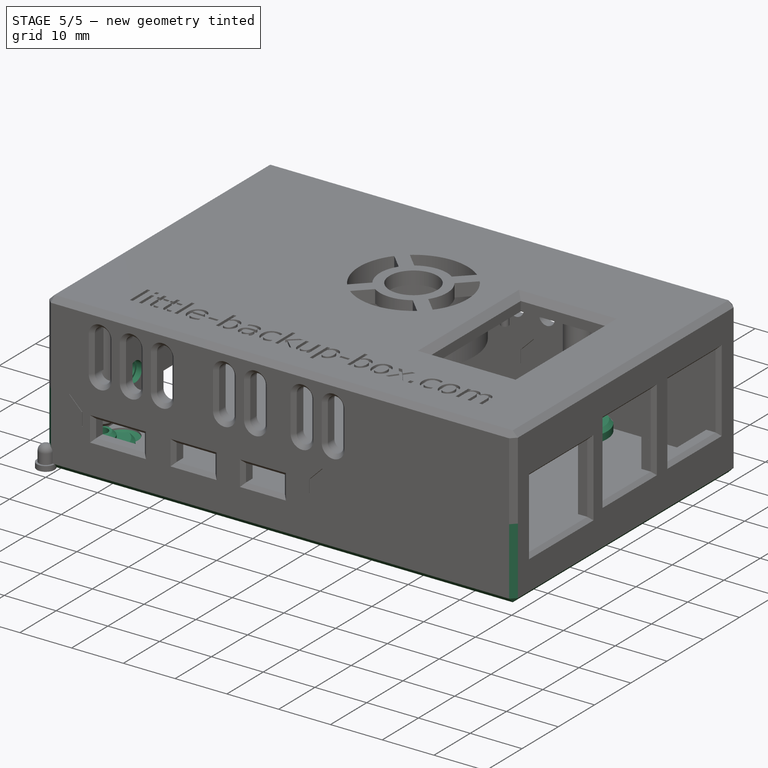
[diagram: stage 5 of 5 — iso view after this stage's code; geometry added in this stage tinted green]
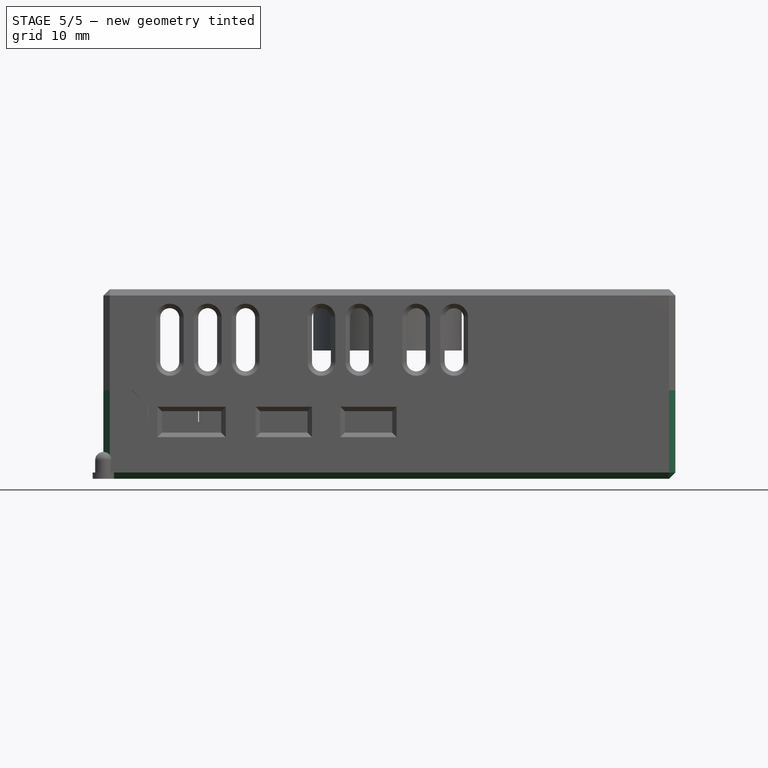
[diagram: stage 5 of 5 — front view after this stage's code; geometry added in this stage tinted green]
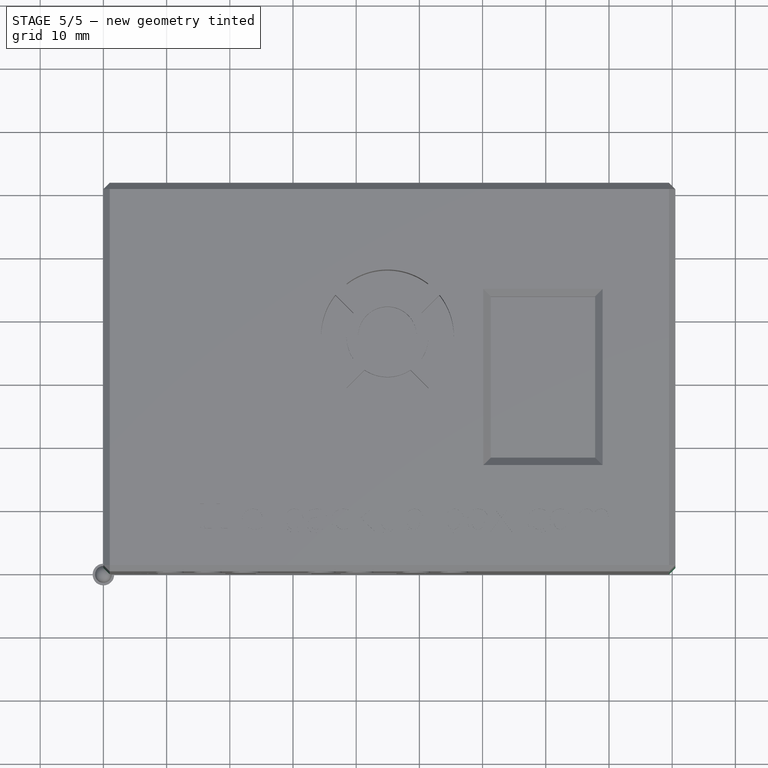
[diagram: stage 5 of 5 — top view after this stage's code; geometry added in this stage tinted green]
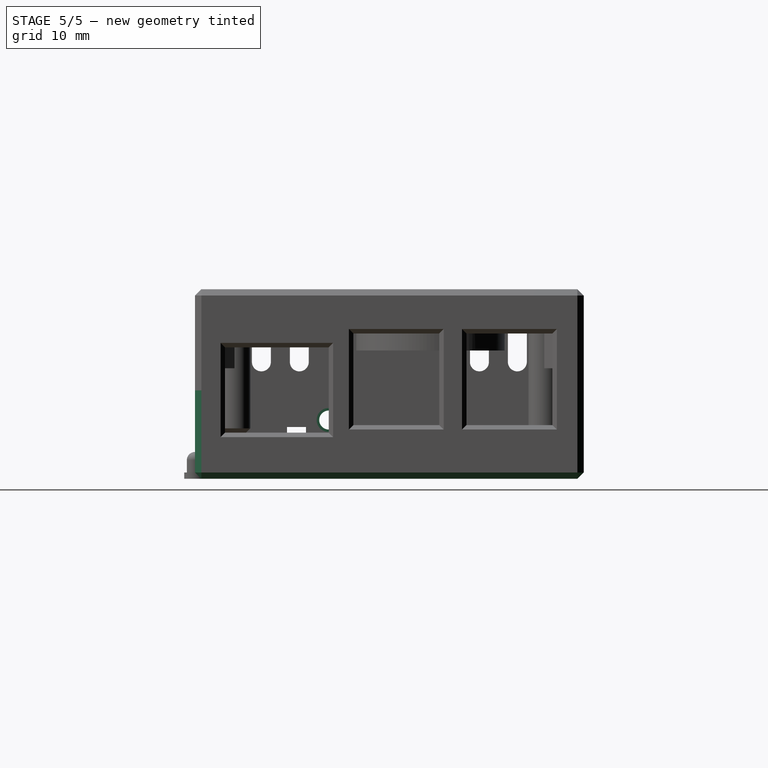
[diagram: stage 5 of 5 — right view after this stage's code; geometry added in this stage tinted green]
FEATURE [Sketcher::SketchObject] Sketch049  label="b_led"
  FullyConstrained = true
  MapMode = 5
  Placement = pos=(0,0,0) rot=(0.57735,0.57735,0.57735;2.0944rad)
  Support = -> [YZ_Plane003]
  expr: Constraints[10] = <<dim>>.leds_height
  expr: Constraints[11] = <<dim>>.leds_z
  expr: Constraints[8] = <<dim>>.leds_y
  expr: Constraints[9] = <<dim>>.leds_width
  sketch-geometry (4):
    g0: LineSegment StartX=17.55 StartY=8.2 StartZ=0 EndX=14.55 EndY=8.2 EndZ=0
    g1: LineSegment StartX=14.55 StartY=8.2 StartZ=0 EndX=14.55 EndY=7.3 EndZ=0
    g2: LineSegment StartX=14.55 StartY=7.3 StartZ=0 EndX=17.55 EndY=7.3 EndZ=0
    g3: LineSegment StartX=17.55 StartY=7.3 StartZ=0 EndX=17.55 EndY=8.2 EndZ=0
  constraints (12):
    c: Coincident(g0,g1)
    c: Coincident(g1,g2)
    c: Coincident(g2,g3)
    c: Coincident(g3,g0)
    c: Horizontal(g0)
    c: Horizontal(g2)
    c: Vertical(g1)
    c: Vertical(g3)
    c: DistanceX(g-1,g1) = 14.55
    c: DistanceX(g2,g2) = 3
    c: DistanceY(g1,g1) = 0.9
    c: DistanceY(g-1,g1) = 7.3
FEATURE [PartDesign::Pocket] Pocket004  label="b_led_pocket"
  BaseFeature = -> Pocket003
  Direction = (-1,2e-16,-3e-16)
  Length = 5
  Length2 = 5
  Profile = -> Sketch049
  ReferenceAxis = -> Sketch049 [N_Axis]
  Reversed = true
  Type = 0
FEATURE [PartDesign::Chamfer] Chamfer005  label="b_led_pocket_chamfer"
  Angle = 45
  Base = -> Pocket004 [Edge106,Edge107,Edge105,Edge108]
  BaseFeature = -> Pocket004
  ChamferType = 0
  FlipDirection = false
  Size = 0.7
  Size2 = 1
  SupportTransform = false
  UseAllEdges = false
  expr: Size = Spreadsheet.box_plugs_champfer
FEATURE [PartDesign::Chamfer] Chamfer006  label="b_body_chamfer"
  Angle = 45
  Base = -> Chamfer005 [Edge23,Edge12,Edge5,Edge9,Edge7,Edge11,Edge22,Edge10,Edge33,Edge6,Edge26,Edge25,Edge24,Edge21,Edge52]
  BaseFeature = -> Chamfer005
  ChamferType = 0
  FlipDirection = false
  Size = 1
  Size2 = 1
  SupportTransform = false
  UseAllEdges = false
  expr: Size = Spreadsheet.box_body_chamfer
FEATURE [Sketcher::SketchObject] Sketch050  label="b_socket1"
  AttachmentOffset = pos=(0,0,2.5) rot=(0,0,1;0rad)
  FullyConstrained = true
  MapMode = 5
  Placement = pos=(0,0,2.5) rot=(0,0,1;0rad)
  Support = -> [XY_Plane003]
  expr: .AttachmentOffset.Base.z = <<dim>>.cl_bottom_ground_inner
  expr: Constraints[10] = <<dim>>.rpi_holes_dist_y
  expr: Constraints[11] = <<dim>>.socket1_diam
  expr: Constraints[7] = <<dim>>.wall_width + <<dim>>.rpi_space + <<dim>>.rpi_dist_hole_border
  expr: Constraints[8] = <<dim>>.wall_width + <<dim>>.rpi_space + <<dim>>.rpi_dist_hole_border
  expr: Constraints[9] = <<dim>>.rpi_holes_dist_x
  sketch-geometry (4):
    g0: Circle CenterX=6.25 CenterY=55.25 CenterZ=0 NormalX=0 NormalY=0 NormalZ=1 AngleXU=0 Radius=5.5
    g1: Circle CenterX=6.25 CenterY=6.25 CenterZ=0 NormalX=0 NormalY=0 NormalZ=1 AngleXU=0 Radius=5.5
    g2: Circle CenterX=64.25 CenterY=55.25 CenterZ=0 NormalX=0 NormalY=0 NormalZ=1 AngleXU=0 Radius=5.5
    g3: Circle CenterX=64.25 CenterY=6.25 CenterZ=0 NormalX=0 NormalY=0 NormalZ=1 AngleXU=0 Radius=5.5
  constraints (12):
    c: Equal(g0,g2)
    c: Equal(g0,g3)
    c: Equal(g0,g1)
    c: Horizontal(g0,g2)
    c: Vertical(g0,g1)
    c: Vertical(g2,g3)
    c: Horizontal(g1,g3)
    c: DistanceX(g-1,g1) = 6.25
    c: DistanceY(g-1,g1) = 6.25
    c: DistanceX(g1,g3) = 58
    c: DistanceY(g1,g0) = 49
    c: Diameter(g0) = 11
FEATURE [PartDesign::Pad] Pad024  label="b_socket1_pad"
  BaseFeature = -> Chamfer006
  Direction = (0,0,1)
  Length = 2
  Length2 = 10
  Profile = -> Sketch050
  ReferenceAxis = -> Sketch050 [N_Axis]
  Type = 0
  expr: Length = <<dim>>.bottom_socket1_height
FEATURE [PartDesign::Chamfer] Chamfer007  label="b_socket1_chamfer"
  Angle = 45
  Base = -> Pad024 [Edge265,Edge282,Edge285,Edge287]
  BaseFeature = -> Pad024
  ChamferType = 0
  FlipDirection = false
  Size = 0.675
  Size2 = 1
  SupportTransform = false
  UseAllEdges = false
  expr: Size = <<dim>>.socket_chamfer
FEATURE [Sketcher::SketchObject] Sketch051  label="b_socket2"
  AttachmentOffset = pos=(0,0,4.5) rot=(0,0,1;0rad)
  FullyConstrained = true
  MapMode = 5
  Placement = pos=(0,0,4.5) rot=(0,0,1;0rad)
  Support = -> [XY_Plane003]
  expr: .AttachmentOffset.Base.z = <<dim>>.cl_bottom_socket1
  expr: Constraints[10] = Sketch050.Constraints[10]
  expr: Constraints[11] = <<dim>>.socket2_diam
  expr: Constraints[7] = Sketch050.Constraints[7]
  expr: Constraints[8] = Sketch050.Constraints[8]
  expr: Constraints[9] = Sketch050.Constraints[9]
  sketch-geometry (4):
    g0: Circle CenterX=6.25 CenterY=55.25 CenterZ=0 NormalX=0 NormalY=0 NormalZ=1 AngleXU=0 Radius=2.5
    g1: Circle CenterX=6.25 CenterY=6.25 CenterZ=0 NormalX=0 NormalY=0 NormalZ=1 AngleXU=0 Radius=2.5
    g2: Circle CenterX=64.25 CenterY=55.25 CenterZ=0 NormalX=0 NormalY=0 NormalZ=1 AngleXU=0 Radius=2.5
    g3: Circle CenterX=64.25 CenterY=6.25 CenterZ=0 NormalX=0 NormalY=0 NormalZ=1 AngleXU=0 Radius=2.5
  constraints (12):
    c: Equal(g0,g2)
    c: Equal(g0,g3)
    c: Equal(g0,g1)
    c: Horizontal(g0,g2)
    c: Vertical(g0,g1)
    c: Vertical(g2,g3)
    c: Horizontal(g1,g3)
    c: DistanceX(g-1,g1) = 6.25
    c: DistanceY(g-1,g1) = 6.25
    c: DistanceX(g1,g3) = 58
    c: DistanceY(g1,g0) = 49
    c: Diameter(g0) = 5
FEATURE [PartDesign::Pad] Pad025  label="b_socket2_pad"
  BaseFeature = -> Chamfer007
  Direction = (0,0,1)
  Length = 1.2
  Length2 = 10
  Profile = -> Sketch051
  ReferenceAxis = -> Sketch051 [N_Axis]
  Type = 0
  expr: Length = <<dim>>.bottom_socket2_height
FEATURE [PartDesign::Chamfer] Chamfer008  label="b_socket2_chamfer"
  Angle = 45
  Base = -> Pad025 [Edge199,Edge105,Edge216,Edge298]
  BaseFeature = -> Pad025
  ChamferType = 0
  FlipDirection = false
  Size = 0.675
  Size2 = 1
  SupportTransform = false
  UseAllEdges = false
  expr: Size = <<dim>>.socket_chamfer
FEATURE [Sketcher::SketchObject] Sketch052  label="b_socket_drills"
  AttachmentOffset = pos=(0,0,5.7) rot=(0,0,1;0rad)
  FullyConstrained = true
  MapMode = 5
  Placement = pos=(0,0,5.7) rot=(0,0,1;0rad)
  Support = -> [XY_Plane003]
  expr: .AttachmentOffset.Base.z = <<dim>>.cl_bottom_socket2
  expr: Constraints[10] = Sketch050.Constraints[10]
  expr: Constraints[11] = <<dim>>.socket2_drill_diam
  expr: Constraints[7] = Sketch050.Constraints[7]
  expr: Constraints[8] = Sketch050.Constraints[8]
  expr: Constraints[9] = Sketch050.Constraints[9]
  sketch-geometry (4):
    g0: Circle CenterX=6.25 CenterY=55.25 CenterZ=0 NormalX=0 NormalY=0 NormalZ=1 AngleXU=0 Radius=1.35
    g1: Circle CenterX=6.25 CenterY=6.25 CenterZ=0 NormalX=0 NormalY=0 NormalZ=1 AngleXU=0 Radius=1.35
    g2: Circle CenterX=64.25 CenterY=55.25 CenterZ=0 NormalX=0 NormalY=0 NormalZ=1 AngleXU=0 Radius=1.35
    g3: Circle CenterX=64.25 CenterY=6.25 CenterZ=0 NormalX=0 NormalY=0 NormalZ=1 AngleXU=0 Radius=1.35
  constraints (12):
    c: Equal(g0,g2)
    c: Equal(g0,g3)
    c: Equal(g0,g1)
    c: Horizontal(g0,g2)
    c: Vertical(g0,g1)
    c: Vertical(g2,g3)
    c: Horizontal(g1,g3)
    c: DistanceX(g-1,g1) = 6.25
    c: DistanceY(g-1,g1) = 6.25
    c: DistanceX(g1,g3) = 58
    c: DistanceY(g1,g0) = 49
    c: Diameter(g0) = 2.7
FEATURE [PartDesign::Pocket] Pocket005  label="b_socket_drills_pocket"
  BaseFeature = -> Chamfer008
  Direction = (0,0,-1)
  Length = 5
  Length2 = 5
  Profile = -> Sketch052
  ReferenceAxis = -> Sketch052 [N_Axis]
  Type = 1
FEATURE [Sketcher::SketchObject] Sketch053  label="b_drills_sunk"
  FullyConstrained = true
  MapMode = 5
  Support = -> [XY_Plane003]
  expr: Constraints[10] = Sketch050.Constraints[10]
  expr: Constraints[11] = Spreadsheet.sunk_case_diam
  expr: Constraints[7] = Sketch050.Constraints[7]
  expr: Constraints[8] = Sketch050.Constraints[8]
  expr: Constraints[9] = Sketch050.Constraints[9]
  sketch-geometry (4):
    g0: Circle CenterX=6.25 CenterY=55.25 CenterZ=0 NormalX=0 NormalY=0 NormalZ=1 AngleXU=0 Radius=2.5
    g1: Circle CenterX=6.25 CenterY=6.25 CenterZ=0 NormalX=0 NormalY=0 NormalZ=1 AngleXU=0 Radius=2.5
    g2: Circle CenterX=64.25 CenterY=55.25 CenterZ=0 NormalX=0 NormalY=0 NormalZ=1 AngleXU=0 Radius=2.5
    g3: Circle CenterX=64.25 CenterY=6.25 CenterZ=0 NormalX=0 NormalY=0 NormalZ=1 AngleXU=0 Radius=2.5
  constraints (12):
    c: Equal(g0,g2)
    c: Equal(g0,g3)
    c: Equal(g0,g1)
    c: Horizontal(g0,g2)
    c: Vertical(g0,g1)
    c: Vertical(g2,g3)
    c: Horizontal(g1,g3)
    c: DistanceX(g-1,g1) = 6.25
    c: DistanceY(g-1,g1) = 6.25
    c: DistanceX(g1,g3) = 58
    c: DistanceY(g1,g0) = 49
    c: Diameter(g0) = 5
FEATURE [PartDesign::Pocket] Pocket006  label="b_socket_drills_sunk_pocket"
  BaseFeature = -> Pocket005
  Direction = (0,0,-1)
  Length = 2
  Length2 = 5
  Profile = -> Sketch053
  ReferenceAxis = -> Sketch053 [N_Axis]
  Reversed = true
  Type = 0
  expr: Length = Spreadsheet.sunk_case_height
FEATURE [Sketcher::SketchObject] Sketch097  label="b_pwr_button_hole"
  AttachmentOffset = pos=(0,0,2.5) rot=(0,0,1;0rad)
  FullyConstrained = true
  MapMode = 5
  Placement = pos=(2.5,-6e-16,6e-16) rot=(0.57735,0.57735,0.57735;2.0944rad)
  Support = -> [YZ_Plane003]
  expr: .AttachmentOffset.Base.z = <<dim>>.wall_width
  expr: Constraints[0] = <<dim>>.pwr_button_z
  expr: Constraints[1] = <<dim>>.pwr_button_y
  expr: Constraints[2] = <<dim>>.pwr_button_rad2
  sketch-geometry (1):
    g0: Circle CenterX=21.15 CenterY=9.3 CenterZ=0 NormalX=0 NormalY=0 NormalZ=1 AngleXU=0 Radius=1.9
  constraints (3):
    c: DistanceY(g-1,g0) = 9.3
    c: DistanceX(g-1,g0) = 21.15
    c: Radius(g0) = 1.9
FEATURE [PartDesign::Pocket] Pocket023  label="b_pwr_button_hole_pocket"
  BaseFeature = -> Pocket006
  Direction = (-1,2e-16,-3e-16)
  Length = 1.1
  Length2 = 5
  Profile = -> Sketch097
  ReferenceAxis = -> Sketch097 [N_Axis]
  Type = 0
  expr: Length = <<dim>>.pwr_button_rad2_deep + <<dim>>.box_spacing
FEATURE [Sketcher::SketchObject] Sketch098  label="b_power_button_hole2"
  FullyConstrained = true
  MapMode = 5
  Placement = pos=(0,0,0) rot=(0.57735,0.57735,0.57735;2.0944rad)
  Support = -> [YZ_Plane003]
  expr: Constraints[0] = <<dim>>.pwr_button_y
  expr: Constraints[1] = <<dim>>.pwr_button_z
  expr: Constraints[2] = <<dim>>.pwr_button_rad
  sketch-geometry (1):
    g0: Circle CenterX=21.15 CenterY=9.3 CenterZ=0 NormalX=0 NormalY=0 NormalZ=1 AngleXU=0 Radius=1.5
  constraints (3):
    c: DistanceX(g-1,g0) = 21.15
    c: DistanceY(g-1,g0) = 9.3
    c: Radius(g0) = 1.5
FEATURE [PartDesign::Pocket] Pocket024  label="b_power_button_hole2_pocket"
  BaseFeature = -> Pocket023
  Direction = (-1,2e-16,-3e-16)
  Length = 5
  Length2 = 5
  Profile = -> Sketch098
  ReferenceAxis = -> Sketch098 [N_Axis]
  Reversed = true
  Type = 0
FEATURE [Sketcher::SketchObject] Sketch101  label="power_button_centralizer"
  FullyConstrained = true
  MapMode = 5
  Support = -> [XY_Plane007]
  expr: Constraints[0] = <<dim>>.pwr_button_centralizer_rad
  sketch-geometry (1):
    g0: Circle CenterX=0 CenterY=0 CenterZ=0 NormalX=0 NormalY=0 NormalZ=1 AngleXU=0 Radius=1.5
  constraints (2):
    c: Radius(g0) = 1.5
    c: Coincident(g0,g-1)
FEATURE [Sketcher::SketchObject] Sketch103  label="b_fan_pin_holes"
  AttachmentOffset = pos=(0,0,5.7) rot=(0,0,1;0rad)
  FullyConstrained = true
  MapMode = 5
  Placement = pos=(0,0,5.7) rot=(0,0,1;0rad)
  Support = -> [XY_Plane003]
  expr: .AttachmentOffset.Base.z = <<dim>>.wall_width + <<dim>>.bottom_socket1_height + <<dim>>.bottom_socket2_height
  expr: Constraints[0] = <<dim>>.rpi_holes_diam
  expr: Constraints[2] = <<dim>>.rpi_holes_dist_y - 2 * <<dim>>.rpi_fan_dist_to_holes_y
  expr: Constraints[3] = <<dim>>.outer_wall_board_dist + <<dim>>.rpi_dist_hole_border + <<dim>>.rpi_fan_dist_to_holes_y
  expr: Constraints[4] = <<dim>>.rpi_holes_dist_x
  expr: Constraints[5] = <<dim>>.outer_wall_board_dist + <<dim>>.rpi_dist_hole_border
  sketch-geometry (2):
    g0: Circle CenterX=6.25 CenterY=12.25 CenterZ=0 NormalX=0 NormalY=0 NormalZ=1 AngleXU=0 Radius=1.5
    g1: Circle CenterX=64.25 CenterY=49.25 CenterZ=0 NormalX=0 NormalY=0 NormalZ=1 AngleXU=0 Radius=1.5
  constraints (6):
    c: Diameter(g0) = 3
    c: Equal(g0,g1)
    c: DistanceY(g0,g1) = 37
    c: DistanceY(g-1,g0) = 12.25
    c: DistanceX(g0,g1) = 58
    c: DistanceX(g-1,g0) = 6.25
FEATURE [PartDesign::Hole] Hole001  label="b_fan_pin_holes_hole"
  BaseFeature = -> Pocket024
  CustomThreadClearance = 0
  Depth = 3.5
  DepthType = 0
  Diameter = 6
  DrillForDepth = false
  DrillPoint = 1
  DrillPointAngle = 118
  HoleCutCountersinkAngle = 90
  HoleCutCustomValues = false
  HoleCutDepth = 0
  HoleCutDiameter = 6.1
  HoleCutType = 0
  ModelThread = false
  Profile = -> Sketch103
  Tapered = false
  TaperedAngle = 90
  ThreadClass = 0
  ThreadDepth = 3.5
  ThreadDepthType = 0
  ThreadDirection = 0
  ThreadFit = 0
  ThreadSize = 0
  ThreadType = 0
  Threaded = false
  UseCustomThreadClearance = false
  expr: Depth = <<dim>>.rpi_fan_pins_height
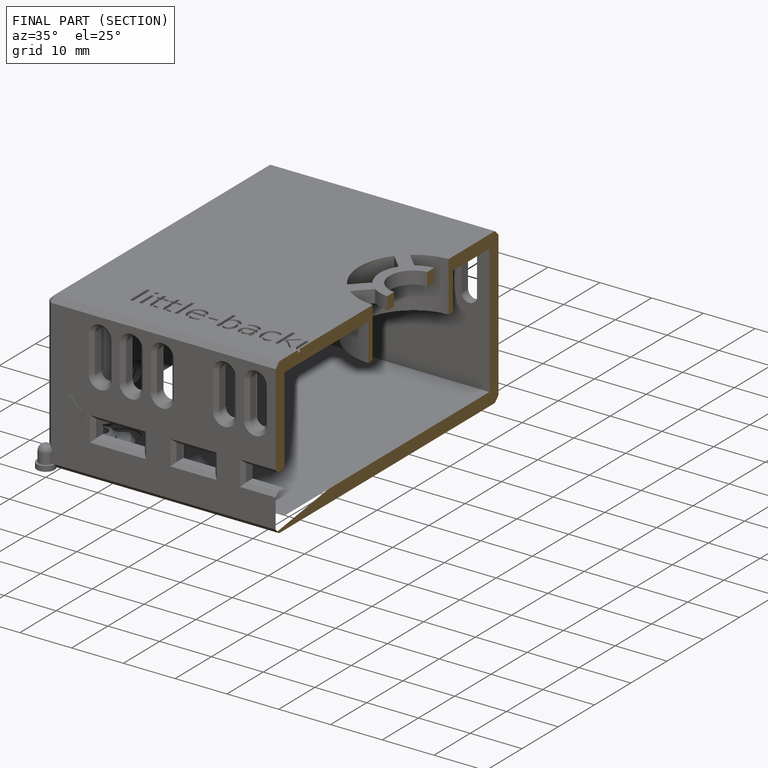
[diagram: finished part — half-section view (interior)]
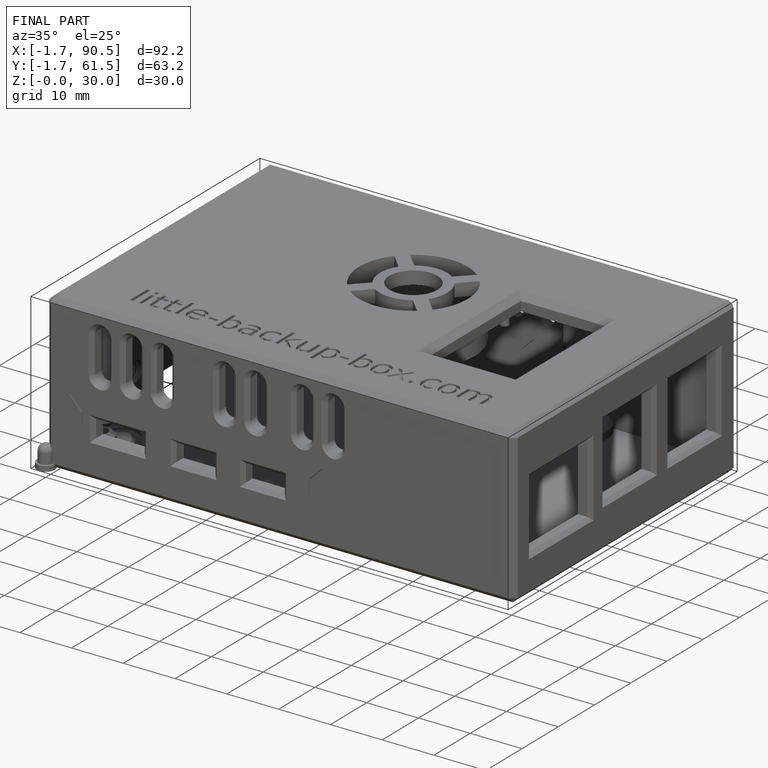
[diagram: finished part — iso view with bounding-box wireframe]
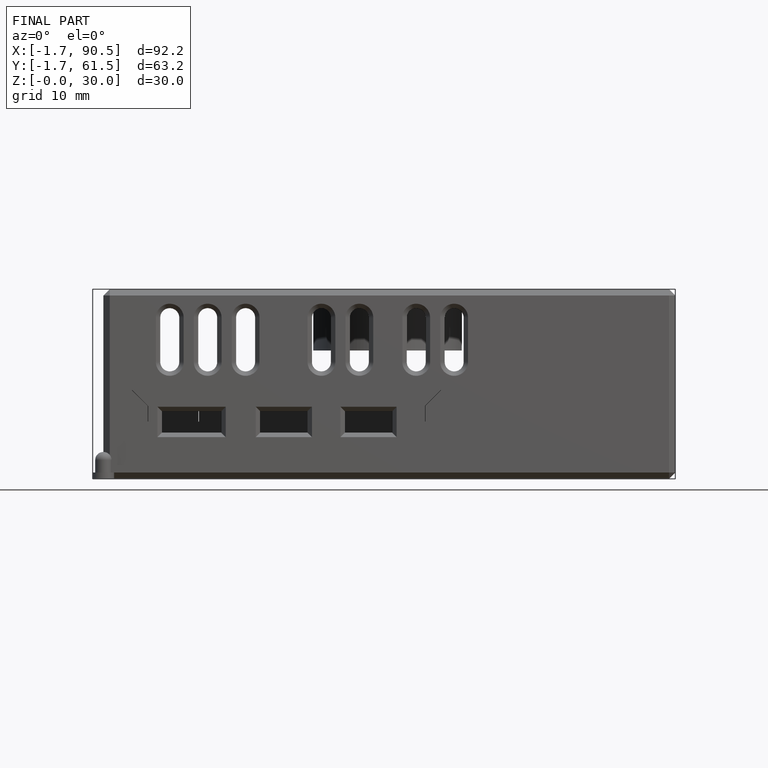
[diagram: finished part — front view with bounding-box wireframe]
